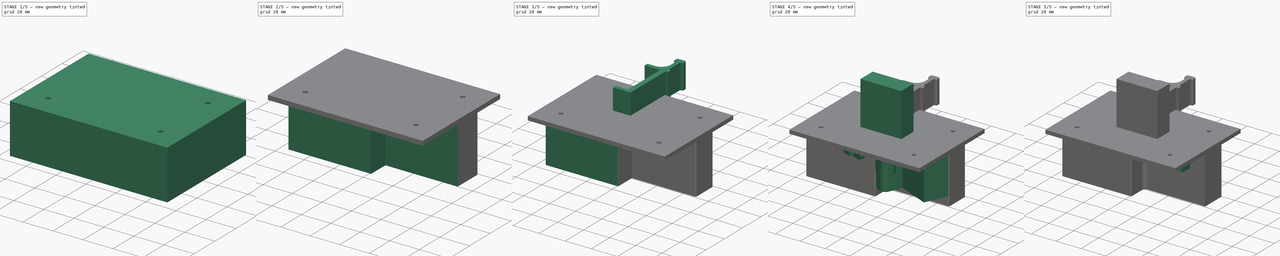
[diagram: build sequence overview — one tinted view per stage of 5, left to right]
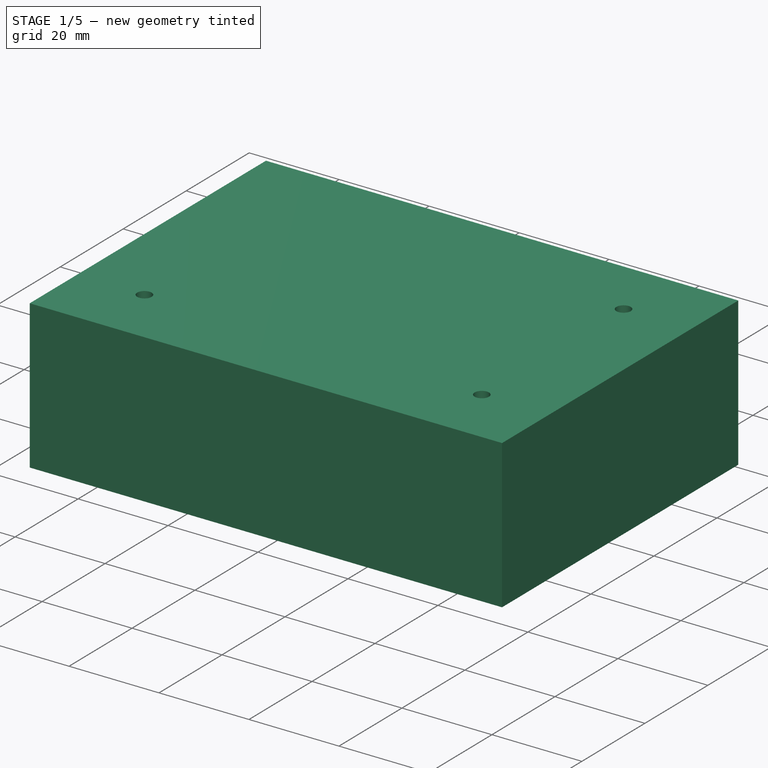
[diagram: stage 1 of 5 — iso view after this stage's code; geometry added in this stage tinted green]
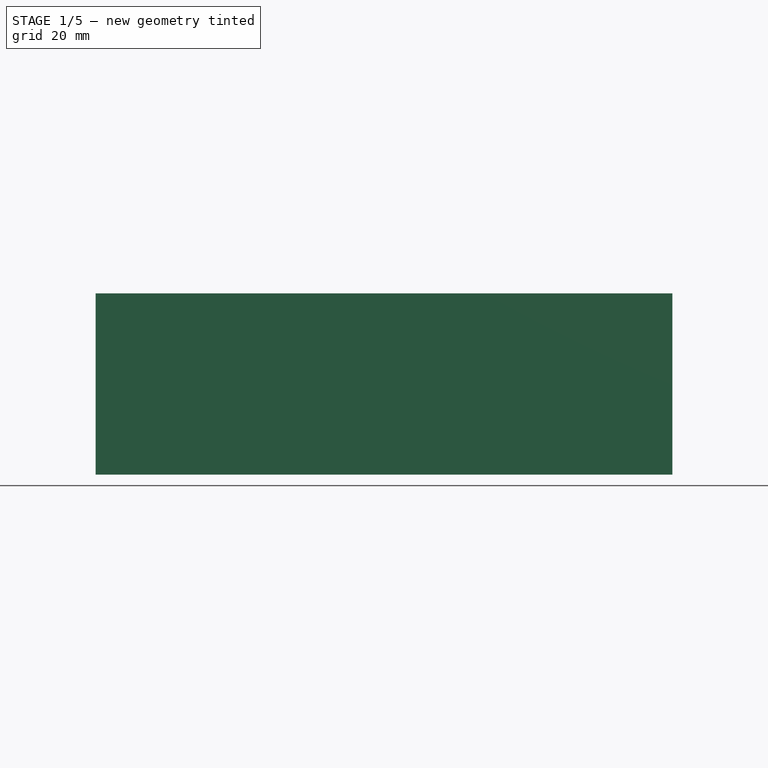
[diagram: stage 1 of 5 — front view after this stage's code; geometry added in this stage tinted green]
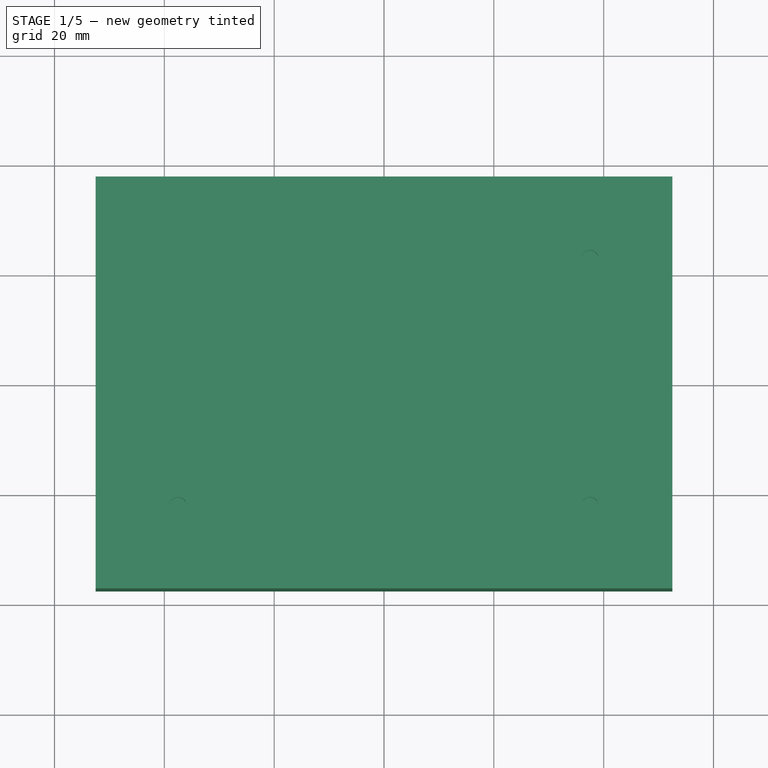
[diagram: stage 1 of 5 — top view after this stage's code; geometry added in this stage tinted green]
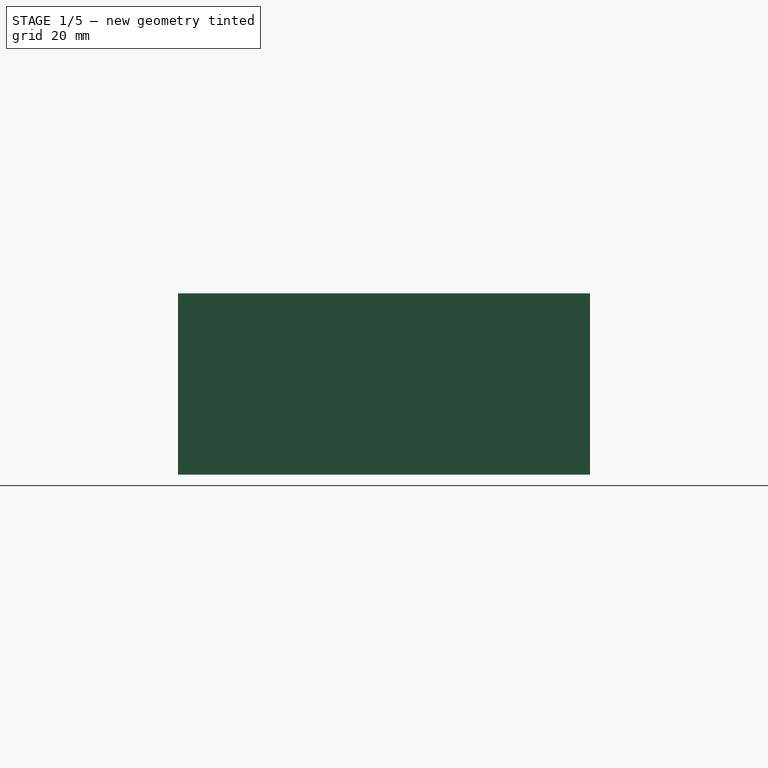
[diagram: stage 1 of 5 — right view after this stage's code; geometry added in this stage tinted green]
FCSTD DOCUMENT  (FreeCAD 1.0R38806 (Git))
Label: StdLinPad
License: All rights reserved
LicenseURL: https://en.wikipedia.org/wiki/All_rights_reserved
objects: PartDesign::Pad×85, Sketcher::SketchObject×61, PartDesign::Pocket×37, PartDesign::Fillet×36, PartDesign::Body×5
note: 601 computed .brp shape members not serialized (recipe doc carries the construction recipe); baked Part::Feature solids carry a one-line shape summary decoded from their .brp

FEATURE [PartDesign::Body] Body015  label="LinPad"
  AllowCompound = false
  Group = -> [Sketch070,Pad055,Sketch071,Pad056,Sketch072,Pad057,Sketch073,Pad058,Sketch074,Pad059,Sketch075,Pad060,Pad061,Sketch076,Pocket053,Pad062,Pad063,Sketch077,Pocket054,Pocket055,Pad064,Sketch078,Pad065,Pad066,Sketch079,Pad067,Pad068,Pad069,Fillet021,Pad070,Fillet022,Fillet023,Fillet024,Fillet025,Fillet026,Fillet027,Fillet028,Fillet029,Fillet030,Fillet031,Fillet032,Sketch080,Pad071,Pocket056,Sketch081,+37 more]
  Origin = -> Origin015
  Tip = -> Pad085
FEATURE [Sketcher::SketchObject] Sketch093
  ArcFitTolerance = 1e-06
  AttachmentSupport = -> [XY_Plane016]
  FullyConstrained = true
  MakeInternals = false
  MapMode = 5
  sketch-geometry (8):
    g0: LineSegment StartX=-52.5 StartY=-37.5 StartZ=0 EndX=52.5 EndY=-37.5 EndZ=0
    g1: LineSegment StartX=52.5 StartY=-37.5 StartZ=0 EndX=52.5 EndY=37.5 EndZ=0
    g2: LineSegment StartX=52.5 StartY=37.5 StartZ=0 EndX=-52.5 EndY=37.5 EndZ=0
    g3: LineSegment StartX=-52.5 StartY=37.5 StartZ=0 EndX=-52.5 EndY=-37.5 EndZ=0
    g4: GeomPoint [constr] X=0 Y=0 Z=0
    g5: Circle CenterX=37.5 CenterY=22.5 CenterZ=0 NormalX=0 NormalY=0 NormalZ=1 AngleXU=0 Radius=1.6
    g6: Circle CenterX=37.5 CenterY=-22.5 CenterZ=0 NormalX=0 NormalY=0 NormalZ=1 AngleXU=0 Radius=1.6
    g7: Circle CenterX=-37.5 CenterY=-22.5 CenterZ=0 NormalX=0 NormalY=0 NormalZ=1 AngleXU=0 Radius=1.6
  constraints (21):
    c: Coincident(g0,g1)
    c: Coincident(g1,g2)
    c: Coincident(g2,g3)
    c: Coincident(g3,g0)
    c: Horizontal(g0)
    c: Horizontal(g2)
    c: Vertical(g1)
    c: Vertical(g3)
    c: Symmetric(g2,g0,g4)
    c: Distance(g1,g3) = 105
    c: Distance(g0,g2) = 75
    c: Coincident(g4,g-1)
    c: Diameter(g5) = 3.2
    c: Diameter(g6) = 3.2
    c: Diameter(g7) = 3.2
    c: Distance(g5,g1) = 15
    c: Distance(g5,g2) = 15
    c: Distance(g6,g1) = 15
    c: Distance(g7,g3) = 15
    c: Distance(g7,g0) = 15
    c: Distance(g6,g0) = 15
FEATURE [PartDesign::Pad] Pad087
  Direction = (0,0,1)
  Length = 3
  Length2 = 10
  Profile = -> Sketch093
  ReferenceAxis = -> Sketch093 [N_Axis]
  Refine = true
  Suppressed = false
  Type = 0
FEATURE [Sketcher::SketchObject] Sketch094
  ArcFitTolerance = 1e-06
  AttachmentSupport = -> [Pad087]
  ExternalGeometry = -> [Pad087]
  FullyConstrained = true
  MakeInternals = false
  MapMode = 5
  Placement = pos=(0,0,0) rot=(1,0,0;3.14159rad)
  sketch-geometry (11):
    g0: LineSegment StartX=-49.5128 StartY=-23.104 StartZ=0 EndX=45.1865 EndY=17.406 EndZ=0
    g1: LineSegment StartX=-45.1865 StartY=-33.2175 StartZ=0 EndX=49.5128 EndY=7.29244 EndZ=0
    g2: LineSegment StartX=-49.5128 StartY=-23.104 StartZ=0 EndX=-45.1865 EndY=-33.2175 EndZ=0
    g3: LineSegment StartX=45.1865 StartY=17.406 StartZ=0 EndX=49.5128 EndY=7.29244 EndZ=0
    g4: LineSegment [constr] StartX=-49.5128 StartY=-23.104 StartZ=0 EndX=49.5128 EndY=7.29244 EndZ=0
    g5: LineSegment [constr] StartX=-45.1865 StartY=-33.2175 StartZ=0 EndX=45.1865 EndY=17.406 EndZ=0
    g6: GeomPoint [constr] X=0 Y=-7.90576 Z=0
    g7: LineSegment StartX=-52.5 StartY=-20.0312 StartZ=0 EndX=45.0273 EndY=21.6885 EndZ=0
    g8: LineSegment StartX=45.0273 StartY=21.6885 StartZ=0 EndX=52.5 EndY=4.21968 EndZ=0
    g9: LineSegment StartX=52.5 StartY=4.21968 StartZ=0 EndX=-45.0273 EndY=-37.5 EndZ=0
    g10: LineSegment StartX=-45.0273 StartY=-37.5 StartZ=0 EndX=-52.5 EndY=-20.0312 EndZ=0
  constraints (30):
    c: Parallel(g0,g1)
    c: Equal(g0,g1)
    c: Distance(g1,g0) = 11
    c: Coincident(g2,g0)
    c: Coincident(g2,g1)
    c: Coincident(g3,g0)
    c: Coincident(g3,g1)
    c: Angle(g1,g2) = 1.5708
    c: Distance(g0,g0) = 103
    c: Coincident(g4,g0)
    c: Coincident(g4,g1)
    c: Coincident(g5,g1)
    c: Coincident(g5,g0)
    c: PointOnObject(g6,g4)
    c: PointOnObject(g6,g5)
    c: PointOnObject(g6,g-2)
    c: Coincident(g8,g7)
    c: Coincident(g9,g8)
    c: Coincident(g10,g9)
    c: Coincident(g10,g7)
    c: Parallel(g9,g7)
    c: Parallel(g10,g8)
    c: Angle(g-1,g0) = 0.404218
    c: Parallel(g7,g0)
    c: Parallel(g8,g3)
    c: Distance(g7,g0) = 4
    c: Distance(g8,g8) = 19
    c: PointOnObject(g7,g-3)
    c: PointOnObject(g8,g-4)
    c: PointOnObject(g9,g-5)
FEATURE [PartDesign::Pad] Pad088
  BaseFeature = -> Pad087
  Direction = (0,0,-1)
  Length = 5
  Length2 = 10
  Profile = -> Sketch094
  ReferenceAxis = -> Sketch094 [N_Axis]
  Refine = true
  Suppressed = false
  Type = 0
FEATURE [Sketcher::SketchObject] Sketch095
  ArcFitTolerance = 1e-06
  AttachmentSupport = -> [Pad088]
  ExternalGeometry = -> [Pad088]
  FullyConstrained = false
  MakeInternals = false
  MapMode = 5
  Placement = pos=(0,0,0) rot=(1,0,0;3.14159rad)
  sketch-geometry (12):
    g0: LineSegment StartX=-31.9029 StartY=-11.2203 StartZ=0 EndX=-36.2292 EndY=-1.1068 EndZ=0
    g1: LineSegment StartX=-36.2292 StartY=-1.1068 StartZ=0 EndX=12.4995 EndY=19.7381 EndZ=0
    g2: LineSegment StartX=-31.9029 StartY=-11.2203 StartZ=0 EndX=16.8258 EndY=9.6246 EndZ=0
    g3: LineSegment StartX=16.8258 StartY=9.6246 StartZ=0 EndX=12.4995 EndY=19.7381 EndZ=0
    g4: LineSegment StartX=20.4992 StartY=11.196 StartZ=0 EndX=16.1729 EndY=21.3095 EndZ=0
    g5: ArcOfCircle CenterX=12.4995 CenterY=19.7381 CenterZ=0 NormalX=0 NormalY=0 NormalZ=-1 AngleXU=-0.404218 Radius=3.99533 StartAngle=1.5708 EndAngle=3.14159
    g6: LineSegment StartX=-37.8006 StartY=2.56655 StartZ=0 EndX=10.9281 EndY=23.4115 EndZ=0
    g7: ArcOfCircle CenterX=-36.2292 CenterY=-1.1068 CenterZ=0 NormalX=0 NormalY=0 NormalZ=-1 AngleXU=-1.97501 Radius=3.99533 StartAngle=1.5708 EndAngle=3.14159
    g8: LineSegment StartX=-35.5763 StartY=-12.7917 StartZ=0 EndX=-39.9026 EndY=-2.67816 EndZ=0
    g9: ArcOfCircle CenterX=-31.9029 CenterY=-11.2203 CenterZ=0 NormalX=0 NormalY=0 NormalZ=-1 AngleXU=2.73737 Radius=3.99533 StartAngle=1.5708 EndAngle=3.14159
    g10: LineSegment StartX=-30.3316 StartY=-14.8937 StartZ=0 EndX=18.3972 EndY=5.95125 EndZ=0
    g11: ArcOfCircle CenterX=16.8258 CenterY=9.6246 CenterZ=0 NormalX=0 NormalY=0 NormalZ=-1 AngleXU=1.16658 Radius=3.99533 StartAngle=1.5708 EndAngle=3.14159
  constraints (19):
    c: PointOnObject(g0,g-3)
    c: Distance(g0) = 11
    c: Distance(g1) = 53
    c: Coincident(g1,g0)
    c: Distance(g2) = 53
    c: Coincident(g2,g0)
    c: PointOnObject(g2,g-3)
    c: Angle(g2,g0) = 1.5708
    c: Coincident(g3,g2)
    c: Coincident(g3,g1)
    c: Parallel(g2,g1)
    c: Tangent(g4,g5) = -1.5708
    c: Tangent(g4,g11) = -1.5708
    c: Tangent(g5,g6) = 1.5708
    c: Tangent(g6,g7) = 1.5708
    c: Tangent(g7,g8) = 1.5708
    c: Tangent(g8,g9) = 1.5708
    c: Tangent(g9,g10) = -1.5708
    c: Tangent(g10,g11) = -1.5708
FEATURE [PartDesign::Pad] Pad089
  BaseFeature = -> Pad088
  Direction = (0,0,-1)
  Length = 4
  Length2 = 10
  Profile = -> Sketch095
  ReferenceAxis = -> Sketch095 [N_Axis]
  Refine = true
  Suppressed = false
  Type = 0
FEATURE [Sketcher::SketchObject] Sketch096
  ArcFitTolerance = 1e-06
  AttachmentSupport = -> [Pad089]
  ExternalGeometry = -> [Pad089]
  FullyConstrained = false
  MakeInternals = false
  MapMode = 5
  Placement = pos=(0,0,0) rot=(1,0,0;3.14159rad)
  sketch-geometry (10):
    g0: LineSegment StartX=-7.92738 StartY=-37.5 StartZ=0 EndX=33.0726 EndY=-37.5 EndZ=0
    g1: LineSegment StartX=33.0726 StartY=-37.5 StartZ=0 EndX=33.0726 EndY=-18.5 EndZ=0
    g2: LineSegment StartX=33.0726 StartY=-18.5 StartZ=0 EndX=-7.92738 EndY=-18.5 EndZ=0
    g3: LineSegment StartX=-7.92738 StartY=-18.5 StartZ=0 EndX=-7.92738 EndY=-37.5 EndZ=0
    g4: GeomPoint [constr] X=12.5726 Y=-28 Z=0
    g5: LineSegment StartX=-3.92738 StartY=-33.5 StartZ=0 EndX=29.0726 EndY=-33.5 EndZ=0
    g6: LineSegment StartX=29.0726 StartY=-33.5 StartZ=0 EndX=29.0726 EndY=-22.5 EndZ=0
    g7: LineSegment StartX=29.0726 StartY=-22.5 StartZ=0 EndX=-3.92738 EndY=-22.5 EndZ=0
    g8: LineSegment StartX=-3.92738 StartY=-22.5 StartZ=0 EndX=-3.92738 EndY=-33.5 EndZ=0
    g9: GeomPoint [constr] X=12.5726 Y=-28 Z=0
  constraints (24):
    c: Coincident(g0,g1)
    c: Coincident(g1,g2)
    c: Coincident(g2,g3)
    c: Coincident(g3,g0)
    c: Horizontal(g0)
    c: Horizontal(g2)
    c: Vertical(g1)
    c: Vertical(g3)
    c: Symmetric(g2,g0,g4)
    c: Distance(g1,g3) = 41
    c: Distance(g0,g2) = 19
    c: DistanceY(g4,g-1) = 28
    c: Coincident(g5,g6)
    c: Coincident(g6,g7)
    c: Coincident(g7,g8)
    c: Coincident(g8,g5)
    c: Horizontal(g5)
    c: Horizontal(g7)
    c: Vertical(g6)
    c: Vertical(g8)
    c: Symmetric(g7,g5,g9)
    c: Distance(g6,g8) = 33
    c: Distance(g5,g7) = 11
    c: Coincident(g9,g4)
FEATURE [PartDesign::Pad] Pad090
  BaseFeature = -> Pad089
  Direction = (0,0,-1)
  Length = 10
  Length2 = 10
  Profile = -> Sketch096
  ReferenceAxis = -> Sketch096 [N_Axis]
  Refine = true
  Suppressed = false
  Type = 0
FEATURE [Sketcher::SketchObject] Sketch097
  ArcFitTolerance = 1e-06
  AttachmentSupport = -> [Pad090]
  ExternalGeometry = -> [Pad090]
  FullyConstrained = false
  MakeInternals = false
  MapMode = 5
  Placement = pos=(0,0,0) rot=(1,0,0;3.14159rad)
  sketch-geometry (12):
    g0: LineSegment StartX=-42.971 StartY=0.354781 StartZ=0 EndX=-12.6305 EndY=13.3337 EndZ=0
    g1: LineSegment StartX=-42.971 StartY=0.354781 StartZ=0 EndX=-44.9375 EndY=4.95183 EndZ=0
    g2: LineSegment StartX=-44.9375 StartY=4.95183 StartZ=0 EndX=-14.597 EndY=17.9307 EndZ=0
    g3: LineSegment StartX=-14.597 StartY=17.9307 StartZ=0 EndX=-12.6305 EndY=13.3337 EndZ=0
    g4: LineSegment StartX=-10.936 StartY=19.5428 StartZ=0 EndX=-8.9362 EndY=14.868 EndZ=0
    g5: ArcOfCircle CenterX=-12.5749 CenterY=13.3114 CenterZ=0 NormalX=0 NormalY=0 NormalZ=1 AngleXU=-2.73737 Radius=3.95769 StartAngle=1.5708 EndAngle=3.14159
    g6: LineSegment StartX=-41.4367 StartY=-3.3395 StartZ=0 EndX=-11.0184 EndY=9.67269 EndZ=0
    g7: ArcOfCircle CenterX=-42.9933 CenterY=0.299239 CenterZ=0 NormalX=0 NormalY=0 NormalZ=1 AngleXU=1.97501 Radius=3.95769 StartAngle=1.5708 EndAngle=3.14159
    g8: LineSegment StartX=-46.632 StartY=-1.25732 StartZ=0 EndX=-48.6318 EndY=3.41753 EndZ=0
    g9: ArcOfCircle CenterX=-44.9931 CenterY=4.97409 CenterZ=0 NormalX=0 NormalY=0 NormalZ=1 AngleXU=0.404218 Radius=3.95769 StartAngle=1.5708 EndAngle=3.14159
    g10: LineSegment StartX=-46.5496 StartY=8.61283 StartZ=0 EndX=-16.1313 EndY=21.625 EndZ=0
    g11: ArcOfCircle CenterX=-14.5747 CenterY=17.9863 CenterZ=0 NormalX=0 NormalY=0 NormalZ=1 AngleXU=-1.16658 Radius=3.95769 StartAngle=1.5708 EndAngle=3.14159
  constraints (30):
    c: PointOnObject(g0,g-3)
    c: PointOnObject(g0,g-3)
    c: Coincident(g1,g0)
    c: Coincident(g2,g1)
    c: Coincident(g3,g2)
    c: Coincident(g3,g0)
    c: Angle(g0,g1) = 1.5708
    c: Parallel(g0,g2)
    c: Parallel(g1,g3)
    c: Distance(g2,g2) = 33
    c: Distance(g1,g1) = 5
    c: Tangent(g4,g5) = 1.5708
    c: Tangent(g4,g11) = 1.5708
    c: Tangent(g5,g6) = -1.5708
    c: Tangent(g6,g7) = -1.5708
    c: Tangent(g7,g8) = 1.5708
    c: Tangent(g8,g9) = 1.5708
    c: Tangent(g9,g10) = 1.5708
    c: Tangent(g10,g11) = 1.5708
    c: Parallel(g2,g10)
    c: Parallel(g0,g6)
    c: Parallel(g8,g1)
    c: Parallel(g3,g4)
    c: Distance(g1,g8) = 4
    c: Distance(g6,g0) = 4
    c: Distance(g10,g2) = 4
    c: Distance(g4,g3) = 4
    c: Equal(g9,g7)
    c: Equal(g7,g11)
    c: Equal(g9,g5)
FEATURE [PartDesign::Pad] Pad091
  BaseFeature = -> Pad090
  Direction = (0,0,-1)
  Length = 2
  Length2 = 10
  Profile = -> Sketch097
  ReferenceAxis = -> Sketch097 [N_Axis]
  Refine = true
  Suppressed = false
  Type = 0
FEATURE [Sketcher::SketchObject] Sketch098
  ArcFitTolerance = 1e-06
  AttachmentSupport = -> [Pad091]
  ExternalGeometry = -> [Pad091]
  FullyConstrained = false
  MakeInternals = false
  MapMode = 5
  Placement = pos=(0,0,0) rot=(1,0,0;3.14159rad)
  sketch-geometry (12):
    g0: LineSegment StartX=-8.95284 StartY=14.9069 StartZ=0 EndX=21.3877 EndY=27.8858 EndZ=0
    g1: LineSegment StartX=21.3877 StartY=27.8858 StartZ=0 EndX=20.2078 EndY=30.644 EndZ=0
    g2: LineSegment StartX=20.2078 StartY=30.644 StartZ=0 EndX=-10.1327 EndY=17.6651 EndZ=0
    g3: LineSegment StartX=-10.1327 StartY=17.6651 StartZ=0 EndX=-8.95284 EndY=14.9069 EndZ=0
    g4: LineSegment StartX=-13.8104 StartY=16.0919 StartZ=0 EndX=-12.6305 EndY=13.3337 EndZ=0
    g5: ArcOfCircle CenterX=-8.95284 CenterY=14.9069 CenterZ=0 NormalX=0 NormalY=0 NormalZ=-1 AngleXU=2.73737 Radius=4 StartAngle=1.5708 EndAngle=3.14159
    g6: LineSegment StartX=-7.37964 StartY=11.2292 StartZ=0 EndX=22.9609 EndY=24.2081 EndZ=0
    g7: ArcOfCircle CenterX=21.3877 CenterY=27.8858 CenterZ=0 NormalX=0 NormalY=0 NormalZ=-1 AngleXU=1.16658 Radius=4 StartAngle=1.5708 EndAngle=3.14159
    g8: LineSegment StartX=25.0653 StartY=29.459 StartZ=0 EndX=23.8854 EndY=32.2172 EndZ=0
    g9: ArcOfCircle CenterX=20.2078 CenterY=30.644 CenterZ=0 NormalX=0 NormalY=0 NormalZ=-1 AngleXU=-0.404218 Radius=4 StartAngle=1.5708 EndAngle=3.14159
    g10: LineSegment StartX=18.6346 StartY=34.3217 StartZ=0 EndX=-11.7059 EndY=21.3428 EndZ=0
    g11: ArcOfCircle CenterX=-10.1327 CenterY=17.6651 CenterZ=0 NormalX=0 NormalY=0 NormalZ=-1 AngleXU=-1.97501 Radius=4 StartAngle=1.5708 EndAngle=3.14159
  constraints (17):
    c: Coincident(g-3,g0)
    c: PointOnObject(g0,g-3)
    c: Perpendicular(g0,g1) = 1.5708
    c: Perpendicular(g1,g2) = 1.5708
    c: PointOnObject(g2,g-4)
    c: Coincident(g3,g2)
    c: Coincident(g3,g0)
    c: Distance(g0,g0) = 33
    c: Distance(g1,g1) = 3
    c: Tangent(g4,g5) = -1.5708
    c: Tangent(g4,g11) = -1.5708
    c: Tangent(g5,g6) = -1.5708
    c: Tangent(g6,g7) = -1.5708
    c: Tangent(g7,g8) = -1.5708
    c: Tangent(g8,g9) = -1.5708
    c: Tangent(g9,g10) = -1.5708
    c: Tangent(g10,g11) = -1.5708
FEATURE [PartDesign::Pad] Pad092
  BaseFeature = -> Pad091
  Direction = (0,0,-1)
  Length = 1
  Length2 = 10
  Profile = -> Sketch098
  ReferenceAxis = -> Sketch098 [N_Axis]
  Refine = true
  Suppressed = false
  Type = 0
FEATURE [PartDesign::Pad] Pad093
  BaseFeature = -> Pad092
  Direction = (0,0,-1)
  Length = 3
  Length2 = 10
  Profile = -> Pad092 [Face29]
  Refine = true
  Suppressed = false
  Type = 0
FEATURE [Sketcher::SketchObject] Sketch099
  ArcFitTolerance = 1e-06
  AttachmentSupport = -> [Pad093]
  ExternalGeometry = -> [Pad093]
  FullyConstrained = false
  MakeInternals = false
  MapMode = 5
  Placement = pos=(0,0,-13) rot=(1,0,0;3.14159rad)
  sketch-geometry (8):
    g0: LineSegment [constr] StartX=-7.92738 StartY=-18.5 StartZ=0 EndX=33.0726 EndY=-37.5 EndZ=0
    g1: LineSegment [constr] StartX=-7.92738 StartY=-37.5 StartZ=0 EndX=33.0726 EndY=-18.5 EndZ=0
    g2: GeomPoint [constr] X=12.5726 Y=-28 Z=0
    g3: LineSegment StartX=1.07262 StartY=-18.2597 StartZ=0 EndX=1.07262 EndY=-37.7403 EndZ=0
    g4: LineSegment StartX=1.07262 StartY=-37.7403 StartZ=0 EndX=24.0726 EndY=-37.7403 EndZ=0
    g5: LineSegment StartX=24.0726 StartY=-37.7403 StartZ=0 EndX=24.0726 EndY=-18.2597 EndZ=0
    g6: LineSegment StartX=24.0726 StartY=-18.2597 StartZ=0 EndX=1.07262 EndY=-18.2597 EndZ=0
    g7: GeomPoint [constr] X=12.5726 Y=-28 Z=0
  constraints (17):
    c: Coincident(g0,g-3)
    c: Coincident(g0,g-4)
    c: Coincident(g1,g-3)
    c: Coincident(g1,g-4)
    c: PointOnObject(g2,g0)
    c: PointOnObject(g2,g1)
    c: Coincident(g3,g4)
    c: Coincident(g4,g5)
    c: Coincident(g5,g6)
    c: Coincident(g6,g3)
    c: Vertical(g3)
    c: Vertical(g5)
    c: Horizontal(g4)
    c: Horizontal(g6)
    c: Symmetric(g5,g3,g7)
    c: Distance(g3,g5) = 23
    c: Coincident(g7,g2)
FEATURE [PartDesign::Pocket] Pocket068
  BaseFeature = -> Pad093
  Direction = (0,0,1)
  Length = 12
  Length2 = 5
  Profile = -> Sketch099
  ReferenceAxis = -> Sketch099 [N_Axis]
  Refine = true
  Suppressed = false
  Type = 0
FEATURE [PartDesign::Pad] Pad094
  BaseFeature = -> Pocket068
  Direction = (0,0,-1)
  Length = 10
  Length2 = 10
  Profile = -> Pocket068 [Face58]
  Refine = true
  Suppressed = false
  Type = 3
  UpToFace = -> Pocket068 [Face69]
FEATURE [PartDesign::Pad] Pad095
  BaseFeature = -> Pad094
  Direction = (0,0,-1)
  Length = 10
  Length2 = 10
  Profile = -> Pad094 [Face64]
  Refine = true
  Suppressed = false
  Type = 0
FEATURE [Sketcher::SketchObject] Sketch100
  ArcFitTolerance = 1e-06
  AttachmentSupport = -> [Pad095]
  ExternalGeometry = -> [Pad095]
  FullyConstrained = false
  MakeInternals = false
  MapMode = 5
  Placement = pos=(0,0,-12) rot=(1,0,0;3.14159rad)
  sketch-geometry (8):
    g0: LineSegment StartX=-36.7433 StartY=12.8077 StartZ=0 EndX=-22.9521 EndY=18.7072 EndZ=0
    g1: LineSegment StartX=-22.9521 StartY=18.7072 StartZ=0 EndX=-16.1016 EndY=2.69286 EndZ=0
    g2: LineSegment StartX=-16.1016 StartY=2.69286 StartZ=0 EndX=-29.8927 EndY=-3.20664 EndZ=0
    g3: LineSegment StartX=-29.8927 StartY=-3.20664 StartZ=0 EndX=-36.7433 EndY=12.8077 EndZ=0
    g4: LineSegment StartX=-7.5686 StartY=23.1126 StartZ=0 EndX=3.46432 EndY=27.8322 EndZ=0
    g5: LineSegment StartX=3.46432 StartY=27.8322 StartZ=0 EndX=9.0968 EndY=14.6653 EndZ=0
    g6: LineSegment StartX=9.0968 StartY=14.6653 StartZ=0 EndX=-1.93612 EndY=9.94566 EndZ=0
    g7: LineSegment StartX=-1.93612 StartY=9.94566 StartZ=0 EndX=-7.5686 EndY=23.1126 EndZ=0
  constraints (21):
    c: PointOnObject(g0,g-4)
    c: PointOnObject(g0,g-4)
    c: Coincident(g1,g0)
    c: Coincident(g2,g1)
    c: Coincident(g3,g2)
    c: Coincident(g3,g0)
    c: Parallel(g0,g2)
    c: Parallel(g3,g1)
    c: Angle(g3,g0) = 1.5708
    c: Distance(g0,g0) = 15
    c: Distance(g3,g-5) = 5
    c: PointOnObject(g4,g-3)
    c: Symmetric(g-3,g-3,g4)
    c: Coincident(g5,g4)
    c: Coincident(g6,g5)
    c: Coincident(g7,g6)
    c: Coincident(g7,g4)
    c: Angle(g4,g5) = 1.5708
    c: Parallel(g7,g5)
    c: Parallel(g4,g6)
    c: Distance(g4,g4) = 12
FEATURE [PartDesign::Pocket] Pocket069
  BaseFeature = -> Pad095
  Direction = (0,0,1)
  Length = 10
  Length2 = 5
  Profile = -> Sketch100
  ReferenceAxis = -> Sketch100 [N_Axis]
  Refine = true
  Suppressed = false
  Type = 0
FEATURE [PartDesign::Pocket] Pocket070
  BaseFeature = -> Pocket069
  Direction = (0.91941,-0.3933,0)
  Length = 10
  Length2 = 5
  Profile = -> Pocket069 [Face40]
  Refine = true
  Suppressed = false
  Type = 0
FEATURE [PartDesign::Pad] Pad096
  BaseFeature = -> Pocket070
  Direction = (0.91941,-0.3933,0)
  Length = 3
  Length2 = 10
  Profile = -> Pocket070 [Face23]
  Refine = true
  Suppressed = false
  Type = 0
FEATURE [Sketcher::SketchObject] Sketch101
  ArcFitTolerance = 1e-06
  AttachmentSupport = -> [Pad096]
  ExternalGeometry = -> [Pad096]
  FullyConstrained = false
  MakeInternals = false
  MapMode = 5
  Placement = pos=(0,0,-5) rot=(1,0,0;3.14159rad)
  sketch-geometry (16):
    g0: LineSegment StartX=-52.5 StartY=-20.0312 StartZ=0 EndX=-45.0273 EndY=-37.5 EndZ=0
    g1: LineSegment StartX=-45.0273 StartY=-37.5 StartZ=0 EndX=-17.445 EndY=-25.701 EndZ=0
    g2: LineSegment StartX=-17.445 StartY=-25.701 StartZ=0 EndX=-19.0182 EndY=-22.0234 EndZ=0
    g3: LineSegment StartX=-19.0182 StartY=-22.0234 StartZ=0 EndX=-45.1865 EndY=-33.2175 EndZ=0
    g4: LineSegment StartX=-45.1865 StartY=-33.2175 StartZ=0 EndX=-49.5128 EndY=-23.104 EndZ=0
    g5: LineSegment StartX=-49.5128 StartY=-23.104 StartZ=0 EndX=-23.3445 EndY=-11.9098 EndZ=0
    g6: LineSegment StartX=-23.3445 StartY=-11.9098 StartZ=0 EndX=-24.9177 EndY=-8.2322 EndZ=0
    g7: LineSegment StartX=-24.9177 StartY=-8.2322 StartZ=0 EndX=-52.5 EndY=-20.0312 EndZ=0
    g8: LineSegment StartX=45.0273 StartY=21.6885 StartZ=0 EndX=52.5 EndY=4.21968 EndZ=0
    g9: LineSegment StartX=15.7236 StartY=-11.5123 StartZ=0 EndX=14.1504 EndY=-7.83468 EndZ=0
    g10: LineSegment StartX=49.5128 StartY=7.29244 StartZ=0 EndX=45.1865 EndY=17.406 EndZ=0
    g11: LineSegment StartX=45.1865 StartY=17.406 StartZ=0 EndX=9.82409 EndY=2.27883 EndZ=0
    g12: LineSegment StartX=9.82409 StartY=2.27883 StartZ=0 EndX=8.25089 EndY=5.95647 EndZ=0
    g13: LineSegment StartX=8.25089 StartY=5.95647 StartZ=0 EndX=45.0273 EndY=21.6885 EndZ=0
    g14: LineSegment StartX=14.1504 StartY=-7.83468 StartZ=0 EndX=49.5128 EndY=7.29244 EndZ=0
    g15: LineSegment StartX=52.5 StartY=4.21968 StartZ=0 EndX=15.7236 EndY=-11.5123 EndZ=0
  constraints (40):
    c: Coincident(g0,g-3)
    c: Coincident(g0,g-8)
    c: Coincident(g1,g0)
    c: PointOnObject(g1,g-8)
    c: Coincident(g2,g1)
    c: PointOnObject(g2,g-6)
    c: Coincident(g3,g2)
    c: Coincident(g3,g-6)
    c: Coincident(g4,g3)
    c: Coincident(g4,g-4)
    c: Coincident(g5,g4)
    c: PointOnObject(g5,g-4)
    c: Coincident(g6,g5)
    c: PointOnObject(g6,g-3)
    c: Coincident(g7,g6)
    c: Coincident(g7,g0)
    c: Parallel(g0,g6)
    c: Parallel(g0,g2)
    c: Distance(g7,g7) = 30
    c: Distance(g1,g1) = 30
    c: Coincident(g8,g-7)
    c: Coincident(g8,g-7)
    c: PointOnObject(g9,g-6)
    c: Coincident(g10,g-4)
    c: Coincident(g11,g10)
    c: PointOnObject(g11,g-4)
    c: Coincident(g12,g11)
    c: PointOnObject(g12,g-3)
    c: Coincident(g13,g12)
    c: Coincident(g13,g8)
    c: Parallel(g12,g8)
    c: Coincident(g14,g9)
    c: Coincident(g14,g10)
    c: Distance(g13,g13) = 40
    c: Parallel(g9,g8)
    c: PointOnObject(g9,g-5)
    c: Coincident(g15,g8)
    c: Coincident(g15,g9)
    c: Distance(g15,g15) = 40
    c: Parallel(g10,g8)
FEATURE [PartDesign::Pad] Pad097
  BaseFeature = -> Pad096
  Direction = (0,0,-1)
  Length = 25
  Length2 = 10
  Profile = -> Sketch101
  ReferenceAxis = -> Sketch101 [N_Axis]
  Refine = true
  Suppressed = false
  Type = 0
FEATURE [PartDesign::Pad] Pad098
  BaseFeature = -> Pad097
  Direction = (0,0,-1)
  Length = 10
  Length2 = 10
  Profile = -> Pad097 [Face21,Face52]
  Refine = true
  Suppressed = false
  Type = 3
  UpToFace = -> Pad097 [Face77]
FEATURE [Sketcher::SketchObject] Sketch102
  ArcFitTolerance = 1e-06
  AttachmentSupport = -> [Pad098]
  ExternalGeometry = -> [Pad098]
  FullyConstrained = true
  MakeInternals = false
  MapMode = 5
  Placement = pos=(0,0,-4) rot=(1,0,0;3.14159rad)
  sketch-geometry (4):
    g0: LineSegment StartX=-12.6305 StartY=13.3337 StartZ=0 EndX=-8.95284 EndY=14.9069 EndZ=0
    g1: LineSegment StartX=-8.95284 StartY=14.9069 StartZ=0 EndX=-7.38148 EndY=11.2335 EndZ=0
    g2: LineSegment StartX=-12.6305 StartY=13.3337 StartZ=0 EndX=-11.0591 EndY=9.66033 EndZ=0
    g3: LineSegment StartX=-11.0591 StartY=9.66033 StartZ=0 EndX=-7.38148 EndY=11.2335 EndZ=0
  constraints (10):
    c: Coincident(g0,g-3)
    c: Coincident(g0,g-5)
    c: Coincident(g1,g0)
    c: PointOnObject(g1,g-4)
    c: Parallel(g1,g-6)
    c: Coincident(g2,g0)
    c: PointOnObject(g2,g-4)
    c: Parallel(g2,g1)
    c: Coincident(g3,g1)
    c: Coincident(g3,g2)
FEATURE [PartDesign::Pad] Pad099
  BaseFeature = -> Pad098
  Direction = (0,0,-1)
  Length = 10
  Length2 = 10
  Profile = -> Sketch102
  ReferenceAxis = -> Sketch102 [N_Axis]
  Refine = true
  Suppressed = false
  Type = 0
FEATURE [PartDesign::Pad] Pad100
  BaseFeature = -> Pad099
  Direction = (0,0,-1)
  Length = 8
  Length2 = 10
  Profile = -> Pad099 [Face9]
  Refine = true
  Suppressed = false
  Type = 0
FEATURE [PartDesign::Pad] Pad101
  BaseFeature = -> Pad100
  Direction = (0,0,-1)
  Length = 8
  Length2 = 10
  Profile = -> Pad100 [Face5]
  Refine = true
  Suppressed = false
  Type = 0
FEATURE [PartDesign::Fillet] Fillet033
  Base = -> Pad101 [Edge88,Edge45]
  BaseFeature = -> Pad101
  Radius = 4
  Refine = true
  SupportTransform = false
  Suppressed = false
  UseAllEdges = false
FEATURE [PartDesign::Pad] Pad102
  BaseFeature = -> Fillet033
  Direction = (0,0,-1)
  Length = 5
  Length2 = 10
  Profile = -> Fillet033 [Face16]
  Refine = true
  Suppressed = false
  Type = 0
FEATURE [PartDesign::Fillet] Fillet034
  Base = -> Pad102 [Edge233,Edge116,Edge105,Edge122]
  BaseFeature = -> Pad102
  Radius = 3
  Refine = true
  SupportTransform = false
  Suppressed = false
  UseAllEdges = false
FEATURE [PartDesign::Fillet] Fillet035
  Base = -> Fillet034 [Edge235,Edge99]
  BaseFeature = -> Fillet034
  Radius = 3
  Refine = true
  SupportTransform = false
  Suppressed = false
  UseAllEdges = false
FEATURE [PartDesign::Fillet] Fillet036
  Base = -> Fillet035 [Edge159,Edge28]
  BaseFeature = -> Fillet035
  Radius = 3
  Refine = true
  SupportTransform = false
  Suppressed = false
  UseAllEdges = false
FEATURE [PartDesign::Fillet] Fillet037
  Base = -> Fillet036 [Edge83,Edge10]
  BaseFeature = -> Fillet036
  Radius = 3
  Refine = true
  SupportTransform = false
  Suppressed = false
  UseAllEdges = false
FEATURE [PartDesign::Fillet] Fillet038
  Base = -> Fillet037 [Edge221,Edge280,Edge284,Edge217]
  BaseFeature = -> Fillet037
  Radius = 3
  Refine = true
  SupportTransform = false
  Suppressed = false
  UseAllEdges = false
FEATURE [PartDesign::Fillet] Fillet039
  Base = -> Fillet038 [Edge117,Edge24,Edge116,Edge30]
  BaseFeature = -> Fillet038
  Radius = 6
  Refine = true
  SupportTransform = false
  Suppressed = false
  UseAllEdges = false
FEATURE [PartDesign::Fillet] Fillet040
  Base = -> Fillet039 [Edge55,Edge269,Edge57,Edge270]
  BaseFeature = -> Fillet039
  Radius = 6
  Refine = true
  SupportTransform = false
  Suppressed = false
  UseAllEdges = false
FEATURE [PartDesign::Fillet] Fillet041
  Base = -> Fillet040 [Edge364,Edge363]
  BaseFeature = -> Fillet040
  Radius = 6
  Refine = true
  SupportTransform = false
  Suppressed = false
  UseAllEdges = false
FEATURE [PartDesign::Fillet] Fillet042
  Base = -> Fillet041 [Edge146,Edge147]
  BaseFeature = -> Fillet041
  Radius = 6
  Refine = true
  SupportTransform = false
  Suppressed = false
  UseAllEdges = false
FEATURE [PartDesign::Fillet] Fillet043
  Base = -> Fillet042 [Edge235,Edge228]
  BaseFeature = -> Fillet042
  Radius = 5
  Refine = true
  SupportTransform = false
  Suppressed = false
  UseAllEdges = false
FEATURE [PartDesign::Fillet] Fillet044
  Base = -> Fillet043 [Edge204,Edge193]
  BaseFeature = -> Fillet043
  Radius = 5
  Refine = true
  SupportTransform = false
  Suppressed = false
  UseAllEdges = false
FEATURE [Sketcher::SketchObject] Sketch103
  ArcFitTolerance = 1e-06
  AttachmentSupport = -> [Fillet044]
  ExternalGeometry = -> [Fillet044]
  FullyConstrained = true
  MakeInternals = false
  MapMode = 5
  Placement = pos=(0,0,0) rot=(1,0,0;3.14159rad)
  sketch-geometry (4):
    g0: LineSegment StartX=-52.5 StartY=37.5 StartZ=0 EndX=-52.5 EndY=-37.5 EndZ=0
    g1: LineSegment StartX=-52.5 StartY=-37.5 StartZ=0 EndX=52.5 EndY=-37.5 EndZ=0
    g2: LineSegment StartX=52.5 StartY=-37.5 StartZ=0 EndX=52.5 EndY=37.5 EndZ=0
    g3: LineSegment StartX=52.5 StartY=37.5 StartZ=0 EndX=-52.5 EndY=37.5 EndZ=0
  constraints (11):
    c: Coincident(g0,g1)
    c: Coincident(g1,g2)
    c: Coincident(g2,g3)
    c: Coincident(g3,g0)
    c: Vertical(g0)
    c: Vertical(g2)
    c: Horizontal(g1)
    c: Horizontal(g3)
    c: Distance(g0,g2) = 105
    c: Distance(g1,g3) = 75
    c: Coincident(g0,g-4)
FEATURE [PartDesign::Pad] Pad103
  BaseFeature = -> Fillet044
  Direction = (0,0,-1)
  Length = 30
  Length2 = 10
  Profile = -> Sketch103
  ReferenceAxis = -> Sketch103 [N_Axis]
  Refine = true
  Suppressed = false
  Type = 0
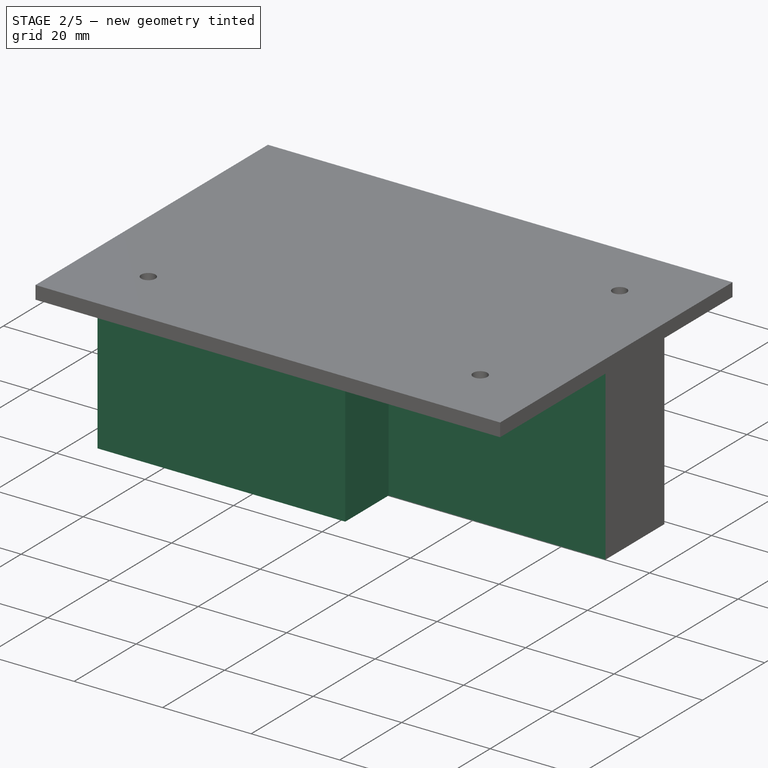
[diagram: stage 2 of 5 — iso view after this stage's code; geometry added in this stage tinted green]
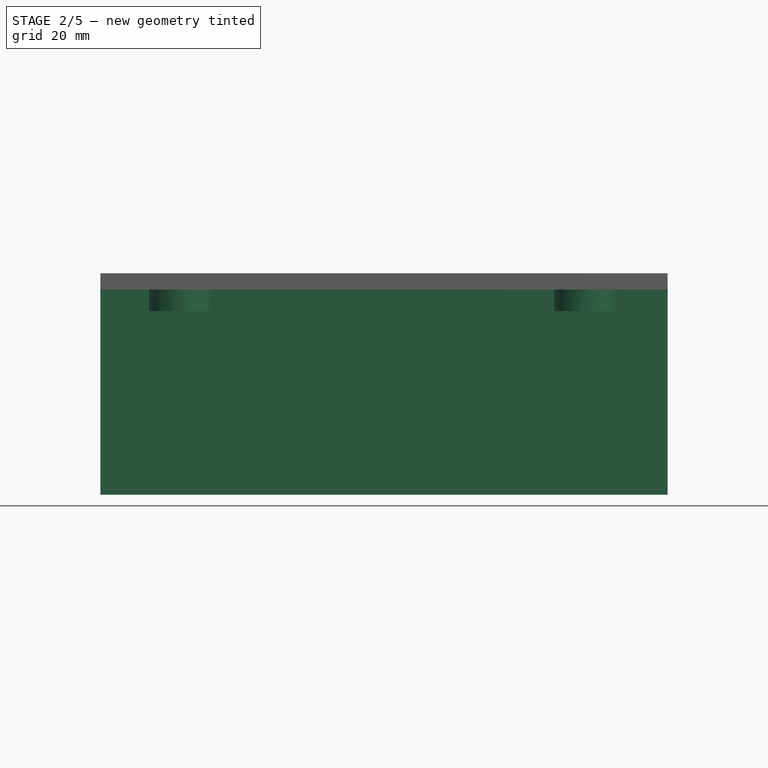
[diagram: stage 2 of 5 — front view after this stage's code; geometry added in this stage tinted green]
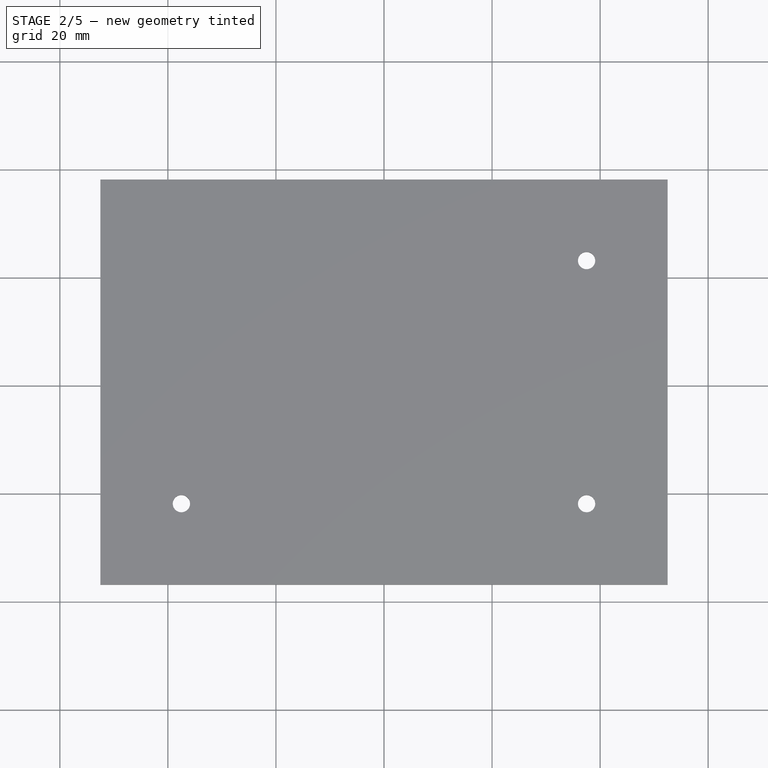
[diagram: stage 2 of 5 — top view after this stage's code; geometry added in this stage tinted green]
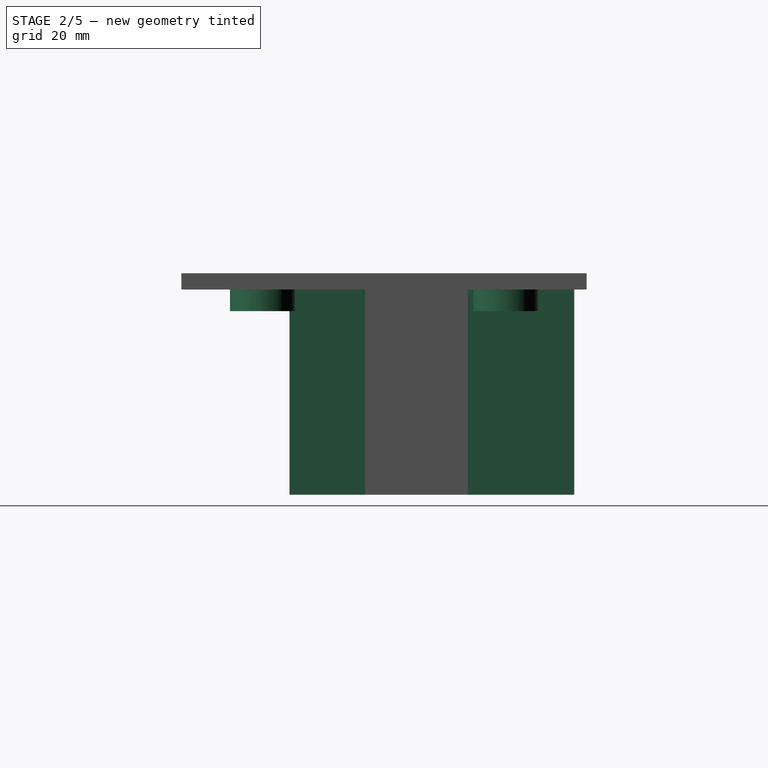
[diagram: stage 2 of 5 — right view after this stage's code; geometry added in this stage tinted green]
FEATURE [PartDesign::Pocket] Pocket071
  BaseFeature = -> Pad103
  Direction = (0,0,1)
  Length = 30
  Length2 = 5
  Profile = -> Pad103 [Face1]
  Refine = true
  Suppressed = false
  Type = 0
FEATURE [Sketcher::SketchObject] Sketch104
  ArcFitTolerance = 1e-06
  AttachmentSupport = -> [Pocket071]
  ExternalGeometry = -> [Pocket071]
  FullyConstrained = true
  MakeInternals = false
  MapMode = 5
  Placement = pos=(0,0,0) rot=(1,0,0;3.14159rad)
  sketch-geometry (10):
    g0: LineSegment StartX=-52.5 StartY=3.5 StartZ=0 EndX=-52.5 EndY=-15.5 EndZ=0
    g1: LineSegment StartX=-52.5 StartY=-15.5 StartZ=0 EndX=52.5 EndY=-15.5 EndZ=0
    g2: LineSegment StartX=52.5 StartY=-15.5 StartZ=0 EndX=52.5 EndY=3.5 EndZ=0
    g3: LineSegment StartX=52.5 StartY=3.5 StartZ=0 EndX=-52.5 EndY=3.5 EndZ=0
    g4: GeomPoint [constr] X=0 Y=-6 Z=0
    g5: LineSegment StartX=-51 StartY=-10.5 StartZ=0 EndX=51 EndY=-10.5 EndZ=0
    g6: LineSegment StartX=51 StartY=-10.5 StartZ=0 EndX=51 EndY=0.5 EndZ=0
    g7: LineSegment StartX=51 StartY=0.5 StartZ=0 EndX=-51 EndY=0.5 EndZ=0
    g8: LineSegment StartX=-51 StartY=0.5 StartZ=0 EndX=-51 EndY=-10.5 EndZ=0
    g9: GeomPoint [constr] X=0 Y=-5 Z=0
  constraints (26):
    c: Coincident(g0,g1)
    c: Coincident(g1,g2)
    c: Coincident(g2,g3)
    c: Coincident(g3,g0)
    c: Vertical(g0)
    c: Vertical(g2)
    c: Horizontal(g1)
    c: Horizontal(g3)
    c: Symmetric(g2,g0,g4)
    c: Distance(g0,g2) = 105
    c: PointOnObject(g4,g-2)
    c: DistanceY(g0,g0) = 19
    c: Coincident(g5,g6)
    c: Coincident(g6,g7)
    c: Coincident(g7,g8)
    c: Coincident(g8,g5)
    c: Horizontal(g5)
    c: Horizontal(g7)
    c: Vertical(g6)
    c: Vertical(g8)
    c: Symmetric(g7,g5,g9)
    c: Distance(g6,g8) = 102
    c: Distance(g5,g7) = 11
    c: PointOnObject(g9,g-2)
    c: DistanceY(g4,g9) = 1
    c: Distance(g1,g-3) = 22
FEATURE [PartDesign::Pad] Pad104
  BaseFeature = -> Pocket071
  Direction = (0,0,-1)
  Length = 10
  Length2 = 10
  Profile = -> Sketch104
  ReferenceAxis = -> Sketch104 [N_Axis]
  Refine = true
  Suppressed = false
  Type = 0
FEATURE [Sketcher::SketchObject] Sketch105
  ArcFitTolerance = 1e-06
  AttachmentSupport = -> [Pad104]
  ExternalGeometry = -> [Pad104]
  FullyConstrained = true
  MakeInternals = false
  MapMode = 5
  Placement = pos=(0,0,-10) rot=(1,0,0;3.14159rad)
  sketch-geometry (5):
    g0: LineSegment StartX=-10 StartY=-13.5 StartZ=0 EndX=10 EndY=-13.5 EndZ=0
    g1: LineSegment StartX=10 StartY=-13.5 StartZ=0 EndX=10 EndY=-7.5 EndZ=0
    g2: LineSegment StartX=10 StartY=-7.5 StartZ=0 EndX=-10 EndY=-7.5 EndZ=0
    g3: LineSegment StartX=-10 StartY=-7.5 StartZ=0 EndX=-10 EndY=-13.5 EndZ=0
    g4: GeomPoint [constr] X=0 Y=-10.5 Z=0
  constraints (13):
    c: Coincident(g0,g1)
    c: Coincident(g1,g2)
    c: Coincident(g2,g3)
    c: Coincident(g3,g0)
    c: Horizontal(g0)
    c: Horizontal(g2)
    c: Vertical(g1)
    c: Vertical(g3)
    c: Symmetric(g2,g0,g4)
    c: Distance(g1,g3) = 20
    c: Distance(g0,g2) = 6
    c: PointOnObject(g4,g-3)
    c: PointOnObject(g4,g-2)
FEATURE [PartDesign::Pocket] Pocket072
  BaseFeature = -> Pad104
  Direction = (0,0,1)
  Length = 9
  Length2 = 5
  Profile = -> Sketch105
  ReferenceAxis = -> Sketch105 [N_Axis]
  Refine = true
  Suppressed = false
  Type = 0
FEATURE [PartDesign::Pad] Pad105
  BaseFeature = -> Pocket072
  Direction = (0,0,-1)
  Length = 3
  Length2 = 10
  Profile = -> Pocket072 [Face21]
  Refine = true
  Suppressed = false
  Type = 0
FEATURE [Sketcher::SketchObject] Sketch106
  ArcFitTolerance = 1e-06
  AttachmentSupport = -> [Pad105]
  ExternalGeometry = -> [Pad105]
  FullyConstrained = true
  MakeInternals = false
  MapMode = 5
  Placement = pos=(0,0,-3) rot=(1,0,0;3.14159rad)
  sketch-geometry (4):
    g0: LineSegment StartX=-10 StartY=-10.5 StartZ=0 EndX=10 EndY=-10.5 EndZ=0
    g1: LineSegment StartX=10 StartY=-10.5 StartZ=0 EndX=10 EndY=0.5 EndZ=0
    g2: LineSegment StartX=10 StartY=0.5 StartZ=0 EndX=-10 EndY=0.5 EndZ=0
    g3: LineSegment StartX=-10 StartY=0.5 StartZ=0 EndX=-10 EndY=-10.5 EndZ=0
  constraints (11):
    c: Coincident(g0,g1)
    c: Coincident(g1,g2)
    c: Coincident(g2,g3)
    c: Coincident(g3,g0)
    c: Horizontal(g0)
    c: Horizontal(g2)
    c: Vertical(g1)
    c: Vertical(g3)
    c: Distance(g1,g3) = 20
    c: Distance(g0,g2) = 11
    c: Coincident(g0,g-3)
FEATURE [PartDesign::Pocket] Pocket073
  BaseFeature = -> Pad105
  Direction = (0,0,1)
  Length = 2
  Length2 = 5
  Profile = -> Sketch106
  ReferenceAxis = -> Sketch106 [N_Axis]
  Refine = true
  Suppressed = false
  Type = 0
FEATURE [PartDesign::Pocket] Pocket074
  BaseFeature = -> Pocket073
  Direction = (0,0,1)
  Length = 1
  Length2 = 5
  Profile = -> Pocket073 [Face24]
  Refine = true
  Suppressed = false
  Type = 0
FEATURE [Sketcher::SketchObject] Sketch107
  ArcFitTolerance = 1e-06
  AttachmentSupport = -> [Pocket074]
  ExternalGeometry = -> [Pocket074]
  FullyConstrained = false
  MakeInternals = false
  MapMode = 5
  Placement = pos=(0,0,0) rot=(1,0,0;3.14159rad)
  sketch-geometry (12):
    g0: LineSegment StartX=-52.5 StartY=3.5 StartZ=0 EndX=3.5 EndY=3.5 EndZ=0
    g1: LineSegment StartX=3.5 StartY=3.5 StartZ=0 EndX=3.5 EndY=17.5 EndZ=0
    g2: LineSegment StartX=3.5 StartY=17.5 StartZ=0 EndX=-52.5 EndY=17.5 EndZ=0
    g3: LineSegment StartX=-52.5 StartY=17.5 StartZ=0 EndX=-52.5 EndY=3.5 EndZ=0
    g4: LineSegment [constr] StartX=-52.5 StartY=17.5 StartZ=0 EndX=3.5 EndY=3.5 EndZ=0
    g5: LineSegment [constr] StartX=-52.5 StartY=3.5 StartZ=0 EndX=3.5 EndY=17.5 EndZ=0
    g6: GeomPoint [constr] X=-24.5 Y=10.5 Z=0
    g7: LineSegment StartX=-50.5735 StartY=4.5 StartZ=0 EndX=1.42647 EndY=4.5 EndZ=0
    g8: LineSegment StartX=1.42647 StartY=4.5 StartZ=0 EndX=1.42647 EndY=15.5 EndZ=0
    g9: LineSegment StartX=1.42647 StartY=15.5 StartZ=0 EndX=-50.5735 EndY=15.5 EndZ=0
    g10: LineSegment StartX=-50.5735 StartY=15.5 StartZ=0 EndX=-50.5735 EndY=4.5 EndZ=0
    g11: GeomPoint [constr] X=-24.5735 Y=10 Z=0
  constraints (29):
    c: Coincident(g0,g1)
    c: Coincident(g1,g2)
    c: Coincident(g2,g3)
    c: Coincident(g3,g0)
    c: Horizontal(g0)
    c: Horizontal(g2)
    c: Vertical(g1)
    c: Vertical(g3)
    c: Distance(g1,g3) = 56
    c: Distance(g0,g2) = 14
    c: Coincident(g0,g-6)
    c: Coincident(g4,g2)
    c: Coincident(g4,g0)
    c: Coincident(g5,g0)
    c: Coincident(g5,g1)
    c: PointOnObject(g6,g4)
    c: PointOnObject(g6,g5)
    c: Coincident(g7,g8)
    c: Coincident(g8,g9)
    c: Coincident(g9,g10)
    c: Coincident(g10,g7)
    c: Horizontal(g7)
    c: Horizontal(g9)
    c: Vertical(g8)
    c: Vertical(g10)
    c: Symmetric(g9,g7,g11)
    c: Distance(g8,g10) = 52
    c: Distance(g7,g9) = 11
    c: Distance(g2,g9) = 2
FEATURE [PartDesign::Pad] Pad106
  BaseFeature = -> Pocket074
  Direction = (0,0,-1)
  Length = 10
  Length2 = 10
  Profile = -> Sketch107
  ReferenceAxis = -> Sketch107 [N_Axis]
  Refine = true
  Suppressed = false
  Type = 0
FEATURE [PartDesign::Pad] Pad107
  BaseFeature = -> Pad106
  Direction = (0,0,-1)
  Length = 10
  Length2 = 10
  Profile = -> Pad106 [Face31]
  Refine = true
  Suppressed = false
  Type = 3
  UpToFace = -> Pad106 [Face25]
FEATURE [Sketcher::SketchObject] Sketch108
  ArcFitTolerance = 1e-06
  AttachmentSupport = -> [Pad107]
  ExternalGeometry = -> [Pad107]
  FullyConstrained = true
  MakeInternals = false
  MapMode = 5
  Placement = pos=(0,0,-10) rot=(1,0,0;3.14159rad)
  sketch-geometry (5):
    g0: LineSegment StartX=-34.5735 StartY=1.5 StartZ=0 EndX=-14.5735 EndY=1.5 EndZ=0
    g1: LineSegment StartX=-14.5735 StartY=1.5 StartZ=0 EndX=-14.5735 EndY=7.5 EndZ=0
    g2: LineSegment StartX=-14.5735 StartY=7.5 StartZ=0 EndX=-34.5735 EndY=7.5 EndZ=0
    g3: LineSegment StartX=-34.5735 StartY=7.5 StartZ=0 EndX=-34.5735 EndY=1.5 EndZ=0
    g4: GeomPoint [constr] X=-24.5735 Y=4.5 Z=0
  constraints (12):
    c: Coincident(g0,g1)
    c: Coincident(g1,g2)
    c: Coincident(g2,g3)
    c: Coincident(g3,g0)
    c: Horizontal(g0)
    c: Horizontal(g2)
    c: Vertical(g1)
    c: Vertical(g3)
    c: Symmetric(g2,g0,g4)
    c: Distance(g1,g3) = 20
    c: Distance(g0,g2) = 6
    c: Symmetric(g-4,g-4,g4)
FEATURE [PartDesign::Pocket] Pocket075
  BaseFeature = -> Pad107
  Direction = (0,0,1)
  Length = 0
  Length2 = 5
  Profile = -> Sketch108
  ReferenceAxis = -> Sketch108 [N_Axis]
  Refine = true
  Suppressed = false
  Type = 3
  UpToFace = -> Pad107 [Face30]
FEATURE [Sketcher::SketchObject] Sketch109
  ArcFitTolerance = 1e-06
  AttachmentSupport = -> [Pocket075]
  ExternalGeometry = -> [Pocket075]
  FullyConstrained = true
  MakeInternals = false
  MapMode = 5
  Placement = pos=(0,0,0) rot=(1,0,0;3.14159rad)
  sketch-geometry (4):
    g0: LineSegment StartX=-52.5 StartY=-15.5 StartZ=0 EndX=-52.5 EndY=-32.5 EndZ=0
    g1: LineSegment StartX=-52.5 StartY=-32.5 StartZ=0 EndX=-15.5 EndY=-32.5 EndZ=0
    g2: LineSegment StartX=-15.5 StartY=-32.5 StartZ=0 EndX=-15.5 EndY=-15.5 EndZ=0
    g3: LineSegment StartX=-15.5 StartY=-15.5 StartZ=0 EndX=-52.5 EndY=-15.5 EndZ=0
  constraints (11):
    c: Coincident(g0,g1)
    c: Coincident(g1,g2)
    c: Coincident(g2,g3)
    c: Coincident(g3,g0)
    c: Vertical(g0)
    c: Vertical(g2)
    c: Horizontal(g1)
    c: Horizontal(g3)
    c: Distance(g0,g2) = 37
    c: Distance(g1,g3) = 17
    c: Coincident(g0,g-4)
FEATURE [PartDesign::Pad] Pad108
  BaseFeature = -> Pocket075
  Direction = (0,0,-1)
  Length = 5
  Length2 = 10
  Profile = -> Sketch109
  ReferenceAxis = -> Sketch109 [N_Axis]
  Refine = true
  Suppressed = false
  Type = 0
FEATURE [Sketcher::SketchObject] Sketch110
  ArcFitTolerance = 1e-06
  AttachmentSupport = -> [Pad108]
  ExternalGeometry = -> [Pad108]
  FullyConstrained = true
  MakeInternals = false
  MapMode = 5
  Placement = pos=(0,0,0) rot=(1,0,0;3.14159rad)
  sketch-geometry (8):
    g0: LineSegment StartX=-15.5 StartY=-15.5 StartZ=0 EndX=-15.5 EndY=-27.5 EndZ=0
    g1: LineSegment StartX=-15.5 StartY=-27.5 StartZ=0 EndX=21.5 EndY=-27.5 EndZ=0
    g2: LineSegment StartX=21.5 StartY=-27.5 StartZ=0 EndX=21.5 EndY=-15.5 EndZ=0
    g3: LineSegment StartX=21.5 StartY=-15.5 StartZ=0 EndX=-15.5 EndY=-15.5 EndZ=0
    g4: LineSegment StartX=3.5 StartY=3.5 StartZ=0 EndX=40.5 EndY=3.5 EndZ=0
    g5: LineSegment StartX=40.5 StartY=3.5 StartZ=0 EndX=40.5 EndY=11.5 EndZ=0
    g6: LineSegment StartX=40.5 StartY=11.5 StartZ=0 EndX=3.5 EndY=11.5 EndZ=0
    g7: LineSegment StartX=3.5 StartY=11.5 StartZ=0 EndX=3.5 EndY=3.5 EndZ=0
  constraints (22):
    c: Coincident(g0,g1)
    c: Coincident(g1,g2)
    c: Coincident(g2,g3)
    c: Coincident(g3,g0)
    c: Vertical(g0)
    c: Vertical(g2)
    c: Horizontal(g1)
    c: Horizontal(g3)
    c: Distance(g0,g2) = 37
    c: Distance(g1,g3) = 12
    c: Coincident(g0,g-4)
    c: Coincident(g4,g5)
    c: Coincident(g5,g6)
    c: Coincident(g6,g7)
    c: Coincident(g7,g4)
    c: Horizontal(g4)
    c: Horizontal(g6)
    c: Vertical(g5)
    c: Vertical(g7)
    c: Distance(g5,g7) = 37
    c: Distance(g4,g6) = 8
    c: Coincident(g4,g-6)
FEATURE [PartDesign::Pad] Pad109
  BaseFeature = -> Pad108
  Direction = (0,0,-1)
  Length = 3
  Length2 = 10
  Profile = -> Sketch110
  ReferenceAxis = -> Sketch110 [N_Axis]
  Refine = true
  Suppressed = false
  Type = 0
FEATURE [Sketcher::SketchObject] Sketch092
  ArcFitTolerance = 1e-06
  AttachmentSupport = -> [Pad109]
  ExternalGeometry = -> [Pad109]
  FullyConstrained = true
  MakeInternals = false
  MapMode = 5
  Placement = pos=(0,0,-5) rot=(1,0,0;3.14159rad)
  sketch-geometry (5):
    g0: LineSegment StartX=-50.5 StartY=-28 StartZ=0 EndX=-17.5 EndY=-28 EndZ=0
    g1: LineSegment StartX=-17.5 StartY=-28 StartZ=0 EndX=-17.5 EndY=-17 EndZ=0
    g2: LineSegment StartX=-17.5 StartY=-17 StartZ=0 EndX=-50.5 EndY=-17 EndZ=0
    g3: LineSegment StartX=-50.5 StartY=-17 StartZ=0 EndX=-50.5 EndY=-28 EndZ=0
    g4: GeomPoint [constr] X=-34 Y=-22.5 Z=0
  constraints (13):
    c: Coincident(g0,g1)
    c: Coincident(g1,g2)
    c: Coincident(g2,g3)
    c: Coincident(g3,g0)
    c: Horizontal(g0)
    c: Horizontal(g2)
    c: Vertical(g1)
    c: Vertical(g3)
    c: Symmetric(g2,g0,g4)
    c: Distance(g1,g3) = 33
    c: Distance(g0,g2) = 11
    c: Distance(g4,g-6) = 7
    c: DistanceX(g-5,g4) = 18.5
FEATURE [PartDesign::Pocket] Pocket067
  BaseFeature = -> Pad109
  Direction = (0,0,1)
  Length = 3
  Length2 = 5
  Profile = -> Sketch092
  ReferenceAxis = -> Sketch092 [N_Axis]
  Refine = true
  Suppressed = false
  Type = 0
FEATURE [Sketcher::SketchObject] Sketch111
  ArcFitTolerance = 1e-06
  AttachmentSupport = -> [Pocket067]
  ExternalGeometry = -> [Pocket067]
  FullyConstrained = true
  MakeInternals = false
  MapMode = 5
  Placement = pos=(0,0,-3) rot=(1,0,0;3.14159rad)
  sketch-geometry (5):
    g0: LineSegment StartX=-13.5 StartY=-24.5 StartZ=0 EndX=19.5 EndY=-24.5 EndZ=0
    g1: LineSegment StartX=19.5 StartY=-24.5 StartZ=0 EndX=19.5 EndY=-17.5 EndZ=0
    g2: LineSegment StartX=19.5 StartY=-17.5 StartZ=0 EndX=-13.5 EndY=-17.5 EndZ=0
    g3: LineSegment StartX=-13.5 StartY=-17.5 StartZ=0 EndX=-13.5 EndY=-24.5 EndZ=0
    g4: GeomPoint [constr] X=3 Y=-21 Z=0
  constraints (13):
    c: Coincident(g0,g1)
    c: Coincident(g1,g2)
    c: Coincident(g2,g3)
    c: Coincident(g3,g0)
    c: Horizontal(g0)
    c: Horizontal(g2)
    c: Vertical(g1)
    c: Vertical(g3)
    c: Symmetric(g2,g0,g4)
    c: Distance(g1,g3) = 33
    c: Distance(g0,g2) = 7
    c: Distance(g-5,g2) = 2
    c: Distance(g-4,g1) = 2
FEATURE [PartDesign::Pocket] Pocket076
  BaseFeature = -> Pocket067
  Direction = (0,0,1)
  Length = 1
  Length2 = 5
  Profile = -> Sketch111
  ReferenceAxis = -> Sketch111 [N_Axis]
  Refine = true
  Suppressed = false
  Type = 0
FEATURE [Sketcher::SketchObject] Sketch112
  ArcFitTolerance = 1e-06
  AttachmentSupport = -> [Pocket076]
  ExternalGeometry = -> [Pocket076]
  FullyConstrained = true
  MakeInternals = false
  MapMode = 5
  Placement = pos=(0,0,-3) rot=(1,0,0;3.14159rad)
  sketch-geometry (5):
    g0: LineSegment StartX=5.5 StartY=5.5 StartZ=0 EndX=38.5 EndY=5.5 EndZ=0
    g1: LineSegment StartX=38.5 StartY=5.5 StartZ=0 EndX=38.5 EndY=8.5 EndZ=0
    g2: LineSegment StartX=38.5 StartY=8.5 StartZ=0 EndX=5.5 EndY=8.5 EndZ=0
    g3: LineSegment StartX=5.5 StartY=8.5 StartZ=0 EndX=5.5 EndY=5.5 EndZ=0
    g4: GeomPoint [constr] X=22 Y=7 Z=0
  constraints (13):
    c: Coincident(g0,g1)
    c: Coincident(g1,g2)
    c: Coincident(g2,g3)
    c: Coincident(g3,g0)
    c: Horizontal(g0)
    c: Horizontal(g2)
    c: Vertical(g1)
    c: Vertical(g3)
    c: Symmetric(g2,g0,g4)
    c: Distance(g1,g3) = 33
    c: Distance(g0,g2) = 3
    c: Distance(g-5,g0) = 2
    c: Distance(g-4,g1) = 2
FEATURE [PartDesign::Pocket] Pocket077
  BaseFeature = -> Pocket076
  Direction = (0,0,1)
  Length = 1
  Length2 = 5
  Profile = -> Sketch112
  ReferenceAxis = -> Sketch112 [N_Axis]
  Refine = true
  Suppressed = false
  Type = 0
FEATURE [PartDesign::Pad] Pad086
  BaseFeature = -> Pocket077
  Direction = (0,0,-1)
  Length = 10
  Length2 = 10
  Profile = -> Pocket077 [Face28]
  Refine = true
  Suppressed = false
  Type = 3
  UpToFace = -> Pocket077 [Face16]
FEATURE [PartDesign::Pad] Pad110
  BaseFeature = -> Pad086
  Direction = (0,0,-1)
  Length = 10
  Length2 = 10
  Profile = -> Pad086 [Face20]
  Refine = true
  Suppressed = false
  Type = 3
  UpToFace = -> Pad086 [Face50]
FEATURE [PartDesign::Pad] Pad111
  BaseFeature = -> Pad110
  Direction = (0,1,0)
  Length = 1
  Length2 = 10
  Profile = -> Pad110 [Face12]
  Refine = true
  Suppressed = false
  Type = 0
FEATURE [Sketcher::SketchObject] Sketch113
  ArcFitTolerance = 1e-06
  AttachmentSupport = -> [Pad110]
  ExternalGeometry = -> [Pad110]
  FullyConstrained = true
  MakeInternals = false
  MapMode = 5
  Placement = pos=(0,0,-5) rot=(1,0,0;3.14159rad)
  sketch-geometry (10):
    g0: LineSegment StartX=-44 StartY=-31 StartZ=0 EndX=-24 EndY=-31 EndZ=0
    g1: LineSegment StartX=-24 StartY=-31 StartZ=0 EndX=-24 EndY=-25 EndZ=0
    g2: LineSegment StartX=-24 StartY=-25 StartZ=0 EndX=-44 EndY=-25 EndZ=0
    g3: LineSegment StartX=-44 StartY=-25 StartZ=0 EndX=-44 EndY=-31 EndZ=0
    g4: GeomPoint [constr] X=-34 Y=-28 Z=0
    g5: LineSegment StartX=-7 StartY=-27.5 StartZ=0 EndX=13 EndY=-27.5 EndZ=0
    g6: LineSegment StartX=13 StartY=-27.5 StartZ=0 EndX=13 EndY=-21.5 EndZ=0
    g7: LineSegment StartX=13 StartY=-21.5 StartZ=0 EndX=-7 EndY=-21.5 EndZ=0
    g8: LineSegment StartX=-7 StartY=-21.5 StartZ=0 EndX=-7 EndY=-27.5 EndZ=0
    g9: GeomPoint [constr] X=3 Y=-24.5 Z=0
  constraints (25):
    c: Coincident(g0,g1)
    c: Coincident(g1,g2)
    c: Coincident(g2,g3)
    c: Coincident(g3,g0)
    c: Horizontal(g0)
    c: Horizontal(g2)
    c: Vertical(g1)
    c: Vertical(g3)
    c: Symmetric(g2,g0,g4)
    c: Distance(g1,g3) = 20
    c: Distance(g0,g2) = 6
    c: PointOnObject(g4,g-3)
    c: Coincident(g5,g6)
    c: Coincident(g6,g7)
    c: Coincident(g7,g8)
    c: Coincident(g8,g5)
    c: Horizontal(g5)
    c: Horizontal(g7)
    c: Vertical(g6)
    c: Vertical(g8)
    c: Symmetric(g7,g5,g9)
    c: Distance(g6,g8) = 20
    c: Distance(g5,g7) = 6
    c: Symmetric(g-4,g-4,g9)
    c: DistanceX(g-3,g4) = 16.5
FEATURE [PartDesign::Pocket] Pocket078
  BaseFeature = -> Pad111
  Direction = (0,0,1)
  Length = 5
  Length2 = 5
  Profile = -> Sketch113
  ReferenceAxis = -> Sketch113 [N_Axis]
  Refine = true
  Suppressed = false
  Type = 0
FEATURE [PartDesign::Pad] Pad112
  BaseFeature = -> Pocket078
  Direction = (0,-1,0)
  Length = 1
  Length2 = 10
  Profile = -> Pocket078 [Face8]
  Refine = true
  Suppressed = false
  Type = 0
FEATURE [Sketcher::SketchObject] Sketch114
  ArcFitTolerance = 1e-06
  AttachmentSupport = -> [Pad112]
  ExternalGeometry = -> [Pad112]
  FullyConstrained = true
  MakeInternals = false
  MapMode = 5
  Placement = pos=(0,0,-5) rot=(1,0,0;3.14159rad)
  sketch-geometry (5):
    g0: LineSegment StartX=12 StartY=5.5 StartZ=0 EndX=32 EndY=5.5 EndZ=0
    g1: LineSegment StartX=32 StartY=5.5 StartZ=0 EndX=32 EndY=11.5 EndZ=0
    g2: LineSegment StartX=32 StartY=11.5 StartZ=0 EndX=12 EndY=11.5 EndZ=0
    g3: LineSegment StartX=12 StartY=11.5 StartZ=0 EndX=12 EndY=5.5 EndZ=0
    g4: GeomPoint [constr] X=22 Y=8.5 Z=0
  constraints (12):
    c: Coincident(g0,g1)
    c: Coincident(g1,g2)
    c: Coincident(g2,g3)
    c: Coincident(g3,g0)
    c: Horizontal(g0)
    c: Horizontal(g2)
    c: Vertical(g1)
    c: Vertical(g3)
    c: Symmetric(g2,g0,g4)
    c: Distance(g1,g3) = 20
    c: Distance(g0,g2) = 6
    c: Symmetric(g-3,g-3,g4)
FEATURE [PartDesign::Pocket] Pocket079
  BaseFeature = -> Pad112
  Direction = (0,0,1)
  Length = 5
  Length2 = 5
  Profile = -> Sketch114
  ReferenceAxis = -> Sketch114 [N_Axis]
  Refine = true
  Suppressed = false
  Type = 0
FEATURE [PartDesign::Pad] Pad113
  BaseFeature = -> Pocket079
  Direction = (0,0,-1)
  Length = 28
  Length2 = 10
  Profile = -> Pocket079 [Face4]
  Refine = true
  Suppressed = false
  Type = 0
FEATURE [PartDesign::Pad] Pad114
  BaseFeature = -> Pad113
  Direction = (0,0,-1)
  Length = 1
  Length2 = 10
  Profile = -> Pad113 [Face21,Face22]
  Refine = true
  Suppressed = false
  Type = 0
FEATURE [PartDesign::Pad] Pad115
  BaseFeature = -> Pad114
  Direction = (0,0,-1)
  Length = 8
  Length2 = 10
  Profile = -> Pad114 [Face19]
  Refine = true
  Suppressed = false
  Type = 0
FEATURE [PartDesign::Pad] Pad116
  BaseFeature = -> Pad115
  Direction = (0,0,-1)
  Length = 1
  Length2 = 10
  Profile = -> Pad115 [Face57,Face54]
  Refine = true
  Suppressed = false
  Type = 0
FEATURE [PartDesign::Pocket] Pocket080
  BaseFeature = -> Pad116
  Direction = (0,-1,0)
  Length = 0
  Length2 = 5
  Profile = -> Pad116 [Face77]
  Refine = true
  Suppressed = false
  Type = 3
  UpToFace = -> Pad116 [Face28]
FEATURE [PartDesign::Pocket] Pocket081
  BaseFeature = -> Pocket080
  Direction = (0,-1,0)
  Length = 0
  Length2 = 5
  Profile = -> Pocket080 [Face65]
  Refine = true
  Suppressed = false
  Type = 3
  UpToFace = -> Pocket080 [Face36]
FEATURE [PartDesign::Pad] Pad117
  BaseFeature = -> Pocket081
  Direction = (0,0,-1)
  Length = 8
  Length2 = 10
  Profile = -> Pocket081 [Face16]
  Refine = true
  Suppressed = false
  Type = 0
FEATURE [Sketcher::SketchObject] Sketch115
  ArcFitTolerance = 1e-06
  AttachmentSupport = -> [Pad117]
  ExternalGeometry = -> [Pad117]
  FullyConstrained = false
  MakeInternals = false
  MapMode = 5
  Placement = pos=(0,0,-13) rot=(1,0,0;3.14159rad)
  sketch-geometry (8):
    g0: LineSegment StartX=-52.5 StartY=-15.5 StartZ=0 EndX=-52.5 EndY=-34.0581 EndZ=0
    g1: LineSegment StartX=-52.5 StartY=-34.0581 StartZ=0 EndX=24.6966 EndY=-34.0581 EndZ=0
    g2: LineSegment StartX=24.6966 StartY=-34.0581 StartZ=0 EndX=24.6966 EndY=-15.5 EndZ=0
    g3: LineSegment StartX=24.6966 StartY=-15.5 StartZ=0 EndX=-52.5 EndY=-15.5 EndZ=0
    g4: LineSegment StartX=3.5 StartY=3.5 StartZ=0 EndX=44.8086 EndY=3.5 EndZ=0
    g5: LineSegment StartX=44.8086 StartY=3.5 StartZ=0 EndX=44.8086 EndY=14.387 EndZ=0
    g6: LineSegment StartX=44.8086 StartY=14.387 StartZ=0 EndX=3.5 EndY=14.387 EndZ=0
    g7: LineSegment StartX=3.5 StartY=14.387 StartZ=0 EndX=3.5 EndY=3.5 EndZ=0
  constraints (18):
    c: Coincident(g0,g1)
    c: Coincident(g1,g2)
    c: Coincident(g2,g3)
    c: Coincident(g3,g0)
    c: Vertical(g0)
    c: Vertical(g2)
    c: Horizontal(g1)
    c: Horizontal(g3)
    c: Coincident(g0,g-4)
    c: Coincident(g4,g5)
    c: Coincident(g5,g6)
    c: Coincident(g6,g7)
    c: Coincident(g7,g4)
    c: Horizontal(g4)
    c: Horizontal(g6)
    c: Vertical(g5)
    c: Vertical(g7)
    c: Coincident(g4,g-7)
FEATURE [PartDesign::Pocket] Pocket082
  BaseFeature = -> Pad117
  Direction = (0,0,1)
  Length = 0
  Length2 = 5
  Profile = -> Sketch115
  ReferenceAxis = -> Sketch115 [N_Axis]
  Refine = true
  Suppressed = false
  Type = 3
  UpToFace = -> Pad117 [Face17]
FEATURE [Sketcher::SketchObject] Sketch116
  ArcFitTolerance = 1e-06
  AttachmentSupport = -> [Pocket082]
  FullyConstrained = false
  MakeInternals = false
  MapMode = 5
  Placement = pos=(0,0,0) rot=(1,0,0;3.14159rad)
  sketch-geometry (10):
    g0: LineSegment StartX=-20 StartY=-35.215 StartZ=0 EndX=20 EndY=-35.215 EndZ=0
    g1: LineSegment StartX=20 StartY=-35.215 StartZ=0 EndX=20 EndY=-15.215 EndZ=0
    g2: LineSegment StartX=20 StartY=-15.215 StartZ=0 EndX=-20 EndY=-15.215 EndZ=0
    g3: LineSegment StartX=-20 StartY=-15.215 StartZ=0 EndX=-20 EndY=-35.215 EndZ=0
    g4: GeomPoint [constr] X=0 Y=-25.215 Z=0
    g5: LineSegment StartX=-17 StartY=-32.215 StartZ=0 EndX=17 EndY=-32.215 EndZ=0
    g6: LineSegment StartX=17 StartY=-32.215 StartZ=0 EndX=17 EndY=-17.215 EndZ=0
    g7: LineSegment StartX=17 StartY=-17.215 StartZ=0 EndX=-17 EndY=-17.215 EndZ=0
    g8: LineSegment StartX=-17 StartY=-17.215 StartZ=0 EndX=-17 EndY=-32.215 EndZ=0
    g9: GeomPoint [constr] X=0 Y=-24.715 Z=0
  constraints (25):
    c: Coincident(g0,g1)
    c: Coincident(g1,g2)
    c: Coincident(g2,g3)
    c: Coincident(g3,g0)
    c: Horizontal(g0)
    c: Horizontal(g2)
    c: Vertical(g1)
    c: Vertical(g3)
    c: Symmetric(g2,g0,g4)
    c: Distance(g1,g3) = 40
    c: Distance(g0,g2) = 20
    c: PointOnObject(g4,g-2)
    c: Coincident(g5,g6)
    c: Coincident(g6,g7)
    c: Coincident(g7,g8)
    c: Coincident(g8,g5)
    c: Horizontal(g5)
    c: Horizontal(g7)
    c: Vertical(g6)
    c: Vertical(g8)
    c: Symmetric(g7,g5,g9)
    c: Distance(g6,g8) = 34
    c: Distance(g5,g7) = 15
    c: PointOnObject(g9,g-2)
    c: Distance(g0,g5) = 3
FEATURE [PartDesign::Pad] Pad118
  BaseFeature = -> Pocket082
  Direction = (0,0,-1)
  Length = 38
  Length2 = 10
  Profile = -> Sketch116
  ReferenceAxis = -> Sketch116 [N_Axis]
  Refine = true
  Suppressed = false
  Type = 0
FEATURE [Sketcher::SketchObject] Sketch117
  ArcFitTolerance = 1e-06
  AttachmentSupport = -> [Pad118]
  ExternalGeometry = -> [Pad118]
  FullyConstrained = true
  MakeInternals = false
  MapMode = 5
  Placement = pos=(0,0,0) rot=(1,0,0;3.14159rad)
  sketch-geometry (6):
    g0: Circle CenterX=-37.5 CenterY=22.5 CenterZ=0 NormalX=0 NormalY=0 NormalZ=1 AngleXU=0 Radius=6
    g1: Circle CenterX=-37.5 CenterY=22.5 CenterZ=0 NormalX=0 NormalY=0 NormalZ=1 AngleXU=0 Radius=4
    g2: Circle CenterX=37.5 CenterY=22.5 CenterZ=0 NormalX=0 NormalY=0 NormalZ=1 AngleXU=0 Radius=4
    g3: Circle CenterX=37.5 CenterY=22.5 CenterZ=0 NormalX=0 NormalY=0 NormalZ=1 AngleXU=0 Radius=6
    g4: Circle CenterX=37.5 CenterY=-22.5 CenterZ=0 NormalX=0 NormalY=0 NormalZ=1 AngleXU=0 Radius=4
    g5: Circle CenterX=37.5 CenterY=-22.5 CenterZ=0 NormalX=0 NormalY=0 NormalZ=1 AngleXU=0 Radius=6
  constraints (12):
    c: Diameter(g0) = 12
    c: Coincident(g0,g-3)
    c: Diameter(g1) = 8
    c: Coincident(g1,g0)
    c: Diameter(g2) = 8
    c: Coincident(g2,g-4)
    c: Diameter(g3) = 12
    c: Coincident(g3,g2)
    c: Diameter(g4) = 8
    c: Coincident(g4,g-5)
    c: Diameter(g5) = 12
    c: Coincident(g5,g4)
FEATURE [PartDesign::Pad] Pad119
  BaseFeature = -> Pad118
  Direction = (0,0,-1)
  Length = 4
  Length2 = 10
  Profile = -> Sketch117
  ReferenceAxis = -> Sketch117 [N_Axis]
  Refine = true
  Suppressed = false
  Type = 0
FEATURE [PartDesign::Body] Body  label="Zieher"
  AllowCompound = false
  Group = -> [Sketch119,Pad121,Pad127,Sketch126,Pad128,Sketch127,Pad129,Sketch128,Pad130,Fillet056,Fillet057,Fillet058]
  Origin = -> Origin
  Tip = -> Fillet058
FEATURE [Sketcher::SketchObject] Sketch129
  ArcFitTolerance = 1e-06
  AttachmentSupport = -> [Pad119]
  ExternalGeometry = -> [Pad119]
  FullyConstrained = true
  MakeInternals = false
  MapMode = 5
  Placement = pos=(0,0,-3) rot=(1,0,0;3.14159rad)
  sketch-geometry (4):
    g0: LineSegment StartX=-34.5735 StartY=7.5 StartZ=0 EndX=-14.5735 EndY=7.5 EndZ=0
    g1: LineSegment StartX=-14.5735 StartY=7.5 StartZ=0 EndX=-14.5735 EndY=15.5 EndZ=0
    g2: LineSegment StartX=-14.5735 StartY=15.5 StartZ=0 EndX=-34.5735 EndY=15.5 EndZ=0
    g3: LineSegment StartX=-34.5735 StartY=15.5 StartZ=0 EndX=-34.5735 EndY=7.5 EndZ=0
  constraints (11):
    c: Coincident(g0,g1)
    c: Coincident(g1,g2)
    c: Coincident(g2,g3)
    c: Coincident(g3,g0)
    c: Horizontal(g0)
    c: Horizontal(g2)
    c: Vertical(g1)
    c: Vertical(g3)
    c: Distance(g1,g3) = 20
    c: Distance(g0,g2) = 8
    c: Coincident(g0,g-3)
FEATURE [PartDesign::Pocket] Pocket085
  BaseFeature = -> Pad119
  Direction = (0,0,1)
  Length = 0
  Length2 = 5
  Profile = -> Sketch129
  ReferenceAxis = -> Sketch129 [N_Axis]
  Refine = true
  Suppressed = false
  Type = 3
  UpToFace = -> Pad119 [Face46]
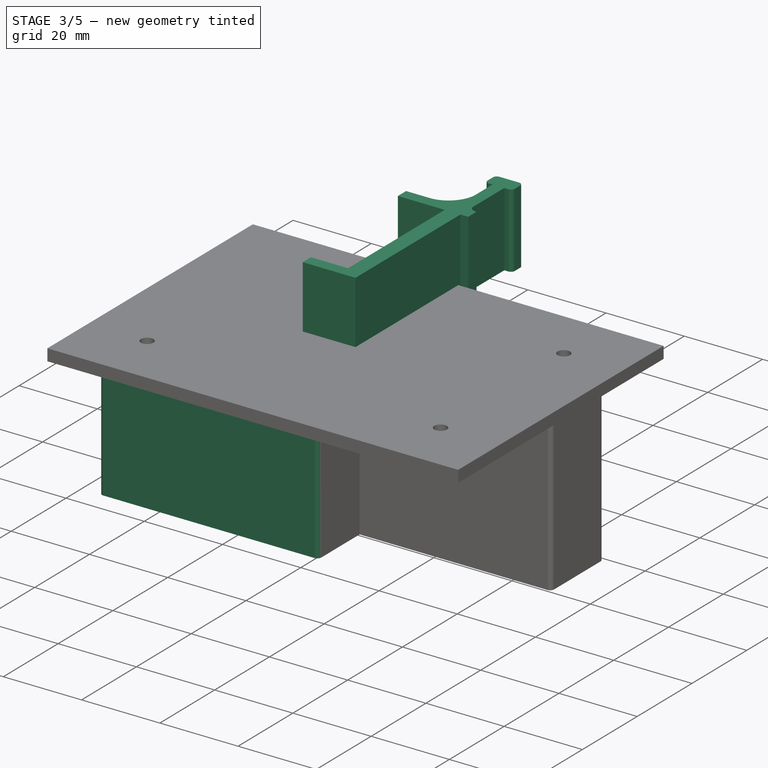
[diagram: stage 3 of 5 — iso view after this stage's code; geometry added in this stage tinted green]
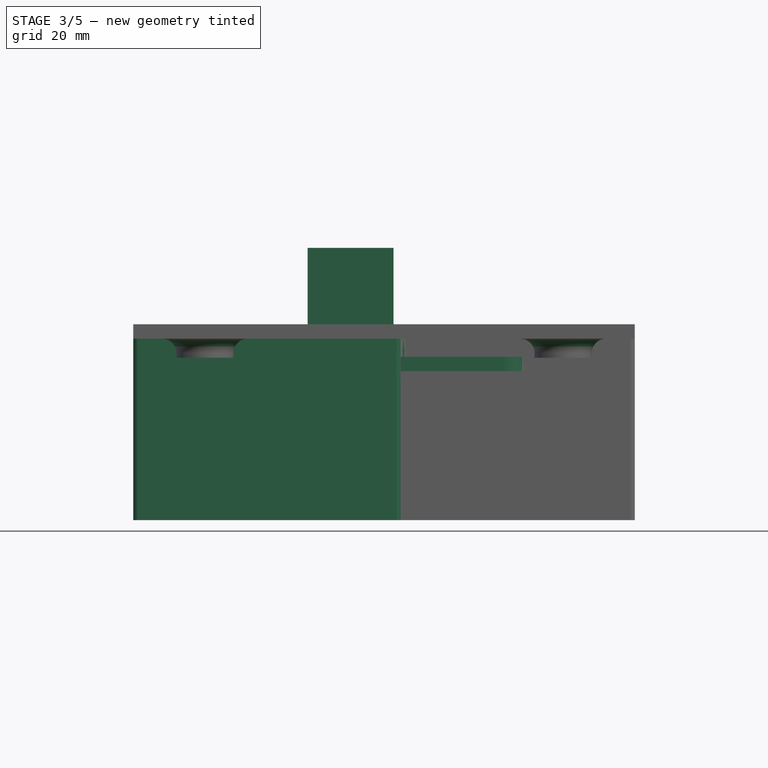
[diagram: stage 3 of 5 — front view after this stage's code; geometry added in this stage tinted green]
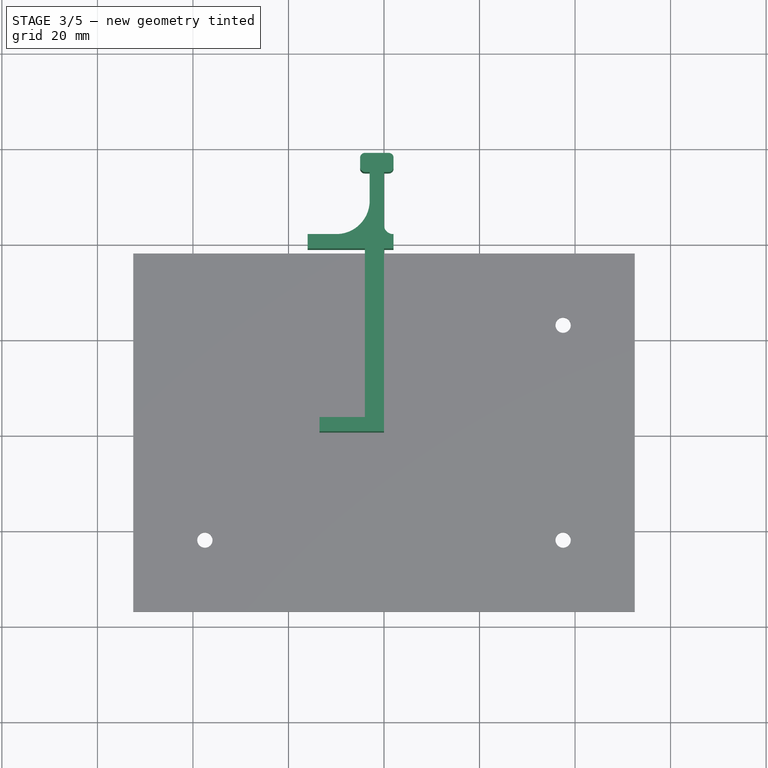
[diagram: stage 3 of 5 — top view after this stage's code; geometry added in this stage tinted green]
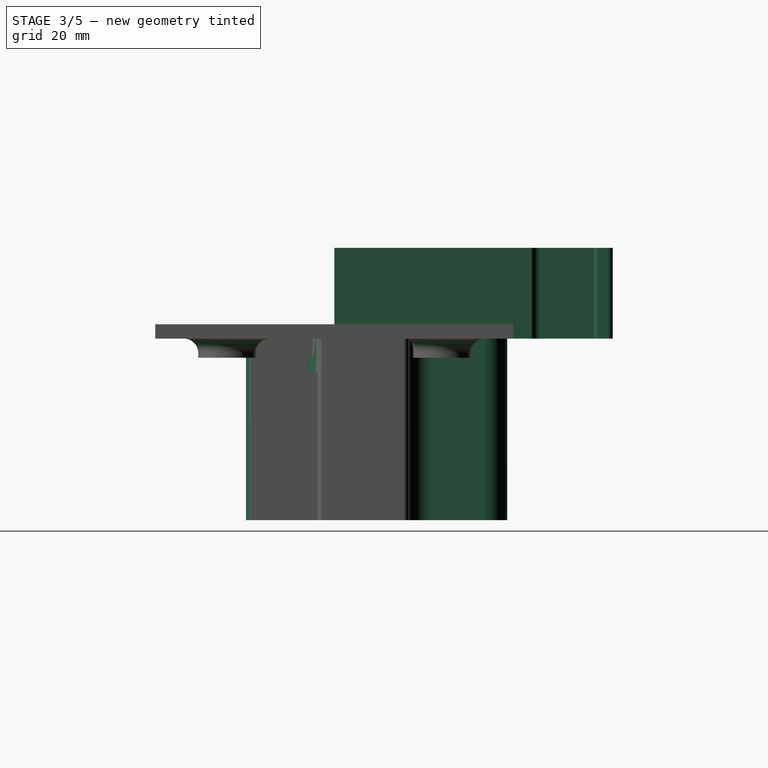
[diagram: stage 3 of 5 — right view after this stage's code; geometry added in this stage tinted green]
FEATURE [Sketcher::SketchObject] Sketch119
  ArcFitTolerance = 1e-06
  AttachmentSupport = -> [XY_Plane]
  FullyConstrained = true
  MakeInternals = false
  MapMode = 5
  sketch-geometry (6):
    g0: LineSegment StartX=0 StartY=0 StartZ=0 EndX=-13.5 EndY=0 EndZ=0
    g1: LineSegment StartX=-13.5 StartY=0 StartZ=0 EndX=-13.5 EndY=3 EndZ=0
    g2: LineSegment StartX=-13.5 StartY=3 StartZ=0 EndX=-4 EndY=3 EndZ=0
    g3: LineSegment StartX=-4 StartY=3 StartZ=0 EndX=-4 EndY=38 EndZ=0
    g4: LineSegment StartX=-4 StartY=38 StartZ=0 EndX=0 EndY=38 EndZ=0
    g5: LineSegment StartX=0 StartY=38 StartZ=0 EndX=0 EndY=0 EndZ=0
  constraints (17):
    c: Coincident(g0,g-1)
    c: PointOnObject(g0,g-1)
    c: Coincident(g1,g0)
    c: Vertical(g1)
    c: Coincident(g2,g1)
    c: Horizontal(g2)
    c: Vertical(g3)
    c: Coincident(g4,g3)
    c: PointOnObject(g4,g-2)
    c: Horizontal(g4)
    c: Coincident(g5,g4)
    c: Coincident(g5,g0)
    c: DistanceX(g0,g0) = 13.5
    c: DistanceX(g4,g4) = 4
    c: Coincident(g2,g3)
    c: DistanceY(g1,g1) = 3
    c: DistanceY(g3,g3) = 35
FEATURE [PartDesign::Pad] Pad121
  Direction = (0,0,1)
  Length = 19
  Length2 = 10
  Profile = -> Sketch119
  ReferenceAxis = -> Sketch119 [N_Axis]
  Refine = true
  Suppressed = false
  Type = 0
FEATURE [PartDesign::Body] Body017  label="Körper001"
  AllowCompound = false
  Group = -> [Sketch120,Pad122]
  Origin = -> Origin017
  Tip = -> Pad122
FEATURE [Sketcher::SketchObject] Sketch121
  ArcFitTolerance = 1e-06
  AttachmentSupport = -> [XY_Plane018]
  FullyConstrained = true
  MakeInternals = false
  MapMode = 5
  sketch-geometry (2):
    g0: Circle CenterX=0 CenterY=0 CenterZ=0 NormalX=0 NormalY=0 NormalZ=1 AngleXU=0 Radius=5.7
    g1: Circle CenterX=0 CenterY=0 CenterZ=0 NormalX=0 NormalY=0 NormalZ=1 AngleXU=0 Radius=1.65
  constraints (4):
    c: Diameter(g0) = 11.4
    c: Coincident(g0,g-1)
    c: Diameter(g1) = 3.3
    c: Coincident(g1,g0)
FEATURE [PartDesign::Pad] Pad123
  Direction = (0,0,1)
  Length = 1.4
  Length2 = 10
  Profile = -> Sketch121
  ReferenceAxis = -> Sketch121 [N_Axis]
  Refine = true
  Suppressed = false
  Type = 0
FEATURE [PartDesign::Pad] Pad124
  BaseFeature = -> Pad123
  Direction = (0,0,-1)
  Length = 2.2
  Length2 = 10
  Profile = -> Pad123 [Face3]
  Refine = true
  Suppressed = false
  Type = 0
FEATURE [Sketcher::SketchObject] Sketch122
  ArcFitTolerance = 1e-06
  AttachmentSupport = -> [Pad124]
  FullyConstrained = false
  MakeInternals = false
  MapMode = 5
  Placement = pos=(0,0,-2.2) rot=(1,0,0;3.14159rad)
  sketch-geometry (5):
    g0: LineSegment StartX=-13.6697 StartY=-2.85 StartZ=0 EndX=13.6697 EndY=-2.85 EndZ=0
    g1: LineSegment StartX=13.6697 StartY=-2.85 StartZ=0 EndX=13.6697 EndY=2.85 EndZ=0
    g2: LineSegment StartX=13.6697 StartY=2.85 StartZ=0 EndX=-13.6697 EndY=2.85 EndZ=0
    g3: LineSegment StartX=-13.6697 StartY=2.85 StartZ=0 EndX=-13.6697 EndY=-2.85 EndZ=0
    g4: GeomPoint [constr] X=0 Y=0 Z=0
  constraints (11):
    c: Coincident(g0,g1)
    c: Coincident(g1,g2)
    c: Coincident(g2,g3)
    c: Coincident(g3,g0)
    c: Horizontal(g0)
    c: Horizontal(g2)
    c: Vertical(g1)
    c: Vertical(g3)
    c: Symmetric(g2,g0,g4)
    c: Distance(g0,g2) = 5.7
    c: Coincident(g4,g-1)
FEATURE [PartDesign::Pocket] Pocket083
  BaseFeature = -> Pad124
  Direction = (0,0,1)
  Length = 2.2
  Length2 = 5
  Profile = -> Sketch122
  ReferenceAxis = -> Sketch122 [N_Axis]
  Refine = true
  Suppressed = false
  Type = 0
FEATURE [Sketcher::SketchObject] Sketch123
  ArcFitTolerance = 1e-06
  AttachmentSupport = -> [Pocket083]
  FullyConstrained = true
  MakeInternals = false
  MapMode = 5
  Placement = pos=(0,0,-2.2) rot=(1,0,0;3.14159rad)
  sketch-geometry (1):
    g0: Circle CenterX=0 CenterY=0 CenterZ=0 NormalX=0 NormalY=0 NormalZ=1 AngleXU=0 Radius=5.75
  constraints (2):
    c: Diameter(g0) = 11.5
    c: Coincident(g0,g-1)
FEATURE [PartDesign::Pad] Pad125
  BaseFeature = -> Pocket083
  Direction = (0,0,-1)
  Length = 1.6
  Length2 = 10
  Profile = -> Sketch123
  ReferenceAxis = -> Sketch123 [N_Axis]
  Refine = true
  Suppressed = false
  Type = 0
FEATURE [Sketcher::SketchObject] Sketch124
  ArcFitTolerance = 1e-06
  AttachmentSupport = -> [Pad125]
  FullyConstrained = true
  MakeInternals = false
  MapMode = 5
  Placement = pos=(0,0,-3.8) rot=(1,0,0;3.14159rad)
  sketch-geometry (4):
    g0: ArcOfCircle CenterX=0 CenterY=0 CenterZ=0 NormalX=0 NormalY=0 NormalZ=1 AngleXU=0 Radius=5.75 StartAngle=1.5708 EndAngle=4.71239
    g1: LineSegment StartX=4e-16 StartY=5.75 StartZ=0 EndX=30 EndY=5.75 EndZ=0
    g2: LineSegment StartX=-1.1e-15 StartY=-5.75 StartZ=0 EndX=30 EndY=-5.75 EndZ=0
    g3: LineSegment StartX=30 StartY=5.75 StartZ=0 EndX=30 EndY=-5.75 EndZ=0
  constraints (10):
    c: Radius(g0) = 5.75
    c: Coincident(g0,g-1)
    c: PointOnObject(g0,g-2)
    c: PointOnObject(g0,g-2)
    c: Distance(g1) = 30
    c: Tangent(g1,g0) = 1.5708
    c: Distance(g2) = 30
    c: Tangent(g2,g0) = -1.5708
    c: Coincident(g3,g1)
    c: Coincident(g3,g2)
FEATURE [PartDesign::Pad] Pad126
  BaseFeature = -> Pad125
  Direction = (0,0,-1)
  Length = 3
  Length2 = 10
  Profile = -> Sketch124
  ReferenceAxis = -> Sketch124 [N_Axis]
  Refine = true
  Suppressed = false
  Type = 0
FEATURE [PartDesign::Fillet] Fillet054
  Base = -> Pad126 [Edge9,Edge7]
  BaseFeature = -> Pad126
  Radius = 5
  Refine = true
  SupportTransform = false
  Suppressed = false
  UseAllEdges = false
FEATURE [PartDesign::Body] Body018  label="Schraubkappe"
  AllowCompound = false
  Group = -> [Sketch121,Pad123,Pad124,Sketch122,Pocket083,Sketch123,Pad125,Sketch124,Pad126,Fillet054,Fillet055,Sketch125,Pocket084]
  Origin = -> Origin018
  Tip = -> Pocket084
FEATURE [PartDesign::Pad] Pad127
  BaseFeature = -> Pad121
  Direction = (0,1,0)
  Length = 0.3
  Length2 = 10
  Profile = -> Pad121 [Face5]
  Refine = true
  Suppressed = false
  Type = 0
FEATURE [Sketcher::SketchObject] Sketch126
  ArcFitTolerance = 1e-06
  AttachmentSupport = -> [Pad127]
  FullyConstrained = true
  MakeInternals = false
  MapMode = 5
  Placement = pos=(0,38.3,0) rot=(0,0.707107,0.707107;3.14159rad)
  sketch-geometry (4):
    g0: LineSegment StartX=16 StartY=0 StartZ=0 EndX=16 EndY=19 EndZ=0
    g1: LineSegment StartX=16 StartY=19 StartZ=0 EndX=-2 EndY=19 EndZ=0
    g2: LineSegment StartX=-2 StartY=19 StartZ=0 EndX=-2 EndY=0 EndZ=0
    g3: LineSegment StartX=-2 StartY=0 StartZ=0 EndX=16 EndY=0 EndZ=0
  constraints (12):
    c: Coincident(g0,g1)
    c: Coincident(g1,g2)
    c: Coincident(g2,g3)
    c: Coincident(g3,g0)
    c: Vertical(g0)
    c: Vertical(g2)
    c: Horizontal(g1)
    c: Horizontal(g3)
    c: Distance(g0,g2) = 18
    c: Distance(g1,g3) = 19
    c: PointOnObject(g0,g-1)
    c: Distance(g-2,g2) = 2
FEATURE [PartDesign::Pad] Pad128
  BaseFeature = -> Pad127
  Direction = (0,1,-2e-16)
  Length = 3
  Length2 = 10
  Profile = -> Sketch126
  ReferenceAxis = -> Sketch126 [N_Axis]
  Refine = true
  Suppressed = false
  Type = 0
FEATURE [Sketcher::SketchObject] Sketch127
  ArcFitTolerance = 1e-06
  AttachmentSupport = -> [Pad128]
  FullyConstrained = true
  MakeInternals = false
  MapMode = 5
  Placement = pos=(0,41.3,-1.53e-14) rot=(0,0.707107,0.707107;3.14159rad)
  sketch-geometry (4):
    g0: LineSegment StartX=0 StartY=0 StartZ=0 EndX=3 EndY=0 EndZ=0
    g1: LineSegment StartX=3 StartY=0 StartZ=0 EndX=3 EndY=19 EndZ=0
    g2: LineSegment StartX=3 StartY=19 StartZ=0 EndX=0 EndY=19 EndZ=0
    g3: LineSegment StartX=0 StartY=19 StartZ=0 EndX=0 EndY=0 EndZ=0
  constraints (11):
    c: Coincident(g0,g1)
    c: Coincident(g1,g2)
    c: Coincident(g2,g3)
    c: Coincident(g3,g0)
    c: Horizontal(g0)
    c: Horizontal(g2)
    c: Vertical(g1)
    c: Vertical(g3)
    c: Distance(g1,g3) = 3
    c: Distance(g0,g2) = 19
    c: Coincident(g0,g-1)
FEATURE [PartDesign::Pad] Pad129
  BaseFeature = -> Pad128
  Direction = (0,1,-2e-16)
  Length = 15
  Length2 = 10
  Profile = -> Sketch127
  ReferenceAxis = -> Sketch127 [N_Axis]
  Refine = true
  Suppressed = false
  Type = 0
FEATURE [Sketcher::SketchObject] Sketch128
  ArcFitTolerance = 1e-06
  AttachmentSupport = -> [Pad129]
  ExternalGeometry = -> [Pad129]
  FullyConstrained = true
  MakeInternals = false
  MapMode = 5
  Placement = pos=(0,0,-4.5e-15) rot=(1,0,0;3.14159rad)
  sketch-geometry (5):
    g0: LineSegment StartX=-5 StartY=-58.3 StartZ=0 EndX=2 EndY=-58.3 EndZ=0
    g1: LineSegment StartX=2 StartY=-58.3 StartZ=0 EndX=2 EndY=-54.3 EndZ=0
    g2: LineSegment StartX=2 StartY=-54.3 StartZ=0 EndX=-5 EndY=-54.3 EndZ=0
    g3: LineSegment StartX=-5 StartY=-54.3 StartZ=0 EndX=-5 EndY=-58.3 EndZ=0
    g4: GeomPoint [constr] X=-1.5 Y=-56.3 Z=0
  constraints (12):
    c: Coincident(g0,g1)
    c: Coincident(g1,g2)
    c: Coincident(g2,g3)
    c: Coincident(g3,g0)
    c: Horizontal(g0)
    c: Horizontal(g2)
    c: Vertical(g1)
    c: Vertical(g3)
    c: Symmetric(g2,g0,g4)
    c: Distance(g1,g3) = 7
    c: Distance(g0,g2) = 4
    c: Symmetric(g-3,g-3,g4)
FEATURE [PartDesign::Pad] Pad130
  BaseFeature = -> Pad129
  Direction = (0,0,-1)
  Length = 19
  Length2 = 10
  Profile = -> Sketch128
  ReferenceAxis = -> Sketch128 [N_Axis]
  Refine = true
  Reversed = true
  Suppressed = false
  Type = 0
FEATURE [PartDesign::Fillet] Fillet056
  Base = -> Pad130 [Edge50,Edge46,Edge47,Edge42]
  BaseFeature = -> Pad130
  Radius = 1
  Refine = true
  SupportTransform = false
  Suppressed = false
  UseAllEdges = false
FEATURE [PartDesign::Fillet] Fillet057
  Base = -> Fillet056 [Edge63]
  BaseFeature = -> Fillet056
  Radius = 1.9
  Refine = true
  SupportTransform = false
  Suppressed = false
  UseAllEdges = false
FEATURE [PartDesign::Fillet] Fillet058
  Base = -> Fillet057 [Edge65]
  BaseFeature = -> Fillet057
  Radius = 7
  Refine = true
  SupportTransform = false
  Suppressed = false
  UseAllEdges = false
FEATURE [PartDesign::Pad] Pad131
  BaseFeature = -> Pocket085
  Direction = (-1,0,0)
  Length = 2
  Length2 = 10
  Profile = -> Pocket085 [Face16]
  Refine = true
  Suppressed = false
  Type = 0
FEATURE [PartDesign::Pad] Pad132
  BaseFeature = -> Pad131
  Direction = (1,0,0)
  Length = 2
  Length2 = 10
  Profile = -> Pad131 [Face15]
  Refine = true
  Suppressed = false
  Type = 0
FEATURE [PartDesign::Pocket] Pocket086
  BaseFeature = -> Pad132
  Direction = (1,0,0)
  Length = 2
  Length2 = 5
  Profile = -> Pad132 [Face56]
  Refine = true
  Suppressed = false
  Type = 0
FEATURE [PartDesign::Pocket] Pocket087
  BaseFeature = -> Pocket086
  Direction = (-1,0,0)
  Length = 2
  Length2 = 5
  Profile = -> Pocket086 [Face37]
  Refine = true
  Suppressed = false
  Type = 0
FEATURE [PartDesign::Pad] Pad133
  BaseFeature = -> Pocket087
  Direction = (-1,0,0)
  Length = 1
  Length2 = 10
  Profile = -> Pocket087 [Face16]
  Refine = true
  Suppressed = false
  Type = 0
FEATURE [PartDesign::Pad] Pad134
  BaseFeature = -> Pad133
  Direction = (1,0,0)
  Length = 1
  Length2 = 10
  Profile = -> Pad133 [Face16]
  Refine = true
  Suppressed = false
  Type = 0
FEATURE [PartDesign::Pad] Pad135
  BaseFeature = -> Pad134
  Direction = (0,1,0)
  Length = 1
  Length2 = 10
  Profile = -> Pad134 [Face58]
  Refine = true
  Suppressed = false
  Type = 0
FEATURE [PartDesign::Fillet] Fillet
  Base = -> Pad135 [Edge56,Edge55,Edge53,Edge24]
  BaseFeature = -> Pad135
  Radius = 5
  Refine = true
  SupportTransform = false
  Suppressed = false
  UseAllEdges = false
FEATURE [PartDesign::Fillet] Fillet059
  Base = -> Fillet [Edge74,Edge67]
  BaseFeature = -> Fillet
  Radius = 1
  Refine = true
  SupportTransform = false
  Suppressed = false
  UseAllEdges = false
FEATURE [PartDesign::Fillet] Fillet060
  Base = -> Fillet059 [Edge61,Edge52]
  BaseFeature = -> Fillet059
  Radius = 1
  Refine = true
  SupportTransform = false
  Suppressed = false
  UseAllEdges = false
FEATURE [PartDesign::Fillet] Fillet061
  Base = -> Fillet060 [Edge151]
  BaseFeature = -> Fillet060
  Radius = 3
  Refine = true
  SupportTransform = false
  Suppressed = false
  UseAllEdges = false
FEATURE [PartDesign::Fillet] Fillet062
  Base = -> Fillet061 [Edge160,Edge157]
  BaseFeature = -> Fillet061
  Radius = 3
  Refine = true
  SupportTransform = false
  Suppressed = false
  UseAllEdges = false
FEATURE [PartDesign::Pad] Pad136
  BaseFeature = -> Fillet062
  Direction = (0,-1,0)
  Length = 1
  Length2 = 10
  Profile = -> Fillet062 [Face1]
  Refine = true
  Suppressed = false
  Type = 0
FEATURE [PartDesign::Pocket] Pocket088
  BaseFeature = -> Pad136
  Direction = (0,-1,0)
  Length = 1
  Length2 = 5
  Profile = -> Pad136 [Face59]
  Refine = true
  Suppressed = false
  Type = 0
FEATURE [PartDesign::Pad] Pad137
  BaseFeature = -> Pocket088
  Direction = (0,-1,0)
  Length = 1
  Length2 = 10
  Profile = -> Pocket088 [Face31,Face29]
  Refine = true
  Suppressed = false
  Type = 0
FEATURE [PartDesign::Pad] Pad138
  BaseFeature = -> Pad137
  Direction = (0,-1,0)
  Length = 1
  Length2 = 10
  Profile = -> Pad137 [Face58]
  Refine = true
  Suppressed = false
  Type = 0
FEATURE [Sketcher::SketchObject] Sketch130
  ArcFitTolerance = 1e-06
  AttachmentSupport = -> [Pad138]
  ExternalGeometry = -> [Pad138]
  FullyConstrained = true
  MakeInternals = false
  MapMode = 5
  Placement = pos=(0,0,-38) rot=(1,0,0;3.14159rad)
  sketch-geometry (4):
    g0: LineSegment StartX=-50.5735 StartY=16.5 StartZ=0 EndX=-50.5735 EndY=18.5 EndZ=0
    g1: LineSegment StartX=-50.5735 StartY=16.5 StartZ=0 EndX=-52.5 EndY=16.5 EndZ=0
    g2: LineSegment StartX=-52.5 StartY=16.5 StartZ=0 EndX=-52.5 EndY=18.5 EndZ=0
    g3: LineSegment StartX=-52.5 StartY=18.5 StartZ=0 EndX=-50.5735 EndY=18.5 EndZ=0
  constraints (10):
    c: Coincident(g0,g-4)
    c: PointOnObject(g0,g-3)
    c: Vertical(g0)
    c: Coincident(g1,g0)
    c: Coincident(g1,g-5)
    c: Distance(g2) = 2
    c: Coincident(g2,g1)
    c: Vertical(g2)
    c: Coincident(g3,g2)
    c: Coincident(g3,g0)
FEATURE [PartDesign::Pad] Pad139
  BaseFeature = -> Pad138
  Direction = (0,0,-1)
  Length = 10
  Length2 = 10
  Profile = -> Sketch130
  ReferenceAxis = -> Sketch130 [N_Axis]
  Refine = true
  Reversed = true
  Suppressed = false
  Type = 3
  UpToFace = -> Pad138 [Face2]
FEATURE [PartDesign::Fillet] Fillet063
  Base = -> Pad139 [Edge185,Edge13]
  BaseFeature = -> Pad139
  Radius = 1
  Refine = true
  SupportTransform = false
  Suppressed = false
  UseAllEdges = false
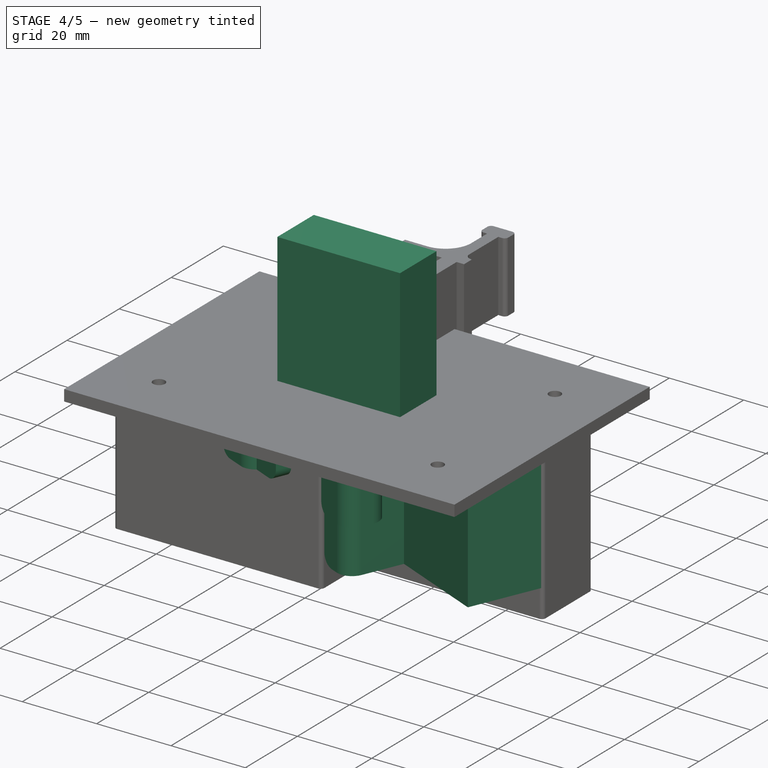
[diagram: stage 4 of 5 — iso view after this stage's code; geometry added in this stage tinted green]
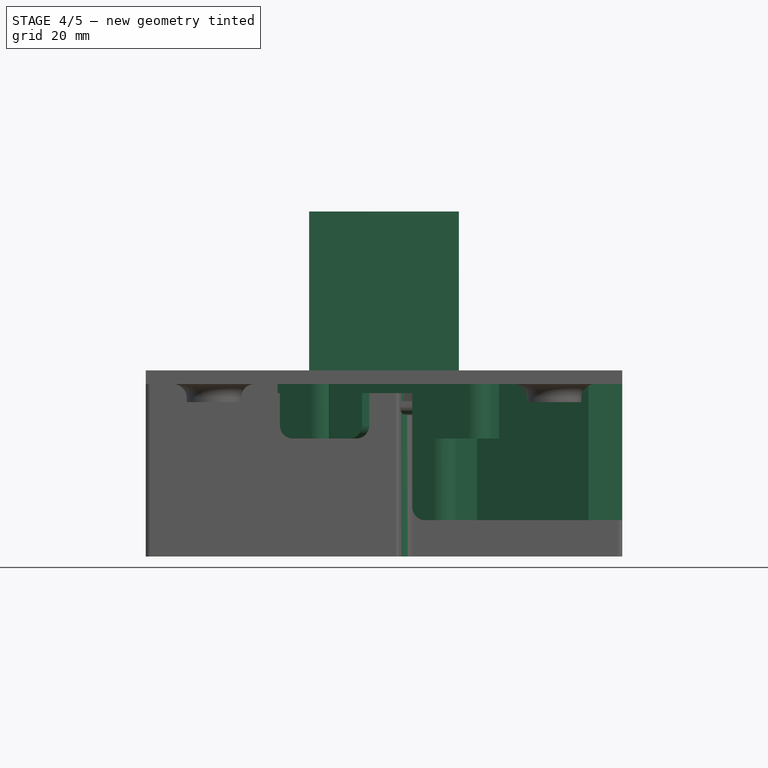
[diagram: stage 4 of 5 — front view after this stage's code; geometry added in this stage tinted green]
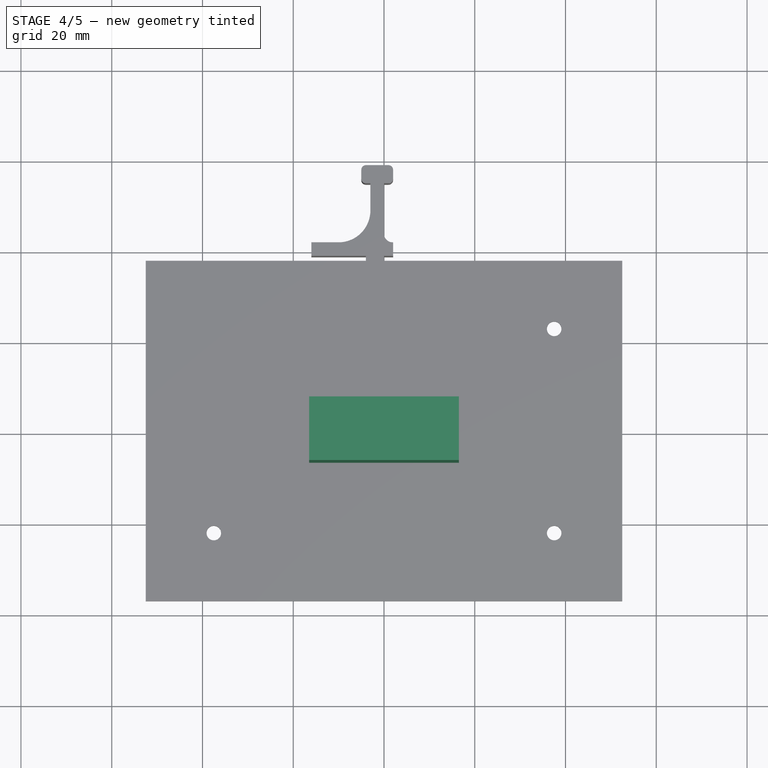
[diagram: stage 4 of 5 — top view after this stage's code; geometry added in this stage tinted green]
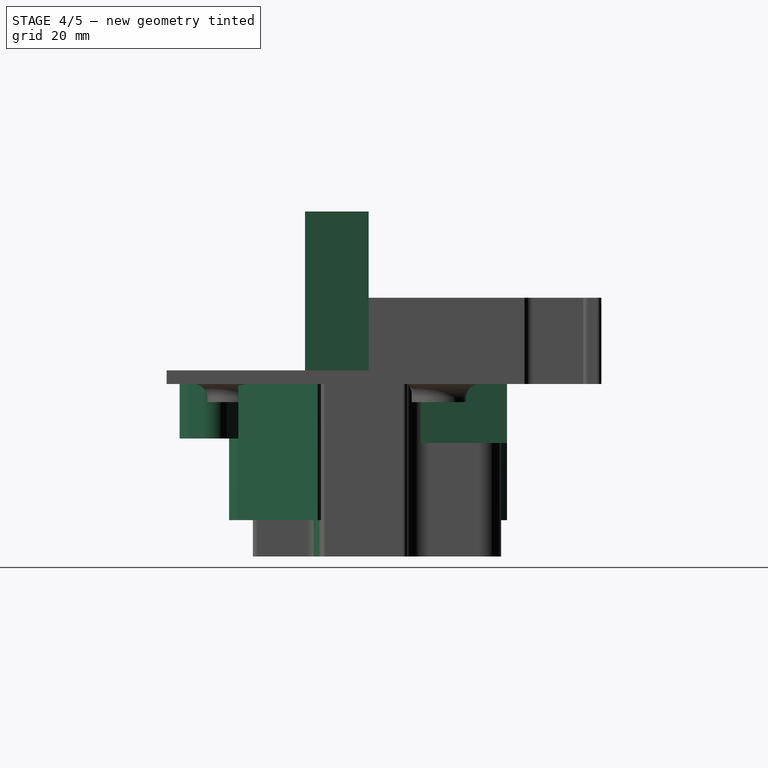
[diagram: stage 4 of 5 — right view after this stage's code; geometry added in this stage tinted green]
FEATURE [Sketcher::SketchObject] Sketch070
  ArcFitTolerance = 1e-06
  AttachmentSupport = -> [XY_Plane015]
  FullyConstrained = true
  MakeInternals = false
  MapMode = 5
  sketch-geometry (8):
    g0: LineSegment StartX=-52.5 StartY=-37.5 StartZ=0 EndX=52.5 EndY=-37.5 EndZ=0
    g1: LineSegment StartX=52.5 StartY=-37.5 StartZ=0 EndX=52.5 EndY=37.5 EndZ=0
    g2: LineSegment StartX=52.5 StartY=37.5 StartZ=0 EndX=-52.5 EndY=37.5 EndZ=0
    g3: LineSegment StartX=-52.5 StartY=37.5 StartZ=0 EndX=-52.5 EndY=-37.5 EndZ=0
    g4: GeomPoint [constr] X=0 Y=0 Z=0
    g5: Circle CenterX=37.5 CenterY=22.5 CenterZ=0 NormalX=0 NormalY=0 NormalZ=1 AngleXU=0 Radius=1.6
    g6: Circle CenterX=37.5 CenterY=-22.5 CenterZ=0 NormalX=0 NormalY=0 NormalZ=1 AngleXU=0 Radius=1.6
    g7: Circle CenterX=-37.5 CenterY=-22.5 CenterZ=0 NormalX=0 NormalY=0 NormalZ=1 AngleXU=0 Radius=1.6
  constraints (21):
    c: Coincident(g0,g1)
    c: Coincident(g1,g2)
    c: Coincident(g2,g3)
    c: Coincident(g3,g0)
    c: Horizontal(g0)
    c: Horizontal(g2)
    c: Vertical(g1)
    c: Vertical(g3)
    c: Symmetric(g2,g0,g4)
    c: Distance(g1,g3) = 105
    c: Distance(g0,g2) = 75
    c: Coincident(g4,g-1)
    c: Diameter(g5) = 3.2
    c: Diameter(g6) = 3.2
    c: Diameter(g7) = 3.2
    c: Distance(g5,g1) = 15
    c: Distance(g5,g2) = 15
    c: Distance(g6,g1) = 15
    c: Distance(g7,g3) = 15
    c: Distance(g7,g0) = 15
    c: Distance(g6,g0) = 15
FEATURE [PartDesign::Pad] Pad055
  Direction = (0,0,1)
  Length = 3
  Length2 = 10
  Profile = -> Sketch070
  ReferenceAxis = -> Sketch070 [N_Axis]
  Refine = true
  Suppressed = false
  Type = 0
FEATURE [Sketcher::SketchObject] Sketch071
  ArcFitTolerance = 1e-06
  AttachmentSupport = -> [Pad055]
  ExternalGeometry = -> [Pad055]
  FullyConstrained = true
  MakeInternals = false
  MapMode = 5
  Placement = pos=(0,0,0) rot=(1,0,0;3.14159rad)
  sketch-geometry (11):
    g0: LineSegment StartX=-49.5128 StartY=-23.104 StartZ=0 EndX=45.1865 EndY=17.406 EndZ=0
    g1: LineSegment StartX=-45.1865 StartY=-33.2175 StartZ=0 EndX=49.5128 EndY=7.29244 EndZ=0
    g2: LineSegment StartX=-49.5128 StartY=-23.104 StartZ=0 EndX=-45.1865 EndY=-33.2175 EndZ=0
    g3: LineSegment StartX=45.1865 StartY=17.406 StartZ=0 EndX=49.5128 EndY=7.29244 EndZ=0
    g4: LineSegment [constr] StartX=-49.5128 StartY=-23.104 StartZ=0 EndX=49.5128 EndY=7.29244 EndZ=0
    g5: LineSegment [constr] StartX=-45.1865 StartY=-33.2175 StartZ=0 EndX=45.1865 EndY=17.406 EndZ=0
    g6: GeomPoint [constr] X=0 Y=-7.90576 Z=0
    g7: LineSegment StartX=-52.5 StartY=-20.0312 StartZ=0 EndX=45.0273 EndY=21.6885 EndZ=0
    g8: LineSegment StartX=45.0273 StartY=21.6885 StartZ=0 EndX=52.5 EndY=4.21968 EndZ=0
    g9: LineSegment StartX=52.5 StartY=4.21968 StartZ=0 EndX=-45.0273 EndY=-37.5 EndZ=0
    g10: LineSegment StartX=-45.0273 StartY=-37.5 StartZ=0 EndX=-52.5 EndY=-20.0312 EndZ=0
  constraints (30):
    c: Parallel(g0,g1)
    c: Equal(g0,g1)
    c: Distance(g1,g0) = 11
    c: Coincident(g2,g0)
    c: Coincident(g2,g1)
    c: Coincident(g3,g0)
    c: Coincident(g3,g1)
    c: Angle(g1,g2) = 1.5708
    c: Distance(g0,g0) = 103
    c: Coincident(g4,g0)
    c: Coincident(g4,g1)
    c: Coincident(g5,g1)
    c: Coincident(g5,g0)
    c: PointOnObject(g6,g4)
    c: PointOnObject(g6,g5)
    c: PointOnObject(g6,g-2)
    c: Coincident(g8,g7)
    c: Coincident(g9,g8)
    c: Coincident(g10,g9)
    c: Coincident(g10,g7)
    c: Parallel(g9,g7)
    c: Parallel(g10,g8)
    c: Angle(g-1,g0) = 0.404218
    c: Parallel(g7,g0)
    c: Parallel(g8,g3)
    c: Distance(g7,g0) = 4
    c: Distance(g8,g8) = 19
    c: PointOnObject(g7,g-3)
    c: PointOnObject(g8,g-4)
    c: PointOnObject(g9,g-5)
FEATURE [PartDesign::Pad] Pad056
  BaseFeature = -> Pad055
  Direction = (0,0,-1)
  Length = 5
  Length2 = 10
  Profile = -> Sketch071
  ReferenceAxis = -> Sketch071 [N_Axis]
  Refine = true
  Suppressed = false
  Type = 0
FEATURE [Sketcher::SketchObject] Sketch072
  ArcFitTolerance = 1e-06
  AttachmentSupport = -> [Pad056]
  ExternalGeometry = -> [Pad056]
  FullyConstrained = false
  MakeInternals = false
  MapMode = 5
  Placement = pos=(0,0,0) rot=(1,0,0;3.14159rad)
  sketch-geometry (12):
    g0: LineSegment StartX=-31.9029 StartY=-11.2203 StartZ=0 EndX=-36.2292 EndY=-1.1068 EndZ=0
    g1: LineSegment StartX=-36.2292 StartY=-1.1068 StartZ=0 EndX=12.4995 EndY=19.7381 EndZ=0
    g2: LineSegment StartX=-31.9029 StartY=-11.2203 StartZ=0 EndX=16.8258 EndY=9.6246 EndZ=0
    g3: LineSegment StartX=16.8258 StartY=9.6246 StartZ=0 EndX=12.4995 EndY=19.7381 EndZ=0
    g4: LineSegment StartX=20.4992 StartY=11.196 StartZ=0 EndX=16.1729 EndY=21.3095 EndZ=0
    g5: ArcOfCircle CenterX=12.4995 CenterY=19.7381 CenterZ=0 NormalX=0 NormalY=0 NormalZ=-1 AngleXU=-0.404218 Radius=3.99533 StartAngle=1.5708 EndAngle=3.14159
    g6: LineSegment StartX=-37.8006 StartY=2.56655 StartZ=0 EndX=10.9281 EndY=23.4115 EndZ=0
    g7: ArcOfCircle CenterX=-36.2292 CenterY=-1.1068 CenterZ=0 NormalX=0 NormalY=0 NormalZ=-1 AngleXU=-1.97501 Radius=3.99533 StartAngle=1.5708 EndAngle=3.14159
    g8: LineSegment StartX=-35.5763 StartY=-12.7917 StartZ=0 EndX=-39.9026 EndY=-2.67816 EndZ=0
    g9: ArcOfCircle CenterX=-31.9029 CenterY=-11.2203 CenterZ=0 NormalX=0 NormalY=0 NormalZ=-1 AngleXU=2.73737 Radius=3.99533 StartAngle=1.5708 EndAngle=3.14159
    g10: LineSegment StartX=-30.3316 StartY=-14.8937 StartZ=0 EndX=18.3972 EndY=5.95125 EndZ=0
    g11: ArcOfCircle CenterX=16.8258 CenterY=9.6246 CenterZ=0 NormalX=0 NormalY=0 NormalZ=-1 AngleXU=1.16658 Radius=3.99533 StartAngle=1.5708 EndAngle=3.14159
  constraints (19):
    c: PointOnObject(g0,g-3)
    c: Distance(g0) = 11
    c: Distance(g1) = 53
    c: Coincident(g1,g0)
    c: Distance(g2) = 53
    c: Coincident(g2,g0)
    c: PointOnObject(g2,g-3)
    c: Angle(g2,g0) = 1.5708
    c: Coincident(g3,g2)
    c: Coincident(g3,g1)
    c: Parallel(g2,g1)
    c: Tangent(g4,g5) = -1.5708
    c: Tangent(g4,g11) = -1.5708
    c: Tangent(g5,g6) = 1.5708
    c: Tangent(g6,g7) = 1.5708
    c: Tangent(g7,g8) = 1.5708
    c: Tangent(g8,g9) = 1.5708
    c: Tangent(g9,g10) = -1.5708
    c: Tangent(g10,g11) = -1.5708
FEATURE [PartDesign::Pad] Pad057
  BaseFeature = -> Pad056
  Direction = (0,0,-1)
  Length = 4
  Length2 = 10
  Profile = -> Sketch072
  ReferenceAxis = -> Sketch072 [N_Axis]
  Refine = true
  Suppressed = false
  Type = 0
FEATURE [Sketcher::SketchObject] Sketch073
  ArcFitTolerance = 1e-06
  AttachmentSupport = -> [Pad057]
  ExternalGeometry = -> [Pad057]
  FullyConstrained = false
  MakeInternals = false
  MapMode = 5
  Placement = pos=(0,0,0) rot=(1,0,0;3.14159rad)
  sketch-geometry (10):
    g0: LineSegment StartX=-7.92738 StartY=-37.5 StartZ=0 EndX=33.0726 EndY=-37.5 EndZ=0
    g1: LineSegment StartX=33.0726 StartY=-37.5 StartZ=0 EndX=33.0726 EndY=-18.5 EndZ=0
    g2: LineSegment StartX=33.0726 StartY=-18.5 StartZ=0 EndX=-7.92738 EndY=-18.5 EndZ=0
    g3: LineSegment StartX=-7.92738 StartY=-18.5 StartZ=0 EndX=-7.92738 EndY=-37.5 EndZ=0
    g4: GeomPoint [constr] X=12.5726 Y=-28 Z=0
    g5: LineSegment StartX=-3.92738 StartY=-33.5 StartZ=0 EndX=29.0726 EndY=-33.5 EndZ=0
    g6: LineSegment StartX=29.0726 StartY=-33.5 StartZ=0 EndX=29.0726 EndY=-22.5 EndZ=0
    g7: LineSegment StartX=29.0726 StartY=-22.5 StartZ=0 EndX=-3.92738 EndY=-22.5 EndZ=0
    g8: LineSegment StartX=-3.92738 StartY=-22.5 StartZ=0 EndX=-3.92738 EndY=-33.5 EndZ=0
    g9: GeomPoint [constr] X=12.5726 Y=-28 Z=0
  constraints (24):
    c: Coincident(g0,g1)
    c: Coincident(g1,g2)
    c: Coincident(g2,g3)
    c: Coincident(g3,g0)
    c: Horizontal(g0)
    c: Horizontal(g2)
    c: Vertical(g1)
    c: Vertical(g3)
    c: Symmetric(g2,g0,g4)
    c: Distance(g1,g3) = 41
    c: Distance(g0,g2) = 19
    c: DistanceY(g4,g-1) = 28
    c: Coincident(g5,g6)
    c: Coincident(g6,g7)
    c: Coincident(g7,g8)
    c: Coincident(g8,g5)
    c: Horizontal(g5)
    c: Horizontal(g7)
    c: Vertical(g6)
    c: Vertical(g8)
    c: Symmetric(g7,g5,g9)
    c: Distance(g6,g8) = 33
    c: Distance(g5,g7) = 11
    c: Coincident(g9,g4)
FEATURE [PartDesign::Pad] Pad058
  BaseFeature = -> Pad057
  Direction = (0,0,-1)
  Length = 10
  Length2 = 10
  Profile = -> Sketch073
  ReferenceAxis = -> Sketch073 [N_Axis]
  Refine = true
  Suppressed = false
  Type = 0
FEATURE [Sketcher::SketchObject] Sketch074
  ArcFitTolerance = 1e-06
  AttachmentSupport = -> [Pad058]
  ExternalGeometry = -> [Pad058]
  FullyConstrained = false
  MakeInternals = false
  MapMode = 5
  Placement = pos=(0,0,0) rot=(1,0,0;3.14159rad)
  sketch-geometry (12):
    g0: LineSegment StartX=-42.971 StartY=0.354781 StartZ=0 EndX=-12.6305 EndY=13.3337 EndZ=0
    g1: LineSegment StartX=-42.971 StartY=0.354781 StartZ=0 EndX=-44.9375 EndY=4.95183 EndZ=0
    g2: LineSegment StartX=-44.9375 StartY=4.95183 StartZ=0 EndX=-14.597 EndY=17.9307 EndZ=0
    g3: LineSegment StartX=-14.597 StartY=17.9307 StartZ=0 EndX=-12.6305 EndY=13.3337 EndZ=0
    g4: LineSegment StartX=-10.936 StartY=19.5428 StartZ=0 EndX=-8.9362 EndY=14.868 EndZ=0
    g5: ArcOfCircle CenterX=-12.5749 CenterY=13.3114 CenterZ=0 NormalX=0 NormalY=0 NormalZ=1 AngleXU=-2.73737 Radius=3.95769 StartAngle=1.5708 EndAngle=3.14159
    g6: LineSegment StartX=-41.4367 StartY=-3.3395 StartZ=0 EndX=-11.0184 EndY=9.67269 EndZ=0
    g7: ArcOfCircle CenterX=-42.9933 CenterY=0.299239 CenterZ=0 NormalX=0 NormalY=0 NormalZ=1 AngleXU=1.97501 Radius=3.95769 StartAngle=1.5708 EndAngle=3.14159
    g8: LineSegment StartX=-46.632 StartY=-1.25732 StartZ=0 EndX=-48.6318 EndY=3.41753 EndZ=0
    g9: ArcOfCircle CenterX=-44.9931 CenterY=4.97409 CenterZ=0 NormalX=0 NormalY=0 NormalZ=1 AngleXU=0.404218 Radius=3.95769 StartAngle=1.5708 EndAngle=3.14159
    g10: LineSegment StartX=-46.5496 StartY=8.61283 StartZ=0 EndX=-16.1313 EndY=21.625 EndZ=0
    g11: ArcOfCircle CenterX=-14.5747 CenterY=17.9863 CenterZ=0 NormalX=0 NormalY=0 NormalZ=1 AngleXU=-1.16658 Radius=3.95769 StartAngle=1.5708 EndAngle=3.14159
  constraints (30):
    c: PointOnObject(g0,g-3)
    c: PointOnObject(g0,g-3)
    c: Coincident(g1,g0)
    c: Coincident(g2,g1)
    c: Coincident(g3,g2)
    c: Coincident(g3,g0)
    c: Angle(g0,g1) = 1.5708
    c: Parallel(g0,g2)
    c: Parallel(g1,g3)
    c: Distance(g2,g2) = 33
    c: Distance(g1,g1) = 5
    c: Tangent(g4,g5) = 1.5708
    c: Tangent(g4,g11) = 1.5708
    c: Tangent(g5,g6) = -1.5708
    c: Tangent(g6,g7) = -1.5708
    c: Tangent(g7,g8) = 1.5708
    c: Tangent(g8,g9) = 1.5708
    c: Tangent(g9,g10) = 1.5708
    c: Tangent(g10,g11) = 1.5708
    c: Parallel(g2,g10)
    c: Parallel(g0,g6)
    c: Parallel(g8,g1)
    c: Parallel(g3,g4)
    c: Distance(g1,g8) = 4
    c: Distance(g6,g0) = 4
    c: Distance(g10,g2) = 4
    c: Distance(g4,g3) = 4
    c: Equal(g9,g7)
    c: Equal(g7,g11)
    c: Equal(g9,g5)
FEATURE [PartDesign::Pad] Pad059
  BaseFeature = -> Pad058
  Direction = (0,0,-1)
  Length = 2
  Length2 = 10
  Profile = -> Sketch074
  ReferenceAxis = -> Sketch074 [N_Axis]
  Refine = true
  Suppressed = false
  Type = 0
FEATURE [Sketcher::SketchObject] Sketch075
  ArcFitTolerance = 1e-06
  AttachmentSupport = -> [Pad059]
  ExternalGeometry = -> [Pad059]
  FullyConstrained = false
  MakeInternals = false
  MapMode = 5
  Placement = pos=(0,0,0) rot=(1,0,0;3.14159rad)
  sketch-geometry (12):
    g0: LineSegment StartX=-8.95284 StartY=14.9069 StartZ=0 EndX=21.3877 EndY=27.8858 EndZ=0
    g1: LineSegment StartX=21.3877 StartY=27.8858 StartZ=0 EndX=20.2078 EndY=30.644 EndZ=0
    g2: LineSegment StartX=20.2078 StartY=30.644 StartZ=0 EndX=-10.1327 EndY=17.6651 EndZ=0
    g3: LineSegment StartX=-10.1327 StartY=17.6651 StartZ=0 EndX=-8.95284 EndY=14.9069 EndZ=0
    g4: LineSegment StartX=-13.8104 StartY=16.0919 StartZ=0 EndX=-12.6305 EndY=13.3337 EndZ=0
    g5: ArcOfCircle CenterX=-8.95284 CenterY=14.9069 CenterZ=0 NormalX=0 NormalY=0 NormalZ=-1 AngleXU=2.73737 Radius=4 StartAngle=1.5708 EndAngle=3.14159
    g6: LineSegment StartX=-7.37964 StartY=11.2292 StartZ=0 EndX=22.9609 EndY=24.2081 EndZ=0
    g7: ArcOfCircle CenterX=21.3877 CenterY=27.8858 CenterZ=0 NormalX=0 NormalY=0 NormalZ=-1 AngleXU=1.16658 Radius=4 StartAngle=1.5708 EndAngle=3.14159
    g8: LineSegment StartX=25.0653 StartY=29.459 StartZ=0 EndX=23.8854 EndY=32.2172 EndZ=0
    g9: ArcOfCircle CenterX=20.2078 CenterY=30.644 CenterZ=0 NormalX=0 NormalY=0 NormalZ=-1 AngleXU=-0.404218 Radius=4 StartAngle=1.5708 EndAngle=3.14159
    g10: LineSegment StartX=18.6346 StartY=34.3217 StartZ=0 EndX=-11.7059 EndY=21.3428 EndZ=0
    g11: ArcOfCircle CenterX=-10.1327 CenterY=17.6651 CenterZ=0 NormalX=0 NormalY=0 NormalZ=-1 AngleXU=-1.97501 Radius=4 StartAngle=1.5708 EndAngle=3.14159
  constraints (17):
    c: Coincident(g-3,g0)
    c: PointOnObject(g0,g-3)
    c: Perpendicular(g0,g1) = 1.5708
    c: Perpendicular(g1,g2) = 1.5708
    c: PointOnObject(g2,g-4)
    c: Coincident(g3,g2)
    c: Coincident(g3,g0)
    c: Distance(g0,g0) = 33
    c: Distance(g1,g1) = 3
    c: Tangent(g4,g5) = -1.5708
    c: Tangent(g4,g11) = -1.5708
    c: Tangent(g5,g6) = -1.5708
    c: Tangent(g6,g7) = -1.5708
    c: Tangent(g7,g8) = -1.5708
    c: Tangent(g8,g9) = -1.5708
    c: Tangent(g9,g10) = -1.5708
    c: Tangent(g10,g11) = -1.5708
FEATURE [PartDesign::Pad] Pad060
  BaseFeature = -> Pad059
  Direction = (0,0,-1)
  Length = 1
  Length2 = 10
  Profile = -> Sketch075
  ReferenceAxis = -> Sketch075 [N_Axis]
  Refine = true
  Suppressed = false
  Type = 0
FEATURE [PartDesign::Pad] Pad061
  BaseFeature = -> Pad060
  Direction = (0,0,-1)
  Length = 3
  Length2 = 10
  Profile = -> Pad060 [Face29]
  Refine = true
  Suppressed = false
  Type = 0
FEATURE [Sketcher::SketchObject] Sketch076
  ArcFitTolerance = 1e-06
  AttachmentSupport = -> [Pad061]
  ExternalGeometry = -> [Pad061]
  FullyConstrained = false
  MakeInternals = false
  MapMode = 5
  Placement = pos=(0,0,-13) rot=(1,0,0;3.14159rad)
  sketch-geometry (8):
    g0: LineSegment [constr] StartX=-7.92738 StartY=-18.5 StartZ=0 EndX=33.0726 EndY=-37.5 EndZ=0
    g1: LineSegment [constr] StartX=-7.92738 StartY=-37.5 StartZ=0 EndX=33.0726 EndY=-18.5 EndZ=0
    g2: GeomPoint [constr] X=12.5726 Y=-28 Z=0
    g3: LineSegment StartX=1.07262 StartY=-18.2597 StartZ=0 EndX=1.07262 EndY=-37.7403 EndZ=0
    g4: LineSegment StartX=1.07262 StartY=-37.7403 StartZ=0 EndX=24.0726 EndY=-37.7403 EndZ=0
    g5: LineSegment StartX=24.0726 StartY=-37.7403 StartZ=0 EndX=24.0726 EndY=-18.2597 EndZ=0
    g6: LineSegment StartX=24.0726 StartY=-18.2597 StartZ=0 EndX=1.07262 EndY=-18.2597 EndZ=0
    g7: GeomPoint [constr] X=12.5726 Y=-28 Z=0
  constraints (17):
    c: Coincident(g0,g-3)
    c: Coincident(g0,g-4)
    c: Coincident(g1,g-3)
    c: Coincident(g1,g-4)
    c: PointOnObject(g2,g0)
    c: PointOnObject(g2,g1)
    c: Coincident(g3,g4)
    c: Coincident(g4,g5)
    c: Coincident(g5,g6)
    c: Coincident(g6,g3)
    c: Vertical(g3)
    c: Vertical(g5)
    c: Horizontal(g4)
    c: Horizontal(g6)
    c: Symmetric(g5,g3,g7)
    c: Distance(g3,g5) = 23
    c: Coincident(g7,g2)
FEATURE [PartDesign::Pocket] Pocket053
  BaseFeature = -> Pad061
  Direction = (0,0,1)
  Length = 12
  Length2 = 5
  Profile = -> Sketch076
  ReferenceAxis = -> Sketch076 [N_Axis]
  Refine = true
  Suppressed = false
  Type = 0
FEATURE [PartDesign::Pad] Pad062
  BaseFeature = -> Pocket053
  Direction = (0,0,-1)
  Length = 10
  Length2 = 10
  Profile = -> Pocket053 [Face58]
  Refine = true
  Suppressed = false
  Type = 3
  UpToFace = -> Pocket053 [Face69]
FEATURE [PartDesign::Pad] Pad063
  BaseFeature = -> Pad062
  Direction = (0,0,-1)
  Length = 10
  Length2 = 10
  Profile = -> Pad062 [Face64]
  Refine = true
  Suppressed = false
  Type = 0
FEATURE [Sketcher::SketchObject] Sketch077
  ArcFitTolerance = 1e-06
  AttachmentSupport = -> [Pad063]
  ExternalGeometry = -> [Pad063]
  FullyConstrained = false
  MakeInternals = false
  MapMode = 5
  Placement = pos=(0,0,-12) rot=(1,0,0;3.14159rad)
  sketch-geometry (8):
    g0: LineSegment StartX=-36.7433 StartY=12.8077 StartZ=0 EndX=-22.9521 EndY=18.7072 EndZ=0
    g1: LineSegment StartX=-22.9521 StartY=18.7072 StartZ=0 EndX=-16.1016 EndY=2.69286 EndZ=0
    g2: LineSegment StartX=-16.1016 StartY=2.69286 StartZ=0 EndX=-29.8927 EndY=-3.20664 EndZ=0
    g3: LineSegment StartX=-29.8927 StartY=-3.20664 StartZ=0 EndX=-36.7433 EndY=12.8077 EndZ=0
    g4: LineSegment StartX=-7.5686 StartY=23.1126 StartZ=0 EndX=3.46432 EndY=27.8322 EndZ=0
    g5: LineSegment StartX=3.46432 StartY=27.8322 StartZ=0 EndX=9.0968 EndY=14.6653 EndZ=0
    g6: LineSegment StartX=9.0968 StartY=14.6653 StartZ=0 EndX=-1.93612 EndY=9.94566 EndZ=0
    g7: LineSegment StartX=-1.93612 StartY=9.94566 StartZ=0 EndX=-7.5686 EndY=23.1126 EndZ=0
  constraints (21):
    c: PointOnObject(g0,g-4)
    c: PointOnObject(g0,g-4)
    c: Coincident(g1,g0)
    c: Coincident(g2,g1)
    c: Coincident(g3,g2)
    c: Coincident(g3,g0)
    c: Parallel(g0,g2)
    c: Parallel(g3,g1)
    c: Angle(g3,g0) = 1.5708
    c: Distance(g0,g0) = 15
    c: Distance(g3,g-5) = 5
    c: PointOnObject(g4,g-3)
    c: Symmetric(g-3,g-3,g4)
    c: Coincident(g5,g4)
    c: Coincident(g6,g5)
    c: Coincident(g7,g6)
    c: Coincident(g7,g4)
    c: Angle(g4,g5) = 1.5708
    c: Parallel(g7,g5)
    c: Parallel(g4,g6)
    c: Distance(g4,g4) = 12
FEATURE [PartDesign::Pocket] Pocket054
  BaseFeature = -> Pad063
  Direction = (0,0,1)
  Length = 10
  Length2 = 5
  Profile = -> Sketch077
  ReferenceAxis = -> Sketch077 [N_Axis]
  Refine = true
  Suppressed = false
  Type = 0
FEATURE [PartDesign::Pocket] Pocket055
  BaseFeature = -> Pocket054
  Direction = (0.91941,-0.3933,0)
  Length = 10
  Length2 = 5
  Profile = -> Pocket054 [Face40]
  Refine = true
  Suppressed = false
  Type = 0
FEATURE [PartDesign::Pad] Pad064
  BaseFeature = -> Pocket055
  Direction = (0.91941,-0.3933,0)
  Length = 3
  Length2 = 10
  Profile = -> Pocket055 [Face23]
  Refine = true
  Suppressed = false
  Type = 0
FEATURE [Sketcher::SketchObject] Sketch078
  ArcFitTolerance = 1e-06
  AttachmentSupport = -> [Pad064]
  ExternalGeometry = -> [Pad064]
  FullyConstrained = false
  MakeInternals = false
  MapMode = 5
  Placement = pos=(0,0,-5) rot=(1,0,0;3.14159rad)
  sketch-geometry (16):
    g0: LineSegment StartX=-52.5 StartY=-20.0312 StartZ=0 EndX=-45.0273 EndY=-37.5 EndZ=0
    g1: LineSegment StartX=-45.0273 StartY=-37.5 StartZ=0 EndX=-17.445 EndY=-25.701 EndZ=0
    g2: LineSegment StartX=-17.445 StartY=-25.701 StartZ=0 EndX=-19.0182 EndY=-22.0234 EndZ=0
    g3: LineSegment StartX=-19.0182 StartY=-22.0234 StartZ=0 EndX=-45.1865 EndY=-33.2175 EndZ=0
    g4: LineSegment StartX=-45.1865 StartY=-33.2175 StartZ=0 EndX=-49.5128 EndY=-23.104 EndZ=0
    g5: LineSegment StartX=-49.5128 StartY=-23.104 StartZ=0 EndX=-23.3445 EndY=-11.9098 EndZ=0
    g6: LineSegment StartX=-23.3445 StartY=-11.9098 StartZ=0 EndX=-24.9177 EndY=-8.2322 EndZ=0
    g7: LineSegment StartX=-24.9177 StartY=-8.2322 StartZ=0 EndX=-52.5 EndY=-20.0312 EndZ=0
    g8: LineSegment StartX=45.0273 StartY=21.6885 StartZ=0 EndX=52.5 EndY=4.21968 EndZ=0
    g9: LineSegment StartX=15.7236 StartY=-11.5123 StartZ=0 EndX=14.1504 EndY=-7.83468 EndZ=0
    g10: LineSegment StartX=49.5128 StartY=7.29244 StartZ=0 EndX=45.1865 EndY=17.406 EndZ=0
    g11: LineSegment StartX=45.1865 StartY=17.406 StartZ=0 EndX=9.82409 EndY=2.27883 EndZ=0
    g12: LineSegment StartX=9.82409 StartY=2.27883 StartZ=0 EndX=8.25089 EndY=5.95647 EndZ=0
    g13: LineSegment StartX=8.25089 StartY=5.95647 StartZ=0 EndX=45.0273 EndY=21.6885 EndZ=0
    g14: LineSegment StartX=14.1504 StartY=-7.83468 StartZ=0 EndX=49.5128 EndY=7.29244 EndZ=0
    g15: LineSegment StartX=52.5 StartY=4.21968 StartZ=0 EndX=15.7236 EndY=-11.5123 EndZ=0
  constraints (40):
    c: Coincident(g0,g-3)
    c: Coincident(g0,g-8)
    c: Coincident(g1,g0)
    c: PointOnObject(g1,g-8)
    c: Coincident(g2,g1)
    c: PointOnObject(g2,g-6)
    c: Coincident(g3,g2)
    c: Coincident(g3,g-6)
    c: Coincident(g4,g3)
    c: Coincident(g4,g-4)
    c: Coincident(g5,g4)
    c: PointOnObject(g5,g-4)
    c: Coincident(g6,g5)
    c: PointOnObject(g6,g-3)
    c: Coincident(g7,g6)
    c: Coincident(g7,g0)
    c: Parallel(g0,g6)
    c: Parallel(g0,g2)
    c: Distance(g7,g7) = 30
    c: Distance(g1,g1) = 30
    c: Coincident(g8,g-7)
    c: Coincident(g8,g-7)
    c: PointOnObject(g9,g-6)
    c: Coincident(g10,g-4)
    c: Coincident(g11,g10)
    c: PointOnObject(g11,g-4)
    c: Coincident(g12,g11)
    c: PointOnObject(g12,g-3)
    c: Coincident(g13,g12)
    c: Coincident(g13,g8)
    c: Parallel(g12,g8)
    c: Coincident(g14,g9)
    c: Coincident(g14,g10)
    c: Distance(g13,g13) = 40
    c: Parallel(g9,g8)
    c: PointOnObject(g9,g-5)
    c: Coincident(g15,g8)
    c: Coincident(g15,g9)
    c: Distance(g15,g15) = 40
    c: Parallel(g10,g8)
FEATURE [PartDesign::Pad] Pad065
  BaseFeature = -> Pad064
  Direction = (0,0,-1)
  Length = 25
  Length2 = 10
  Profile = -> Sketch078
  ReferenceAxis = -> Sketch078 [N_Axis]
  Refine = true
  Suppressed = false
  Type = 0
FEATURE [PartDesign::Pad] Pad066
  BaseFeature = -> Pad065
  Direction = (0,0,-1)
  Length = 10
  Length2 = 10
  Profile = -> Pad065 [Face21,Face52]
  Refine = true
  Suppressed = false
  Type = 3
  UpToFace = -> Pad065 [Face77]
FEATURE [Sketcher::SketchObject] Sketch079
  ArcFitTolerance = 1e-06
  AttachmentSupport = -> [Pad066]
  ExternalGeometry = -> [Pad066]
  FullyConstrained = true
  MakeInternals = false
  MapMode = 5
  Placement = pos=(0,0,-4) rot=(1,0,0;3.14159rad)
  sketch-geometry (4):
    g0: LineSegment StartX=-12.6305 StartY=13.3337 StartZ=0 EndX=-8.95284 EndY=14.9069 EndZ=0
    g1: LineSegment StartX=-8.95284 StartY=14.9069 StartZ=0 EndX=-7.38148 EndY=11.2335 EndZ=0
    g2: LineSegment StartX=-12.6305 StartY=13.3337 StartZ=0 EndX=-11.0591 EndY=9.66033 EndZ=0
    g3: LineSegment StartX=-11.0591 StartY=9.66033 StartZ=0 EndX=-7.38148 EndY=11.2335 EndZ=0
  constraints (10):
    c: Coincident(g0,g-3)
    c: Coincident(g0,g-5)
    c: Coincident(g1,g0)
    c: PointOnObject(g1,g-4)
    c: Parallel(g1,g-6)
    c: Coincident(g2,g0)
    c: PointOnObject(g2,g-4)
    c: Parallel(g2,g1)
    c: Coincident(g3,g1)
    c: Coincident(g3,g2)
FEATURE [PartDesign::Pad] Pad067
  BaseFeature = -> Pad066
  Direction = (0,0,-1)
  Length = 10
  Length2 = 10
  Profile = -> Sketch079
  ReferenceAxis = -> Sketch079 [N_Axis]
  Refine = true
  Suppressed = false
  Type = 0
FEATURE [PartDesign::Pad] Pad068
  BaseFeature = -> Pad067
  Direction = (0,0,-1)
  Length = 8
  Length2 = 10
  Profile = -> Pad067 [Face9]
  Refine = true
  Suppressed = false
  Type = 0
FEATURE [PartDesign::Pad] Pad069
  BaseFeature = -> Pad068
  Direction = (0,0,-1)
  Length = 8
  Length2 = 10
  Profile = -> Pad068 [Face5]
  Refine = true
  Suppressed = false
  Type = 0
FEATURE [PartDesign::Fillet] Fillet021
  Base = -> Pad069 [Edge88,Edge45]
  BaseFeature = -> Pad069
  Radius = 4
  Refine = true
  SupportTransform = false
  Suppressed = false
  UseAllEdges = false
FEATURE [PartDesign::Pad] Pad070
  BaseFeature = -> Fillet021
  Direction = (0,0,-1)
  Length = 5
  Length2 = 10
  Profile = -> Fillet021 [Face16]
  Refine = true
  Suppressed = false
  Type = 0
FEATURE [PartDesign::Fillet] Fillet022
  Base = -> Pad070 [Edge233,Edge116,Edge105,Edge122]
  BaseFeature = -> Pad070
  Radius = 3
  Refine = true
  SupportTransform = false
  Suppressed = false
  UseAllEdges = false
FEATURE [PartDesign::Fillet] Fillet023
  Base = -> Fillet022 [Edge235,Edge99]
  BaseFeature = -> Fillet022
  Radius = 3
  Refine = true
  SupportTransform = false
  Suppressed = false
  UseAllEdges = false
FEATURE [PartDesign::Fillet] Fillet024
  Base = -> Fillet023 [Edge159,Edge28]
  BaseFeature = -> Fillet023
  Radius = 3
  Refine = true
  SupportTransform = false
  Suppressed = false
  UseAllEdges = false
FEATURE [PartDesign::Fillet] Fillet025
  Base = -> Fillet024 [Edge83,Edge10]
  BaseFeature = -> Fillet024
  Radius = 3
  Refine = true
  SupportTransform = false
  Suppressed = false
  UseAllEdges = false
FEATURE [PartDesign::Fillet] Fillet026
  Base = -> Fillet025 [Edge221,Edge280,Edge284,Edge217]
  BaseFeature = -> Fillet025
  Radius = 3
  Refine = true
  SupportTransform = false
  Suppressed = false
  UseAllEdges = false
FEATURE [PartDesign::Fillet] Fillet027
  Base = -> Fillet026 [Edge117,Edge24,Edge116,Edge30]
  BaseFeature = -> Fillet026
  Radius = 6
  Refine = true
  SupportTransform = false
  Suppressed = false
  UseAllEdges = false
FEATURE [PartDesign::Fillet] Fillet028
  Base = -> Fillet027 [Edge55,Edge269,Edge57,Edge270]
  BaseFeature = -> Fillet027
  Radius = 6
  Refine = true
  SupportTransform = false
  Suppressed = false
  UseAllEdges = false
FEATURE [Sketcher::SketchObject] Sketch120
  ArcFitTolerance = 1e-06
  AttachmentSupport = -> [XY_Plane017]
  FullyConstrained = true
  MakeInternals = false
  MapMode = 5
  sketch-geometry (5):
    g0: LineSegment StartX=-16.5 StartY=-7 StartZ=0 EndX=16.5 EndY=-7 EndZ=0
    g1: LineSegment StartX=16.5 StartY=-7 StartZ=0 EndX=16.5 EndY=7 EndZ=0
    g2: LineSegment StartX=16.5 StartY=7 StartZ=0 EndX=-16.5 EndY=7 EndZ=0
    g3: LineSegment StartX=-16.5 StartY=7 StartZ=0 EndX=-16.5 EndY=-7 EndZ=0
    g4: GeomPoint [constr] X=0 Y=0 Z=0
  constraints (12):
    c: Coincident(g0,g1)
    c: Coincident(g1,g2)
    c: Coincident(g2,g3)
    c: Coincident(g3,g0)
    c: Horizontal(g0)
    c: Horizontal(g2)
    c: Vertical(g1)
    c: Vertical(g3)
    c: Symmetric(g2,g0,g4)
    c: Distance(g1,g3) = 33
    c: Distance(g0,g2) = 14
    c: Coincident(g4,g-1)
FEATURE [PartDesign::Pad] Pad122
  Direction = (0,0,1)
  Length = 38
  Length2 = 10
  Profile = -> Sketch120
  ReferenceAxis = -> Sketch120 [N_Axis]
  Refine = true
  Suppressed = false
  Type = 0
FEATURE [PartDesign::Fillet] Fillet055
  Base = -> Fillet054 [Edge20]
  BaseFeature = -> Fillet054
  Radius = 2
  Refine = true
  SupportTransform = false
  Suppressed = false
  UseAllEdges = false
FEATURE [Sketcher::SketchObject] Sketch125
  ArcFitTolerance = 1e-06
  AttachmentSupport = -> [Fillet055]
  FullyConstrained = true
  MakeInternals = false
  MapMode = 5
  Placement = pos=(0,0,-3.8) rot=(0,0,1;0rad)
  sketch-geometry (1):
    g0: Circle CenterX=25 CenterY=0 CenterZ=0 NormalX=0 NormalY=0 NormalZ=1 AngleXU=0 Radius=1.65
  constraints (3):
    c: Diameter(g0) = 3.3
    c: PointOnObject(g0,g-1)
    c: DistanceX(g-1,g0) = 25
FEATURE [PartDesign::Pocket] Pocket084
  BaseFeature = -> Fillet055
  Direction = (0,0,-1)
  Length = 5
  Length2 = 5
  Profile = -> Sketch125
  ReferenceAxis = -> Sketch125 [N_Axis]
  Refine = true
  Suppressed = false
  Type = 0
FEATURE [PartDesign::Fillet] Fillet064
  Base = -> Fillet063 [Edge45]
  BaseFeature = -> Fillet063
  Radius = 3
  Refine = true
  SupportTransform = false
  Suppressed = false
  UseAllEdges = false
FEATURE [PartDesign::Body] Body016  label="LinPadX"
  AllowCompound = false
  Group = -> [Sketch093,Pad087,Sketch094,Pad088,Sketch095,Pad089,Sketch096,Pad090,Sketch097,Pad091,Sketch098,Pad092,Pad093,Sketch099,Pocket068,Pad094,Pad095,Sketch100,Pocket069,Pocket070,Pad096,Sketch101,Pad097,Pad098,Sketch102,Pad099,Pad100,Pad101,Fillet033,Pad102,Fillet034,Fillet035,Fillet036,Fillet037,Fillet038,Fillet039,Fillet040,Fillet041,Fillet042,Fillet043,Fillet044,Sketch103,Pad103,Pocket071,Sketch104,+65 more]
  Origin = -> Origin016
  Tip = -> Fillet064
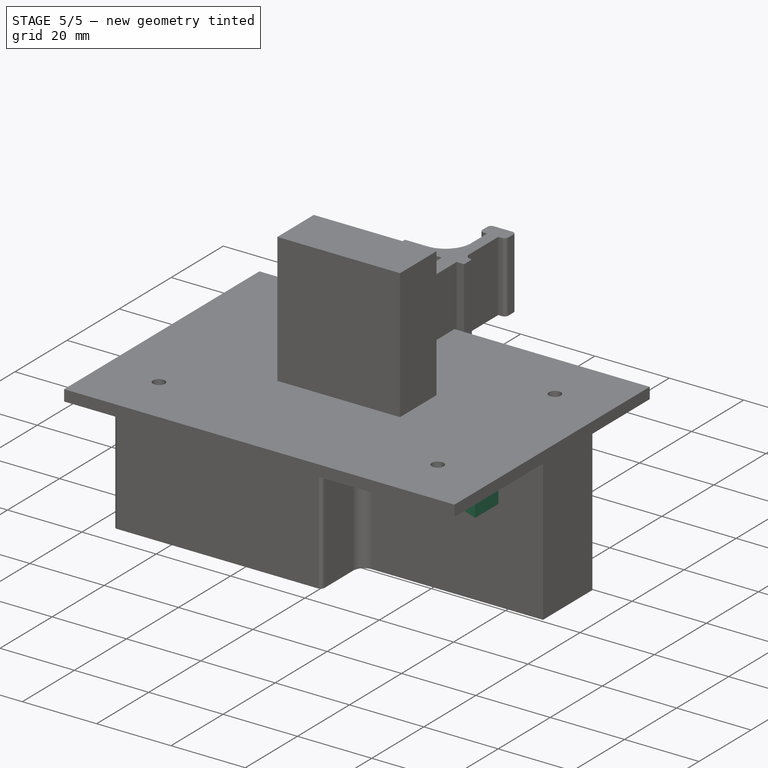
[diagram: stage 5 of 5 — iso view after this stage's code; geometry added in this stage tinted green]
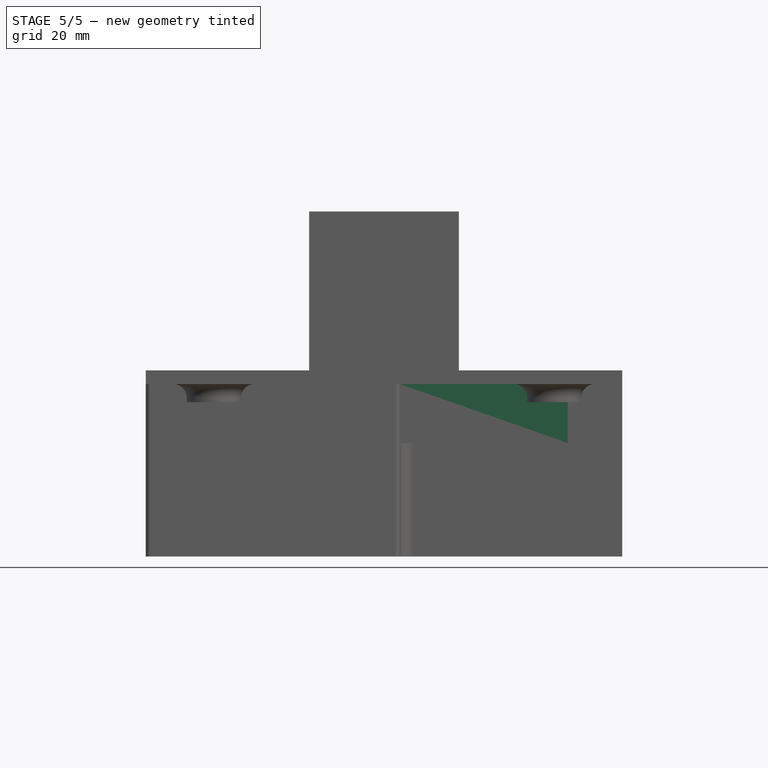
[diagram: stage 5 of 5 — front view after this stage's code; geometry added in this stage tinted green]
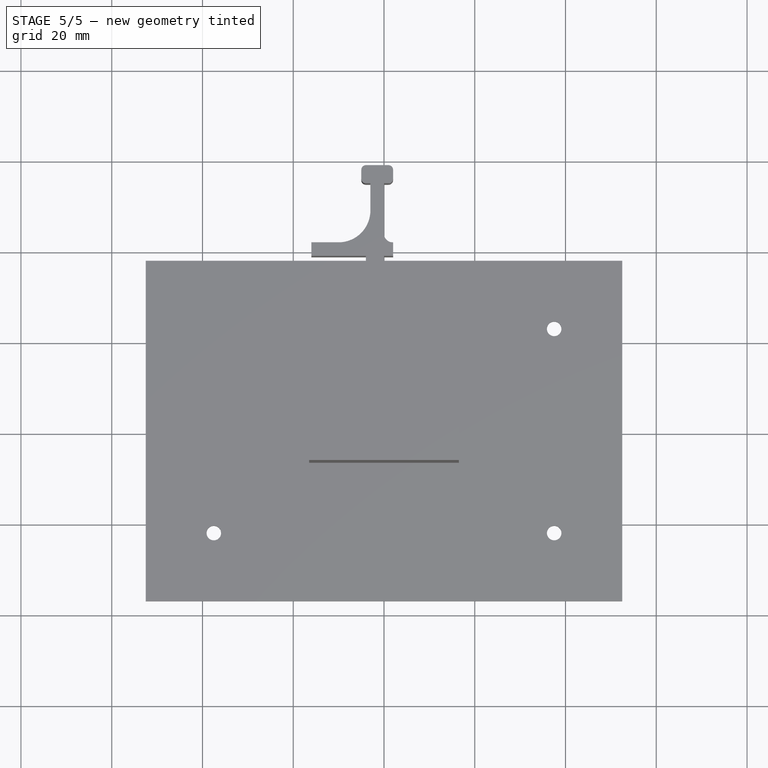
[diagram: stage 5 of 5 — top view after this stage's code; geometry added in this stage tinted green]
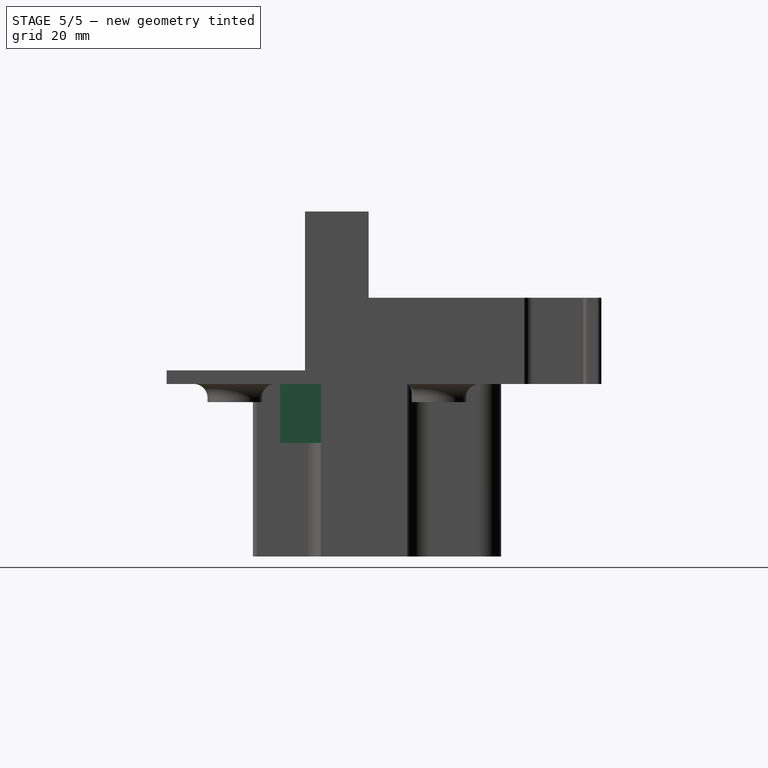
[diagram: stage 5 of 5 — right view after this stage's code; geometry added in this stage tinted green]
FEATURE [PartDesign::Fillet] Fillet029
  Base = -> Fillet028 [Edge364,Edge363]
  BaseFeature = -> Fillet028
  Radius = 6
  Refine = true
  SupportTransform = false
  Suppressed = false
  UseAllEdges = false
FEATURE [PartDesign::Fillet] Fillet030
  Base = -> Fillet029 [Edge146,Edge147]
  BaseFeature = -> Fillet029
  Radius = 6
  Refine = true
  SupportTransform = false
  Suppressed = false
  UseAllEdges = false
FEATURE [PartDesign::Fillet] Fillet031
  Base = -> Fillet030 [Edge235,Edge228]
  BaseFeature = -> Fillet030
  Radius = 5
  Refine = true
  SupportTransform = false
  Suppressed = false
  UseAllEdges = false
FEATURE [PartDesign::Fillet] Fillet032
  Base = -> Fillet031 [Edge204,Edge193]
  BaseFeature = -> Fillet031
  Radius = 5
  Refine = true
  SupportTransform = false
  Suppressed = false
  UseAllEdges = false
FEATURE [Sketcher::SketchObject] Sketch080
  ArcFitTolerance = 1e-06
  AttachmentSupport = -> [Fillet032]
  ExternalGeometry = -> [Fillet032]
  FullyConstrained = true
  MakeInternals = false
  MapMode = 5
  Placement = pos=(0,0,0) rot=(1,0,0;3.14159rad)
  sketch-geometry (4):
    g0: LineSegment StartX=-52.5 StartY=37.5 StartZ=0 EndX=-52.5 EndY=-37.5 EndZ=0
    g1: LineSegment StartX=-52.5 StartY=-37.5 StartZ=0 EndX=52.5 EndY=-37.5 EndZ=0
    g2: LineSegment StartX=52.5 StartY=-37.5 StartZ=0 EndX=52.5 EndY=37.5 EndZ=0
    g3: LineSegment StartX=52.5 StartY=37.5 StartZ=0 EndX=-52.5 EndY=37.5 EndZ=0
  constraints (11):
    c: Coincident(g0,g1)
    c: Coincident(g1,g2)
    c: Coincident(g2,g3)
    c: Coincident(g3,g0)
    c: Vertical(g0)
    c: Vertical(g2)
    c: Horizontal(g1)
    c: Horizontal(g3)
    c: Distance(g0,g2) = 105
    c: Distance(g1,g3) = 75
    c: Coincident(g0,g-4)
FEATURE [PartDesign::Pad] Pad071
  BaseFeature = -> Fillet032
  Direction = (0,0,-1)
  Length = 30
  Length2 = 10
  Profile = -> Sketch080
  ReferenceAxis = -> Sketch080 [N_Axis]
  Refine = true
  Suppressed = false
  Type = 0
FEATURE [PartDesign::Pocket] Pocket056
  BaseFeature = -> Pad071
  Direction = (0,0,1)
  Length = 30
  Length2 = 5
  Profile = -> Pad071 [Face1]
  Refine = true
  Suppressed = false
  Type = 0
FEATURE [Sketcher::SketchObject] Sketch081
  ArcFitTolerance = 1e-06
  AttachmentSupport = -> [Pocket056]
  ExternalGeometry = -> [Pocket056]
  FullyConstrained = true
  MakeInternals = false
  MapMode = 5
  Placement = pos=(0,0,0) rot=(1,0,0;3.14159rad)
  sketch-geometry (10):
    g0: LineSegment StartX=-52.5 StartY=3.5 StartZ=0 EndX=-52.5 EndY=-15.5 EndZ=0
    g1: LineSegment StartX=-52.5 StartY=-15.5 StartZ=0 EndX=52.5 EndY=-15.5 EndZ=0
    g2: LineSegment StartX=52.5 StartY=-15.5 StartZ=0 EndX=52.5 EndY=3.5 EndZ=0
    g3: LineSegment StartX=52.5 StartY=3.5 StartZ=0 EndX=-52.5 EndY=3.5 EndZ=0
    g4: GeomPoint [constr] X=0 Y=-6 Z=0
    g5: LineSegment StartX=-51 StartY=-10.5 StartZ=0 EndX=51 EndY=-10.5 EndZ=0
    g6: LineSegment StartX=51 StartY=-10.5 StartZ=0 EndX=51 EndY=0.5 EndZ=0
    g7: LineSegment StartX=51 StartY=0.5 StartZ=0 EndX=-51 EndY=0.5 EndZ=0
    g8: LineSegment StartX=-51 StartY=0.5 StartZ=0 EndX=-51 EndY=-10.5 EndZ=0
    g9: GeomPoint [constr] X=0 Y=-5 Z=0
  constraints (26):
    c: Coincident(g0,g1)
    c: Coincident(g1,g2)
    c: Coincident(g2,g3)
    c: Coincident(g3,g0)
    c: Vertical(g0)
    c: Vertical(g2)
    c: Horizontal(g1)
    c: Horizontal(g3)
    c: Symmetric(g2,g0,g4)
    c: Distance(g0,g2) = 105
    c: PointOnObject(g4,g-2)
    c: DistanceY(g0,g0) = 19
    c: Coincident(g5,g6)
    c: Coincident(g6,g7)
    c: Coincident(g7,g8)
    c: Coincident(g8,g5)
    c: Horizontal(g5)
    c: Horizontal(g7)
    c: Vertical(g6)
    c: Vertical(g8)
    c: Symmetric(g7,g5,g9)
    c: Distance(g6,g8) = 102
    c: Distance(g5,g7) = 11
    c: PointOnObject(g9,g-2)
    c: DistanceY(g4,g9) = 1
    c: Distance(g1,g-3) = 22
FEATURE [PartDesign::Pad] Pad072
  BaseFeature = -> Pocket056
  Direction = (0,0,-1)
  Length = 10
  Length2 = 10
  Profile = -> Sketch081
  ReferenceAxis = -> Sketch081 [N_Axis]
  Refine = true
  Suppressed = false
  Type = 0
FEATURE [Sketcher::SketchObject] Sketch082
  ArcFitTolerance = 1e-06
  AttachmentSupport = -> [Pad072]
  ExternalGeometry = -> [Pad072]
  FullyConstrained = true
  MakeInternals = false
  MapMode = 5
  Placement = pos=(0,0,-10) rot=(1,0,0;3.14159rad)
  sketch-geometry (5):
    g0: LineSegment StartX=-10 StartY=-13.5 StartZ=0 EndX=10 EndY=-13.5 EndZ=0
    g1: LineSegment StartX=10 StartY=-13.5 StartZ=0 EndX=10 EndY=-7.5 EndZ=0
    g2: LineSegment StartX=10 StartY=-7.5 StartZ=0 EndX=-10 EndY=-7.5 EndZ=0
    g3: LineSegment StartX=-10 StartY=-7.5 StartZ=0 EndX=-10 EndY=-13.5 EndZ=0
    g4: GeomPoint [constr] X=0 Y=-10.5 Z=0
  constraints (13):
    c: Coincident(g0,g1)
    c: Coincident(g1,g2)
    c: Coincident(g2,g3)
    c: Coincident(g3,g0)
    c: Horizontal(g0)
    c: Horizontal(g2)
    c: Vertical(g1)
    c: Vertical(g3)
    c: Symmetric(g2,g0,g4)
    c: Distance(g1,g3) = 20
    c: Distance(g0,g2) = 6
    c: PointOnObject(g4,g-3)
    c: PointOnObject(g4,g-2)
FEATURE [PartDesign::Pocket] Pocket057
  BaseFeature = -> Pad072
  Direction = (0,0,1)
  Length = 9
  Length2 = 5
  Profile = -> Sketch082
  ReferenceAxis = -> Sketch082 [N_Axis]
  Refine = true
  Suppressed = false
  Type = 0
FEATURE [PartDesign::Pad] Pad073
  BaseFeature = -> Pocket057
  Direction = (0,0,-1)
  Length = 3
  Length2 = 10
  Profile = -> Pocket057 [Face21]
  Refine = true
  Suppressed = false
  Type = 0
FEATURE [Sketcher::SketchObject] Sketch083
  ArcFitTolerance = 1e-06
  AttachmentSupport = -> [Pad073]
  ExternalGeometry = -> [Pad073]
  FullyConstrained = true
  MakeInternals = false
  MapMode = 5
  Placement = pos=(0,0,-3) rot=(1,0,0;3.14159rad)
  sketch-geometry (4):
    g0: LineSegment StartX=-10 StartY=-10.5 StartZ=0 EndX=10 EndY=-10.5 EndZ=0
    g1: LineSegment StartX=10 StartY=-10.5 StartZ=0 EndX=10 EndY=0.5 EndZ=0
    g2: LineSegment StartX=10 StartY=0.5 StartZ=0 EndX=-10 EndY=0.5 EndZ=0
    g3: LineSegment StartX=-10 StartY=0.5 StartZ=0 EndX=-10 EndY=-10.5 EndZ=0
  constraints (11):
    c: Coincident(g0,g1)
    c: Coincident(g1,g2)
    c: Coincident(g2,g3)
    c: Coincident(g3,g0)
    c: Horizontal(g0)
    c: Horizontal(g2)
    c: Vertical(g1)
    c: Vertical(g3)
    c: Distance(g1,g3) = 20
    c: Distance(g0,g2) = 11
    c: Coincident(g0,g-3)
FEATURE [PartDesign::Pocket] Pocket058
  BaseFeature = -> Pad073
  Direction = (0,0,1)
  Length = 2
  Length2 = 5
  Profile = -> Sketch083
  ReferenceAxis = -> Sketch083 [N_Axis]
  Refine = true
  Suppressed = false
  Type = 0
FEATURE [PartDesign::Pocket] Pocket059
  BaseFeature = -> Pocket058
  Direction = (0,0,1)
  Length = 1
  Length2 = 5
  Profile = -> Pocket058 [Face24]
  Refine = true
  Suppressed = false
  Type = 0
FEATURE [Sketcher::SketchObject] Sketch084
  ArcFitTolerance = 1e-06
  AttachmentSupport = -> [Pocket059]
  ExternalGeometry = -> [Pocket059]
  FullyConstrained = false
  MakeInternals = false
  MapMode = 5
  Placement = pos=(0,0,0) rot=(1,0,0;3.14159rad)
  sketch-geometry (12):
    g0: LineSegment StartX=-52.5 StartY=3.5 StartZ=0 EndX=3.5 EndY=3.5 EndZ=0
    g1: LineSegment StartX=3.5 StartY=3.5 StartZ=0 EndX=3.5 EndY=17.5 EndZ=0
    g2: LineSegment StartX=3.5 StartY=17.5 StartZ=0 EndX=-52.5 EndY=17.5 EndZ=0
    g3: LineSegment StartX=-52.5 StartY=17.5 StartZ=0 EndX=-52.5 EndY=3.5 EndZ=0
    g4: LineSegment [constr] StartX=-52.5 StartY=17.5 StartZ=0 EndX=3.5 EndY=3.5 EndZ=0
    g5: LineSegment [constr] StartX=-52.5 StartY=3.5 StartZ=0 EndX=3.5 EndY=17.5 EndZ=0
    g6: GeomPoint [constr] X=-24.5 Y=10.5 Z=0
    g7: LineSegment StartX=-50.5735 StartY=4.5 StartZ=0 EndX=1.42647 EndY=4.5 EndZ=0
    g8: LineSegment StartX=1.42647 StartY=4.5 StartZ=0 EndX=1.42647 EndY=15.5 EndZ=0
    g9: LineSegment StartX=1.42647 StartY=15.5 StartZ=0 EndX=-50.5735 EndY=15.5 EndZ=0
    g10: LineSegment StartX=-50.5735 StartY=15.5 StartZ=0 EndX=-50.5735 EndY=4.5 EndZ=0
    g11: GeomPoint [constr] X=-24.5735 Y=10 Z=0
  constraints (29):
    c: Coincident(g0,g1)
    c: Coincident(g1,g2)
    c: Coincident(g2,g3)
    c: Coincident(g3,g0)
    c: Horizontal(g0)
    c: Horizontal(g2)
    c: Vertical(g1)
    c: Vertical(g3)
    c: Distance(g1,g3) = 56
    c: Distance(g0,g2) = 14
    c: Coincident(g0,g-6)
    c: Coincident(g4,g2)
    c: Coincident(g4,g0)
    c: Coincident(g5,g0)
    c: Coincident(g5,g1)
    c: PointOnObject(g6,g4)
    c: PointOnObject(g6,g5)
    c: Coincident(g7,g8)
    c: Coincident(g8,g9)
    c: Coincident(g9,g10)
    c: Coincident(g10,g7)
    c: Horizontal(g7)
    c: Horizontal(g9)
    c: Vertical(g8)
    c: Vertical(g10)
    c: Symmetric(g9,g7,g11)
    c: Distance(g8,g10) = 52
    c: Distance(g7,g9) = 11
    c: Distance(g2,g9) = 2
FEATURE [PartDesign::Pad] Pad074
  BaseFeature = -> Pocket059
  Direction = (0,0,-1)
  Length = 10
  Length2 = 10
  Profile = -> Sketch084
  ReferenceAxis = -> Sketch084 [N_Axis]
  Refine = true
  Suppressed = false
  Type = 0
FEATURE [PartDesign::Pad] Pad075
  BaseFeature = -> Pad074
  Direction = (0,0,-1)
  Length = 10
  Length2 = 10
  Profile = -> Pad074 [Face31]
  Refine = true
  Suppressed = false
  Type = 3
  UpToFace = -> Pad074 [Face25]
FEATURE [Sketcher::SketchObject] Sketch085
  ArcFitTolerance = 1e-06
  AttachmentSupport = -> [Pad075]
  ExternalGeometry = -> [Pad075]
  FullyConstrained = true
  MakeInternals = false
  MapMode = 5
  Placement = pos=(0,0,-10) rot=(1,0,0;3.14159rad)
  sketch-geometry (5):
    g0: LineSegment StartX=-34.5735 StartY=1.5 StartZ=0 EndX=-14.5735 EndY=1.5 EndZ=0
    g1: LineSegment StartX=-14.5735 StartY=1.5 StartZ=0 EndX=-14.5735 EndY=7.5 EndZ=0
    g2: LineSegment StartX=-14.5735 StartY=7.5 StartZ=0 EndX=-34.5735 EndY=7.5 EndZ=0
    g3: LineSegment StartX=-34.5735 StartY=7.5 StartZ=0 EndX=-34.5735 EndY=1.5 EndZ=0
    g4: GeomPoint [constr] X=-24.5735 Y=4.5 Z=0
  constraints (12):
    c: Coincident(g0,g1)
    c: Coincident(g1,g2)
    c: Coincident(g2,g3)
    c: Coincident(g3,g0)
    c: Horizontal(g0)
    c: Horizontal(g2)
    c: Vertical(g1)
    c: Vertical(g3)
    c: Symmetric(g2,g0,g4)
    c: Distance(g1,g3) = 20
    c: Distance(g0,g2) = 6
    c: Symmetric(g-4,g-4,g4)
FEATURE [PartDesign::Pocket] Pocket060
  BaseFeature = -> Pad075
  Direction = (0,0,1)
  Length = 0
  Length2 = 5
  Profile = -> Sketch085
  ReferenceAxis = -> Sketch085 [N_Axis]
  Refine = true
  Suppressed = false
  Type = 3
  UpToFace = -> Pad075 [Face30]
FEATURE [Sketcher::SketchObject] Sketch086
  ArcFitTolerance = 1e-06
  AttachmentSupport = -> [Pocket060]
  ExternalGeometry = -> [Pocket060]
  FullyConstrained = true
  MakeInternals = false
  MapMode = 5
  Placement = pos=(0,0,0) rot=(1,0,0;3.14159rad)
  sketch-geometry (4):
    g0: LineSegment StartX=-52.5 StartY=-15.5 StartZ=0 EndX=-52.5 EndY=-32.5 EndZ=0
    g1: LineSegment StartX=-52.5 StartY=-32.5 StartZ=0 EndX=-15.5 EndY=-32.5 EndZ=0
    g2: LineSegment StartX=-15.5 StartY=-32.5 StartZ=0 EndX=-15.5 EndY=-15.5 EndZ=0
    g3: LineSegment StartX=-15.5 StartY=-15.5 StartZ=0 EndX=-52.5 EndY=-15.5 EndZ=0
  constraints (11):
    c: Coincident(g0,g1)
    c: Coincident(g1,g2)
    c: Coincident(g2,g3)
    c: Coincident(g3,g0)
    c: Vertical(g0)
    c: Vertical(g2)
    c: Horizontal(g1)
    c: Horizontal(g3)
    c: Distance(g0,g2) = 37
    c: Distance(g1,g3) = 17
    c: Coincident(g0,g-4)
FEATURE [PartDesign::Pad] Pad076
  BaseFeature = -> Pocket060
  Direction = (0,0,-1)
  Length = 5
  Length2 = 10
  Profile = -> Sketch086
  ReferenceAxis = -> Sketch086 [N_Axis]
  Refine = true
  Suppressed = false
  Type = 0
FEATURE [Sketcher::SketchObject] Sketch087
  ArcFitTolerance = 1e-06
  AttachmentSupport = -> [Pad076]
  ExternalGeometry = -> [Pad076]
  FullyConstrained = true
  MakeInternals = false
  MapMode = 5
  Placement = pos=(0,0,0) rot=(1,0,0;3.14159rad)
  sketch-geometry (8):
    g0: LineSegment StartX=-15.5 StartY=-15.5 StartZ=0 EndX=-15.5 EndY=-27.5 EndZ=0
    g1: LineSegment StartX=-15.5 StartY=-27.5 StartZ=0 EndX=21.5 EndY=-27.5 EndZ=0
    g2: LineSegment StartX=21.5 StartY=-27.5 StartZ=0 EndX=21.5 EndY=-15.5 EndZ=0
    g3: LineSegment StartX=21.5 StartY=-15.5 StartZ=0 EndX=-15.5 EndY=-15.5 EndZ=0
    g4: LineSegment StartX=3.5 StartY=3.5 StartZ=0 EndX=40.5 EndY=3.5 EndZ=0
    g5: LineSegment StartX=40.5 StartY=3.5 StartZ=0 EndX=40.5 EndY=11.5 EndZ=0
    g6: LineSegment StartX=40.5 StartY=11.5 StartZ=0 EndX=3.5 EndY=11.5 EndZ=0
    g7: LineSegment StartX=3.5 StartY=11.5 StartZ=0 EndX=3.5 EndY=3.5 EndZ=0
  constraints (22):
    c: Coincident(g0,g1)
    c: Coincident(g1,g2)
    c: Coincident(g2,g3)
    c: Coincident(g3,g0)
    c: Vertical(g0)
    c: Vertical(g2)
    c: Horizontal(g1)
    c: Horizontal(g3)
    c: Distance(g0,g2) = 37
    c: Distance(g1,g3) = 12
    c: Coincident(g0,g-4)
    c: Coincident(g4,g5)
    c: Coincident(g5,g6)
    c: Coincident(g6,g7)
    c: Coincident(g7,g4)
    c: Horizontal(g4)
    c: Horizontal(g6)
    c: Vertical(g5)
    c: Vertical(g7)
    c: Distance(g5,g7) = 37
    c: Distance(g4,g6) = 8
    c: Coincident(g4,g-6)
FEATURE [PartDesign::Pad] Pad077
  BaseFeature = -> Pad076
  Direction = (0,0,-1)
  Length = 3
  Length2 = 10
  Profile = -> Sketch087
  ReferenceAxis = -> Sketch087 [N_Axis]
  Refine = true
  Suppressed = false
  Type = 0
FEATURE [Sketcher::SketchObject] Sketch
  ArcFitTolerance = 1e-06
  AttachmentSupport = -> [Pad077]
  ExternalGeometry = -> [Pad077]
  FullyConstrained = true
  MakeInternals = false
  MapMode = 5
  Placement = pos=(0,0,-5) rot=(1,0,0;3.14159rad)
  sketch-geometry (5):
    g0: LineSegment StartX=-50.5 StartY=-28 StartZ=0 EndX=-17.5 EndY=-28 EndZ=0
    g1: LineSegment StartX=-17.5 StartY=-28 StartZ=0 EndX=-17.5 EndY=-17 EndZ=0
    g2: LineSegment StartX=-17.5 StartY=-17 StartZ=0 EndX=-50.5 EndY=-17 EndZ=0
    g3: LineSegment StartX=-50.5 StartY=-17 StartZ=0 EndX=-50.5 EndY=-28 EndZ=0
    g4: GeomPoint [constr] X=-34 Y=-22.5 Z=0
  constraints (13):
    c: Coincident(g0,g1)
    c: Coincident(g1,g2)
    c: Coincident(g2,g3)
    c: Coincident(g3,g0)
    c: Horizontal(g0)
    c: Horizontal(g2)
    c: Vertical(g1)
    c: Vertical(g3)
    c: Symmetric(g2,g0,g4)
    c: Distance(g1,g3) = 33
    c: Distance(g0,g2) = 11
    c: Distance(g4,g-6) = 7
    c: DistanceX(g-5,g4) = 18.5
FEATURE [PartDesign::Pocket] Pocket
  BaseFeature = -> Pad077
  Direction = (0,0,1)
  Length = 3
  Length2 = 5
  Profile = -> Sketch
  ReferenceAxis = -> Sketch [N_Axis]
  Refine = true
  Suppressed = false
  Type = 0
FEATURE [Sketcher::SketchObject] Sketch088
  ArcFitTolerance = 1e-06
  AttachmentSupport = -> [Pocket]
  ExternalGeometry = -> [Pocket]
  FullyConstrained = true
  MakeInternals = false
  MapMode = 5
  Placement = pos=(0,0,-3) rot=(1,0,0;3.14159rad)
  sketch-geometry (5):
    g0: LineSegment StartX=-13.5 StartY=-24.5 StartZ=0 EndX=19.5 EndY=-24.5 EndZ=0
    g1: LineSegment StartX=19.5 StartY=-24.5 StartZ=0 EndX=19.5 EndY=-17.5 EndZ=0
    g2: LineSegment StartX=19.5 StartY=-17.5 StartZ=0 EndX=-13.5 EndY=-17.5 EndZ=0
    g3: LineSegment StartX=-13.5 StartY=-17.5 StartZ=0 EndX=-13.5 EndY=-24.5 EndZ=0
    g4: GeomPoint [constr] X=3 Y=-21 Z=0
  constraints (13):
    c: Coincident(g0,g1)
    c: Coincident(g1,g2)
    c: Coincident(g2,g3)
    c: Coincident(g3,g0)
    c: Horizontal(g0)
    c: Horizontal(g2)
    c: Vertical(g1)
    c: Vertical(g3)
    c: Symmetric(g2,g0,g4)
    c: Distance(g1,g3) = 33
    c: Distance(g0,g2) = 7
    c: Distance(g-5,g2) = 2
    c: Distance(g-4,g1) = 2
FEATURE [PartDesign::Pocket] Pocket061
  BaseFeature = -> Pocket
  Direction = (0,0,1)
  Length = 1
  Length2 = 5
  Profile = -> Sketch088
  ReferenceAxis = -> Sketch088 [N_Axis]
  Refine = true
  Suppressed = false
  Type = 0
FEATURE [Sketcher::SketchObject] Sketch089
  ArcFitTolerance = 1e-06
  AttachmentSupport = -> [Pocket061]
  ExternalGeometry = -> [Pocket061]
  FullyConstrained = true
  MakeInternals = false
  MapMode = 5
  Placement = pos=(0,0,-3) rot=(1,0,0;3.14159rad)
  sketch-geometry (5):
    g0: LineSegment StartX=5.5 StartY=5.5 StartZ=0 EndX=38.5 EndY=5.5 EndZ=0
    g1: LineSegment StartX=38.5 StartY=5.5 StartZ=0 EndX=38.5 EndY=8.5 EndZ=0
    g2: LineSegment StartX=38.5 StartY=8.5 StartZ=0 EndX=5.5 EndY=8.5 EndZ=0
    g3: LineSegment StartX=5.5 StartY=8.5 StartZ=0 EndX=5.5 EndY=5.5 EndZ=0
    g4: GeomPoint [constr] X=22 Y=7 Z=0
  constraints (13):
    c: Coincident(g0,g1)
    c: Coincident(g1,g2)
    c: Coincident(g2,g3)
    c: Coincident(g3,g0)
    c: Horizontal(g0)
    c: Horizontal(g2)
    c: Vertical(g1)
    c: Vertical(g3)
    c: Symmetric(g2,g0,g4)
    c: Distance(g1,g3) = 33
    c: Distance(g0,g2) = 3
    c: Distance(g-5,g0) = 2
    c: Distance(g-4,g1) = 2
FEATURE [PartDesign::Pocket] Pocket062
  BaseFeature = -> Pocket061
  Direction = (0,0,1)
  Length = 1
  Length2 = 5
  Profile = -> Sketch089
  ReferenceAxis = -> Sketch089 [N_Axis]
  Refine = true
  Suppressed = false
  Type = 0
FEATURE [PartDesign::Pad] Pad
  BaseFeature = -> Pocket062
  Direction = (0,0,-1)
  Length = 10
  Length2 = 10
  Profile = -> Pocket062 [Face28]
  Refine = true
  Suppressed = false
  Type = 3
  UpToFace = -> Pocket062 [Face16]
FEATURE [PartDesign::Pad] Pad078
  BaseFeature = -> Pad
  Direction = (0,0,-1)
  Length = 10
  Length2 = 10
  Profile = -> Pad [Face20]
  Refine = true
  Suppressed = false
  Type = 3
  UpToFace = -> Pad [Face50]
FEATURE [Sketcher::SketchObject] Sketch090
  ArcFitTolerance = 1e-06
  AttachmentSupport = -> [Pad078]
  ExternalGeometry = -> [Pad078]
  FullyConstrained = true
  MakeInternals = false
  MapMode = 5
  Placement = pos=(0,0,-5) rot=(1,0,0;3.14159rad)
  sketch-geometry (10):
    g0: LineSegment StartX=-44 StartY=-31 StartZ=0 EndX=-24 EndY=-31 EndZ=0
    g1: LineSegment StartX=-24 StartY=-31 StartZ=0 EndX=-24 EndY=-25 EndZ=0
    g2: LineSegment StartX=-24 StartY=-25 StartZ=0 EndX=-44 EndY=-25 EndZ=0
    g3: LineSegment StartX=-44 StartY=-25 StartZ=0 EndX=-44 EndY=-31 EndZ=0
    g4: GeomPoint [constr] X=-34 Y=-28 Z=0
    g5: LineSegment StartX=-7 StartY=-27.5 StartZ=0 EndX=13 EndY=-27.5 EndZ=0
    g6: LineSegment StartX=13 StartY=-27.5 StartZ=0 EndX=13 EndY=-21.5 EndZ=0
    g7: LineSegment StartX=13 StartY=-21.5 StartZ=0 EndX=-7 EndY=-21.5 EndZ=0
    g8: LineSegment StartX=-7 StartY=-21.5 StartZ=0 EndX=-7 EndY=-27.5 EndZ=0
    g9: GeomPoint [constr] X=3 Y=-24.5 Z=0
  constraints (25):
    c: Coincident(g0,g1)
    c: Coincident(g1,g2)
    c: Coincident(g2,g3)
    c: Coincident(g3,g0)
    c: Horizontal(g0)
    c: Horizontal(g2)
    c: Vertical(g1)
    c: Vertical(g3)
    c: Symmetric(g2,g0,g4)
    c: Distance(g1,g3) = 20
    c: Distance(g0,g2) = 6
    c: PointOnObject(g4,g-3)
    c: Coincident(g5,g6)
    c: Coincident(g6,g7)
    c: Coincident(g7,g8)
    c: Coincident(g8,g5)
    c: Horizontal(g5)
    c: Horizontal(g7)
    c: Vertical(g6)
    c: Vertical(g8)
    c: Symmetric(g7,g5,g9)
    c: Distance(g6,g8) = 20
    c: Distance(g5,g7) = 6
    c: Symmetric(g-4,g-4,g9)
    c: DistanceX(g-3,g4) = 16.5
FEATURE [PartDesign::Pad] Pad079
  BaseFeature = -> Pad078
  Direction = (0,1,0)
  Length = 1
  Length2 = 10
  Profile = -> Pad078 [Face12]
  Refine = true
  Suppressed = false
  Type = 0
FEATURE [PartDesign::Pocket] Pocket063
  BaseFeature = -> Pad079
  Direction = (0,0,1)
  Length = 5
  Length2 = 5
  Profile = -> Sketch090
  ReferenceAxis = -> Sketch090 [N_Axis]
  Refine = true
  Suppressed = false
  Type = 0
FEATURE [PartDesign::Pad] Pad080
  BaseFeature = -> Pocket063
  Direction = (0,-1,0)
  Length = 1
  Length2 = 10
  Profile = -> Pocket063 [Face8]
  Refine = true
  Suppressed = false
  Type = 0
FEATURE [Sketcher::SketchObject] Sketch091
  ArcFitTolerance = 1e-06
  AttachmentSupport = -> [Pad080]
  ExternalGeometry = -> [Pad080]
  FullyConstrained = true
  MakeInternals = false
  MapMode = 5
  Placement = pos=(0,0,-5) rot=(1,0,0;3.14159rad)
  sketch-geometry (5):
    g0: LineSegment StartX=12 StartY=5.5 StartZ=0 EndX=32 EndY=5.5 EndZ=0
    g1: LineSegment StartX=32 StartY=5.5 StartZ=0 EndX=32 EndY=11.5 EndZ=0
    g2: LineSegment StartX=32 StartY=11.5 StartZ=0 EndX=12 EndY=11.5 EndZ=0
    g3: LineSegment StartX=12 StartY=11.5 StartZ=0 EndX=12 EndY=5.5 EndZ=0
    g4: GeomPoint [constr] X=22 Y=8.5 Z=0
  constraints (12):
    c: Coincident(g0,g1)
    c: Coincident(g1,g2)
    c: Coincident(g2,g3)
    c: Coincident(g3,g0)
    c: Horizontal(g0)
    c: Horizontal(g2)
    c: Vertical(g1)
    c: Vertical(g3)
    c: Symmetric(g2,g0,g4)
    c: Distance(g1,g3) = 20
    c: Distance(g0,g2) = 6
    c: Symmetric(g-3,g-3,g4)
FEATURE [PartDesign::Pocket] Pocket064
  BaseFeature = -> Pad080
  Direction = (0,0,1)
  Length = 5
  Length2 = 5
  Profile = -> Sketch091
  ReferenceAxis = -> Sketch091 [N_Axis]
  Refine = true
  Suppressed = false
  Type = 0
FEATURE [PartDesign::Pad] Pad081
  BaseFeature = -> Pocket064
  Direction = (0,0,-1)
  Length = 28
  Length2 = 10
  Profile = -> Pocket064 [Face4]
  Refine = true
  Suppressed = false
  Type = 0
FEATURE [PartDesign::Pad] Pad082
  BaseFeature = -> Pad081
  Direction = (0,0,-1)
  Length = 1
  Length2 = 10
  Profile = -> Pad081 [Face21,Face22]
  Refine = true
  Suppressed = false
  Type = 0
FEATURE [PartDesign::Pad] Pad083
  BaseFeature = -> Pad082
  Direction = (0,0,-1)
  Length = 8
  Length2 = 10
  Profile = -> Pad082 [Face19]
  Refine = true
  Suppressed = false
  Type = 0
FEATURE [PartDesign::Pad] Pad084
  BaseFeature = -> Pad083
  Direction = (0,0,-1)
  Length = 1
  Length2 = 10
  Profile = -> Pad083 [Face57,Face54]
  Refine = true
  Suppressed = false
  Type = 0
FEATURE [PartDesign::Pocket] Pocket065
  BaseFeature = -> Pad084
  Direction = (0,-1,0)
  Length = 0
  Length2 = 5
  Profile = -> Pad084 [Face77]
  Refine = true
  Suppressed = false
  Type = 3
  UpToFace = -> Pad084 [Face28]
FEATURE [PartDesign::Pocket] Pocket066
  BaseFeature = -> Pocket065
  Direction = (0,-1,0)
  Length = 0
  Length2 = 5
  Profile = -> Pocket065 [Face65]
  Refine = true
  Suppressed = false
  Type = 3
  UpToFace = -> Pocket065 [Face36]
FEATURE [PartDesign::Pad] Pad085
  BaseFeature = -> Pocket066
  Direction = (0,0,-1)
  Length = 8
  Length2 = 10
  Profile = -> Pocket066 [Face16]
  Refine = true
  Suppressed = false
  Type = 0
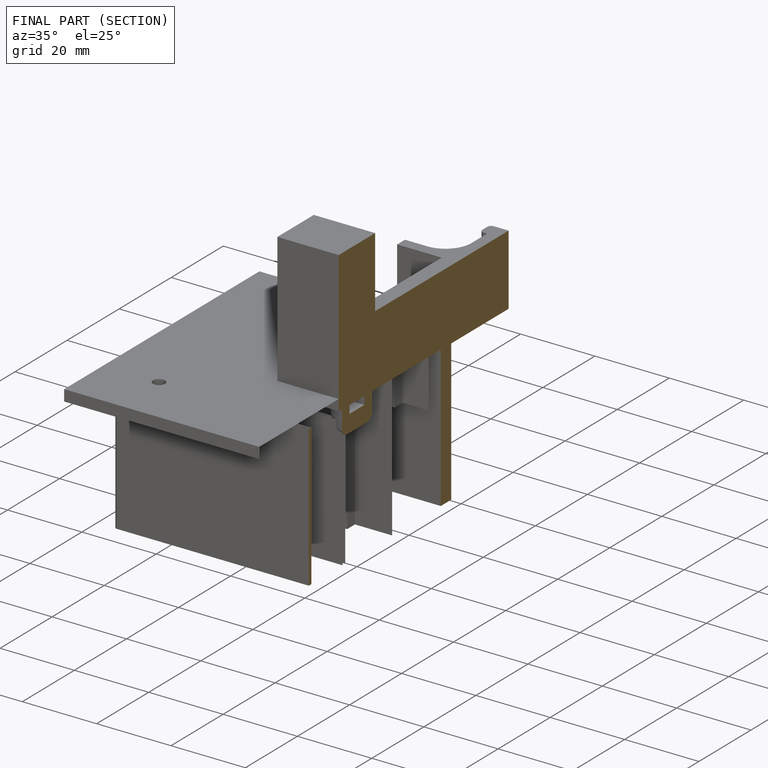
[diagram: finished part — half-section view (interior)]
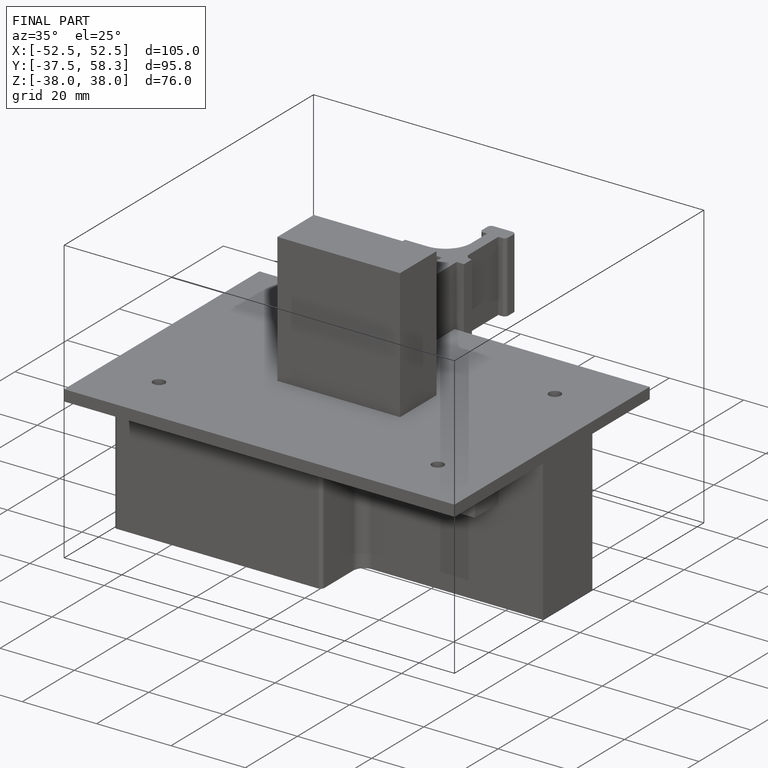
[diagram: finished part — iso view with bounding-box wireframe]
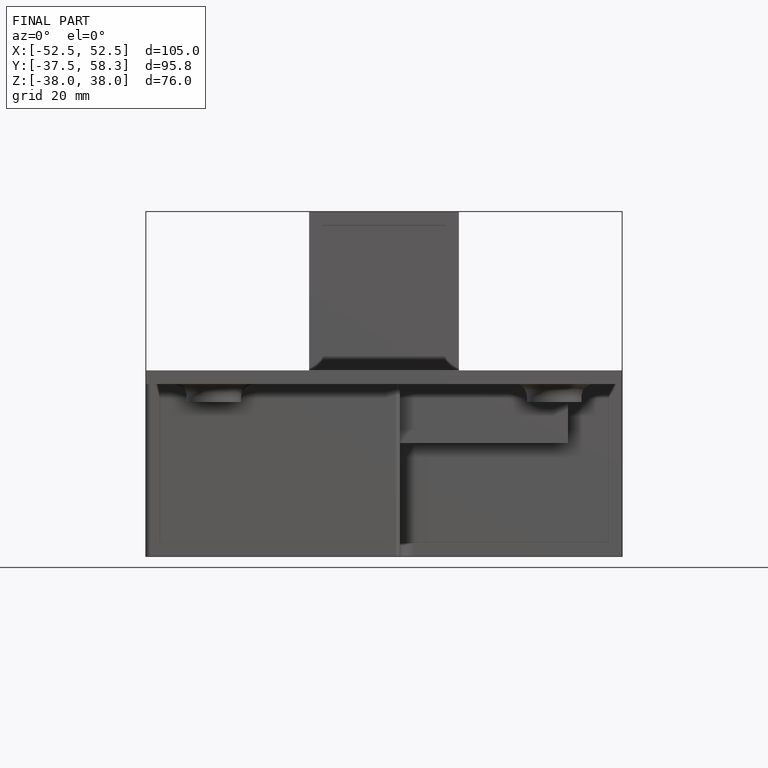
[diagram: finished part — front view with bounding-box wireframe]
